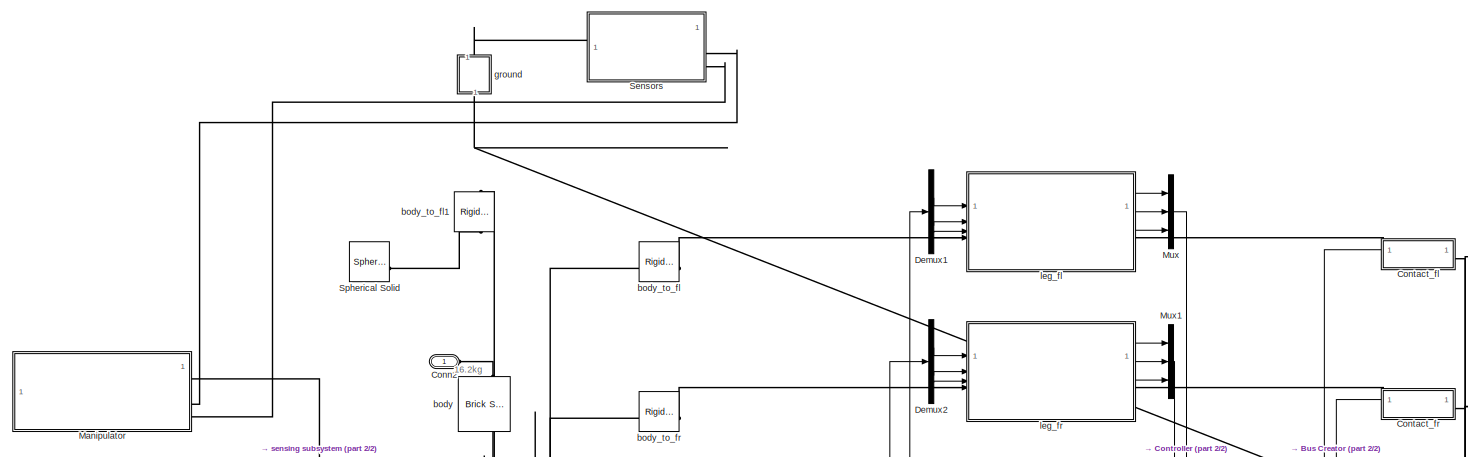
[diagram: root canvas - part 1/2, top left region]
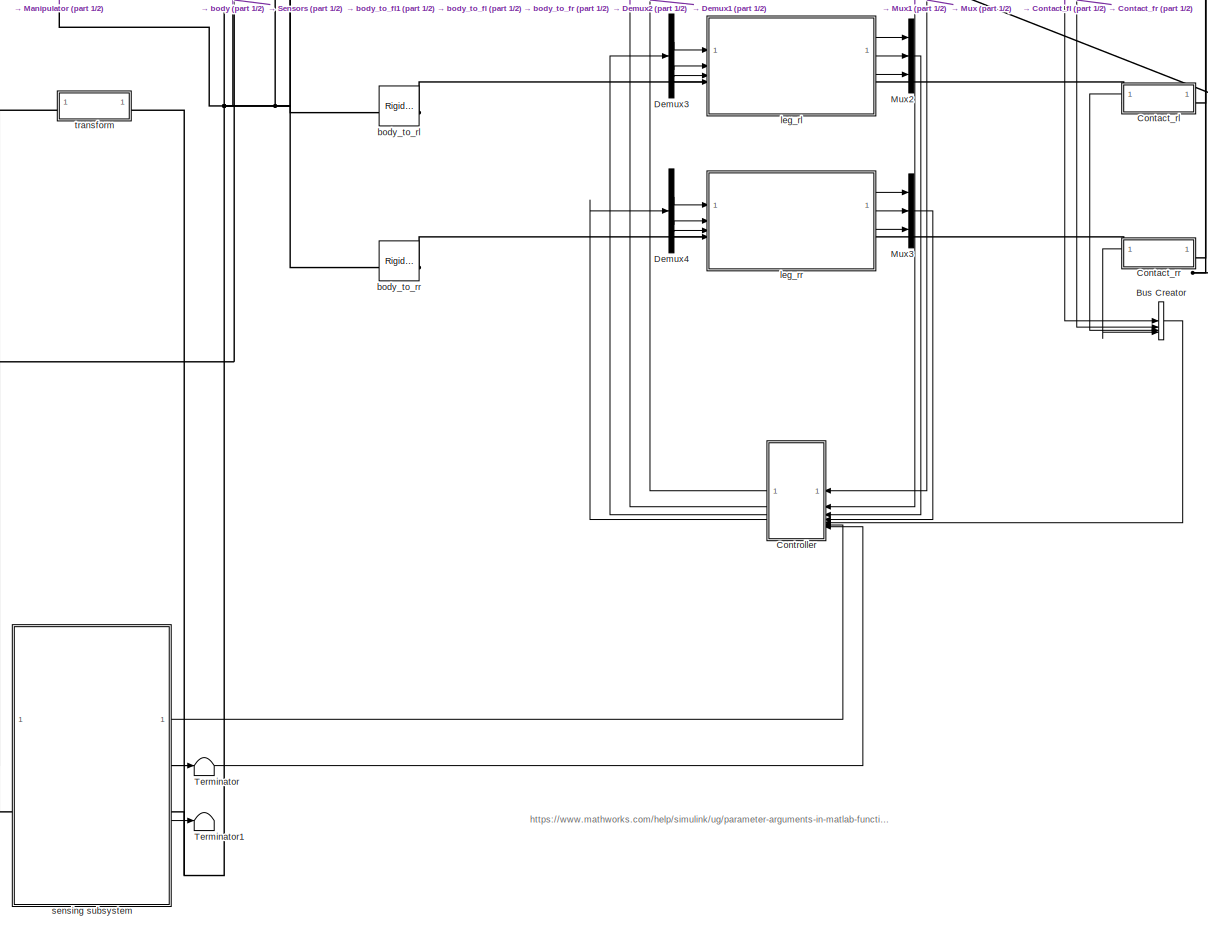
[diagram: root canvas - part 2/2, central region]
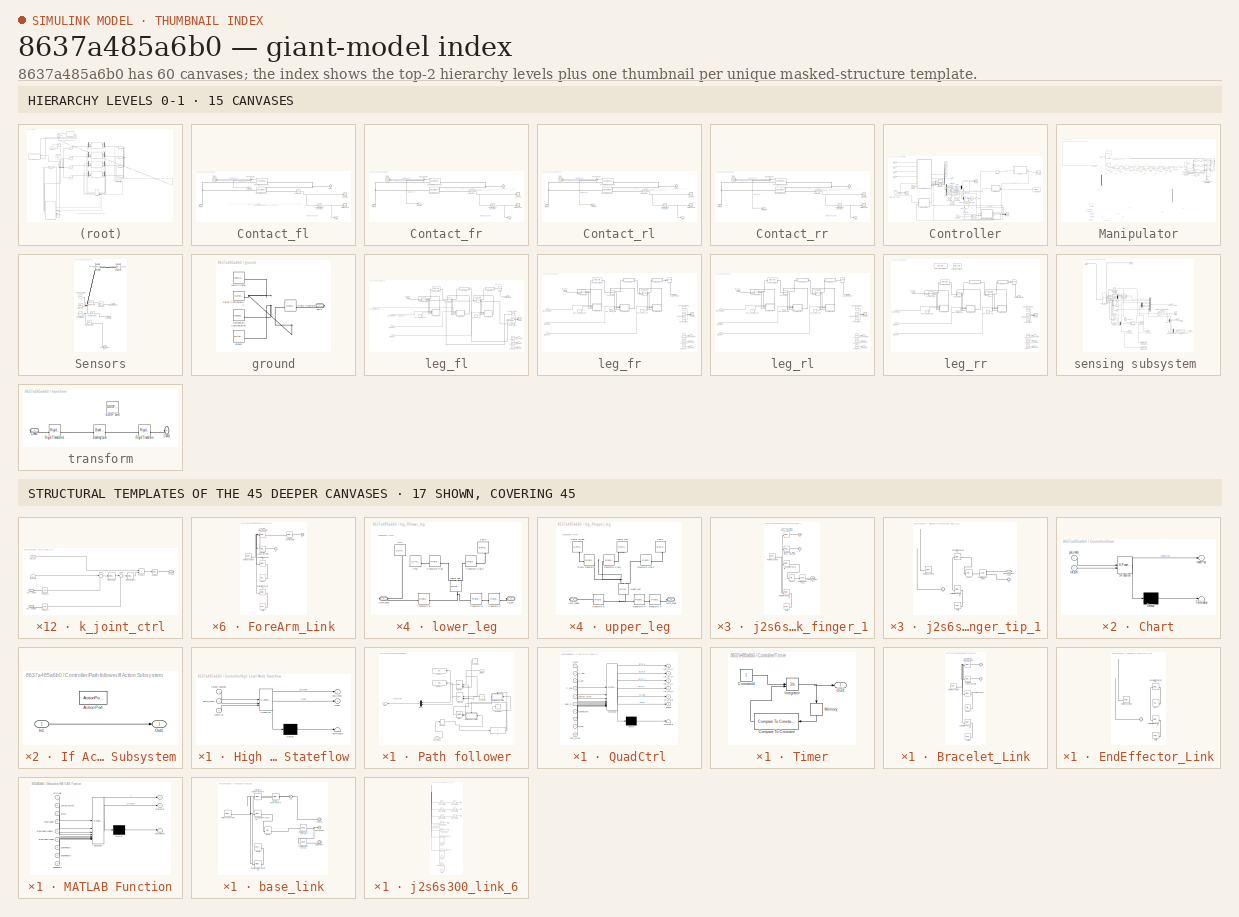
[diagram: thumbnail index - top-2 hierarchy levels (15 canvases) + 17 structural-template representatives of the remaining 45 canvases]
MODEL slx_8637a485a6b0
KIND model
CONFIG AbsTol = auto
CONFIG EnableMultiTasking = off
CONFIG FixedStep = auto
CONFIG InitFcn = ManipulatorSetup\ninit_quad_new_leg_raibert_strategy_v2
CONFIG MaxStep = auto
CONFIG MinStep = auto
CONFIG RelTol = 1e-3
CONFIG SampleTimeConstraint = Unconstrained
CONFIG SolverName = ode15s
CONFIG StartTime = 0.0
CONFIG StopTime = 400
BLOCK [BusCreator] Bus Creator
  DisplayOption = bar
  InheritFromInputs = on
  Inputs = 4
BLOCK [PMIOPort] Conn2
  Side = Left
BLOCK [SubSystem] Contact_fl
  NameLocation = top
BLOCK [BusSelector] Contact_fl/Bus Selector
  NameLocation = top
  OutputSignals = Normal Force,Frame Sep,Friction Force
BLOCK [Reference] Contact_fl/Compare To Constant  REF=simulink/Logic and Bit
Operations/Compare
To Constant
  SourceBlock = simulink/Logic and Bit\nOperations/Compare\nTo Constant
  SourceType = Compare To Constant
BLOCK [Reference] Contact_fl/PSConv4  REF=nesl_utility/PS-Simulink
Converter
  SourceBlock = nesl_utility/PS-Simulink\nConverter
  SourceType = PS-Simulink\nConverter
BLOCK [PMIOPort] Contact_fl/PlanB
  NameLocation = right
  Side = Left
BLOCK [PMIOPort] Contact_fl/SphF
  NameLocation = top
  Port = 2
  Side = Right
BLOCK [Reference] Contact_fl/Sphere to Plane Force1  REF=Contact_Forces_Lib/3D/Sphere to Plane Force
  NameLocation = top
  SourceBlock = Contact_Forces_Lib/3D/Sphere to Plane Force
  SourceType = Sphere to Plane Force
BLOCK [Scope] Contact_fl/State Scope
  Floating = off
  NumInputPorts = 1
  ScopeSpecificationString = Simulink.scopes.TimeScopeBlockCfg('CurrentConfiguration', extmgr.ConfigurationSet(extmgr.Configuration('Core','General UI',true),extmgr.Configuration('Core','Source UI',true),extmgr.Configuration('Sources','WiredSimulink',true,'DataLoggingVariableName','ScopeData2'),extmgr.Configuration('Visuals','Time Domain',true,'SerializedDisplays',{struct('MinYLimReal','-0.125','MaxYLimReal','1.125','YLabelRe...<+1738ch>
BLOCK [Terminator] Contact_fl/Terminator
BLOCK [Reference] Contact_fl/Transform Sensor  REF=sm_lib/Frames and
Transforms/Transform
Sensor
  SourceBlock = sm_lib/Frames and\nTransforms/Transform\nSensor
  SourceType = Transform\nSensor
BLOCK [Scope] Contact_fl/ZScope
  Floating = off
  NumInputPorts = 1
  ScopeSpecificationString = Simulink.scopes.TimeScopeBlockCfg('CurrentConfiguration', extmgr.ConfigurationSet(extmgr.Configuration('Core','General UI',true),extmgr.Configuration('Core','Source UI',true),extmgr.Configuration('Sources','WiredSimulink',true,'DataLoggingVariableName','ScopeData1'),extmgr.Configuration('Visuals','Time Domain',true,'SerializedDisplays',{struct('MinYLimReal','0.21142','MaxYLimReal','0.26619','YLabe...<+1738ch>
BLOCK [Scope] Contact_fl/force
  Floating = off
  NameLocation = top
  NumInputPorts = 2
  ScopeSpecificationString = Simulink.scopes.TimeScopeBlockCfg('CurrentConfiguration', extmgr.ConfigurationSet(extmgr.Configuration('Core','General UI',true),extmgr.Configuration('Core','Source UI',true),extmgr.Configuration('Sources','WiredSimulink',true),extmgr.Configuration('Visuals','Time Domain',true,'SerializedDisplays',{struct('MinYLimReal','-483.20806','MaxYLimReal','1131.7449','YLabelReal','','MinYLimMag',' 0.00000',...<+2099ch>
BLOCK [Outport] Contact_fl/state
  VectorParamsAs1DForOutWhenUnconnected = off
BLOCK [SubSystem] Contact_fr
  NameLocation = top
BLOCK [BusSelector] Contact_fr/Bus Selector
  NameLocation = top
  OutputSignals = Normal Force,Frame Sep,Friction Force
BLOCK [Reference] Contact_fr/Compare To Constant  REF=simulink/Logic and Bit
Operations/Compare
To Constant
  SourceBlock = simulink/Logic and Bit\nOperations/Compare\nTo Constant
  SourceType = Compare To Constant
BLOCK [Reference] Contact_fr/PSConv4  REF=nesl_utility/PS-Simulink
Converter
  SourceBlock = nesl_utility/PS-Simulink\nConverter
  SourceType = PS-Simulink\nConverter
BLOCK [PMIOPort] Contact_fr/PlanB
  NameLocation = right
  Side = Left
BLOCK [PMIOPort] Contact_fr/SphF
  NameLocation = top
  Port = 2
  Side = Right
BLOCK [Reference] Contact_fr/Sphere to Plane Force1  REF=Contact_Forces_Lib/3D/Sphere to Plane Force
  NameLocation = top
  SourceBlock = Contact_Forces_Lib/3D/Sphere to Plane Force
  SourceType = Sphere to Plane Force
BLOCK [Scope] Contact_fr/State Scope
  Floating = off
  NumInputPorts = 1
  ScopeSpecificationString = Simulink.scopes.TimeScopeBlockCfg('CurrentConfiguration', extmgr.ConfigurationSet(extmgr.Configuration('Core','General UI',true),extmgr.Configuration('Core','Source UI',true),extmgr.Configuration('Sources','WiredSimulink',true,'DataLoggingVariableName','ScopeData2'),extmgr.Configuration('Visuals','Time Domain',true,'SerializedDisplays',{struct('MinYLimReal','3.40363','MaxYLimReal','4.10196','YLabe...<+1745ch>
BLOCK [Terminator] Contact_fr/Terminator
BLOCK [Reference] Contact_fr/Transform Sensor  REF=sm_lib/Frames and
Transforms/Transform
Sensor
  SourceBlock = sm_lib/Frames and\nTransforms/Transform\nSensor
  SourceType = Transform\nSensor
BLOCK [Scope] Contact_fr/ZScope
  Floating = off
  NumInputPorts = 1
  ScopeSpecificationString = Simulink.scopes.TimeScopeBlockCfg('CurrentConfiguration', extmgr.ConfigurationSet(extmgr.Configuration('Core','General UI',true),extmgr.Configuration('Core','Source UI',true),extmgr.Configuration('Sources','WiredSimulink',true,'DataLoggingVariableName','ScopeData1'),extmgr.Configuration('Visuals','Time Domain',true,'SerializedDisplays',{struct('MinYLimReal','-0.07993','MaxYLimReal','0.50888','YLab...<+1755ch>
BLOCK [Scope] Contact_fr/force
  Floating = off
  NameLocation = top
  NumInputPorts = 2
  ScopeSpecificationString = Simulink.scopes.TimeScopeBlockCfg('CurrentConfiguration', extmgr.ConfigurationSet(extmgr.Configuration('Core','General UI',true),extmgr.Configuration('Core','Source UI',true),extmgr.Configuration('Sources','WiredSimulink',true),extmgr.Configuration('Visuals','Time Domain',true,'SerializedDisplays',{struct('MinYLimReal','-1765.00642','MaxYLimReal','8517.50545','YLabelReal','','MinYLimMag','  0.0000...<+1825ch>
BLOCK [Outport] Contact_fr/state
  VectorParamsAs1DForOutWhenUnconnected = off
BLOCK [SubSystem] Contact_rl
  NameLocation = top
BLOCK [BusSelector] Contact_rl/Bus Selector
  NameLocation = top
  OutputSignals = Normal Force,Frame Sep,Friction Force
BLOCK [Reference] Contact_rl/Compare To Constant  REF=simulink/Logic and Bit
Operations/Compare
To Constant
  SourceBlock = simulink/Logic and Bit\nOperations/Compare\nTo Constant
  SourceType = Compare To Constant
BLOCK [Reference] Contact_rl/PSConv4  REF=nesl_utility/PS-Simulink
Converter
  SourceBlock = nesl_utility/PS-Simulink\nConverter
  SourceType = PS-Simulink\nConverter
BLOCK [PMIOPort] Contact_rl/PlanB
  NameLocation = right
  Side = Left
BLOCK [PMIOPort] Contact_rl/SphF
  NameLocation = top
  Port = 2
  Side = Right
BLOCK [Reference] Contact_rl/Sphere to Plane Force1  REF=Contact_Forces_Lib/3D/Sphere to Plane Force
  NameLocation = top
  SourceBlock = Contact_Forces_Lib/3D/Sphere to Plane Force
  SourceType = Sphere to Plane Force
BLOCK [Scope] Contact_rl/State Scope
  Floating = off
  NumInputPorts = 1
  ScopeSpecificationString = Simulink.scopes.TimeScopeBlockCfg('CurrentConfiguration', extmgr.ConfigurationSet(extmgr.Configuration('Core','General UI',true),extmgr.Configuration('Core','Source UI',true),extmgr.Configuration('Sources','WiredSimulink',true,'DataLoggingVariableName','ScopeData2'),extmgr.Configuration('Visuals','Time Domain',true,'SerializedDisplays',{struct('MinYLimReal','-0.125','MaxYLimReal','1.125','YLabelRe...<+1739ch>
BLOCK [Terminator] Contact_rl/Terminator
BLOCK [Reference] Contact_rl/Transform Sensor  REF=sm_lib/Frames and
Transforms/Transform
Sensor
  SourceBlock = sm_lib/Frames and\nTransforms/Transform\nSensor
  SourceType = Transform\nSensor
BLOCK [Scope] Contact_rl/ZScope
  Floating = off
  NumInputPorts = 1
  ScopeSpecificationString = Simulink.scopes.TimeScopeBlockCfg('CurrentConfiguration', extmgr.ConfigurationSet(extmgr.Configuration('Core','General UI',true),extmgr.Configuration('Core','Source UI',true),extmgr.Configuration('Sources','WiredSimulink',true,'DataLoggingVariableName','ScopeData1'),extmgr.Configuration('Visuals','Time Domain',true,'SerializedDisplays',{struct('MinYLimReal','0.2216','MaxYLimReal','0.24665','YLabel...<+1762ch>
BLOCK [Scope] Contact_rl/force
  Floating = off
  NameLocation = top
  NumInputPorts = 2
  ScopeSpecificationString = Simulink.scopes.TimeScopeBlockCfg('CurrentConfiguration', extmgr.ConfigurationSet(extmgr.Configuration('Core','General UI',true),extmgr.Configuration('Core','Source UI',true),extmgr.Configuration('Sources','WiredSimulink',true),extmgr.Configuration('Visuals','Time Domain',true,'SerializedDisplays',{struct('MinYLimReal','-385.95585','MaxYLimReal','1796.51268','YLabelReal','','MinYLimMag',' 0.00000'...<+1838ch>
BLOCK [Outport] Contact_rl/state
  VectorParamsAs1DForOutWhenUnconnected = off
BLOCK [SubSystem] Contact_rr
  NameLocation = top
BLOCK [BusSelector] Contact_rr/Bus Selector
  NameLocation = top
  OutputSignals = Normal Force,Frame Sep,Friction Force
BLOCK [Reference] Contact_rr/Compare To Constant  REF=simulink/Logic and Bit
Operations/Compare
To Constant
  SourceBlock = simulink/Logic and Bit\nOperations/Compare\nTo Constant
  SourceType = Compare To Constant
BLOCK [Reference] Contact_rr/PSConv4  REF=nesl_utility/PS-Simulink
Converter
  SourceBlock = nesl_utility/PS-Simulink\nConverter
  SourceType = PS-Simulink\nConverter
BLOCK [PMIOPort] Contact_rr/PlanB
  NameLocation = right
  Side = Left
BLOCK [PMIOPort] Contact_rr/SphF
  NameLocation = top
  Port = 2
  Side = Right
BLOCK [Reference] Contact_rr/Sphere to Plane Force1  REF=Contact_Forces_Lib/3D/Sphere to Plane Force
  NameLocation = top
  SourceBlock = Contact_Forces_Lib/3D/Sphere to Plane Force
  SourceType = Sphere to Plane Force
BLOCK [Scope] Contact_rr/State Scope
  Floating = off
  NumInputPorts = 1
  ScopeSpecificationString = Simulink.scopes.TimeScopeBlockCfg('CurrentConfiguration', extmgr.ConfigurationSet(extmgr.Configuration('Core','General UI',true),extmgr.Configuration('Core','Source UI',true),extmgr.Configuration('Sources','WiredSimulink',true,'DataLoggingVariableName','ScopeData2'),extmgr.Configuration('Visuals','Time Domain',true,'SerializedDisplays',{struct('MinYLimReal','-0.125','MaxYLimReal','1.125','YLabelRe...<+1739ch>
BLOCK [Terminator] Contact_rr/Terminator
BLOCK [Reference] Contact_rr/Transform Sensor  REF=sm_lib/Frames and
Transforms/Transform
Sensor
  SourceBlock = sm_lib/Frames and\nTransforms/Transform\nSensor
  SourceType = Transform\nSensor
BLOCK [Scope] Contact_rr/ZScope
  Floating = off
  NumInputPorts = 1
  ScopeSpecificationString = Simulink.scopes.TimeScopeBlockCfg('CurrentConfiguration', extmgr.ConfigurationSet(extmgr.Configuration('Core','General UI',true),extmgr.Configuration('Core','Source UI',true),extmgr.Configuration('Sources','WiredSimulink',true,'DataLoggingVariableName','ScopeData1'),extmgr.Configuration('Visuals','Time Domain',true,'SerializedDisplays',{struct('MinYLimReal','-0.07993','MaxYLimReal','0.50888','YLab...<+1439ch>
BLOCK [Scope] Contact_rr/force
  Floating = off
  NameLocation = top
  NumInputPorts = 2
  ScopeSpecificationString = Simulink.scopes.TimeScopeBlockCfg('CurrentConfiguration', extmgr.ConfigurationSet(extmgr.Configuration('Core','General UI',true),extmgr.Configuration('Core','Source UI',true),extmgr.Configuration('Sources','WiredSimulink',true),extmgr.Configuration('Visuals','Time Domain',true,'SerializedDisplays',{struct('MinYLimReal','-1765.00642','MaxYLimReal','8517.50545','YLabelReal','','MinYLimMag','  0.0000...<+1825ch>
BLOCK [Outport] Contact_rr/state
  VectorParamsAs1DForOutWhenUnconnected = off
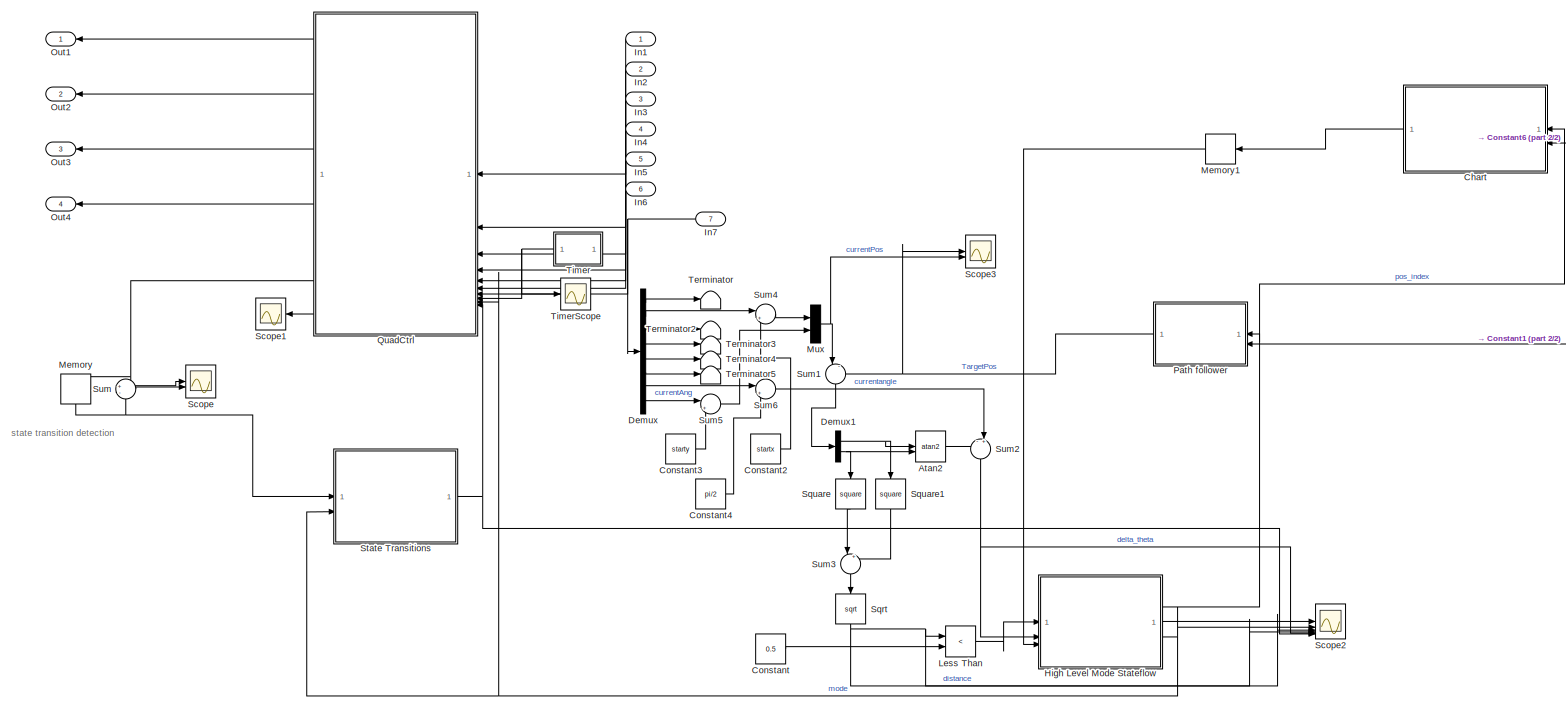
[diagram: Controller - part 1/2, most of the canvas]
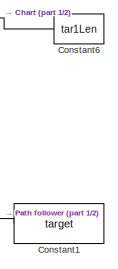
[diagram: Controller - part 2/2, middle right region]
BLOCK [SubSystem] Controller
  NameLocation = top
BLOCK [Trigonometry] Controller/Atan2
  Operator = atan2
BLOCK [SubSystem] Controller/Chart
  ErrorFcn = Stateflow.Translate.translate
  PermitHierarchicalResolution = ExplicitOnly
  SFBlockType = Chart
  TreatAsAtomicUnit = on
BLOCK [Demux] Controller/Chart/ Demux 
  Outputs = 1
BLOCK [S-Function] Controller/Chart/ SFunction 
  EnableBusSupport = on
  FunctionName = sf_sfun
  PortCounts = [2 2]
  SFcnIsStateOwnerBlock = off
  SFunctionDeploymentMode = off
  Tag = Stateflow S-Function 4
BLOCK [Terminator] Controller/Chart/ Terminator 
BLOCK [Inport] Controller/Chart/pos_index
BLOCK [Outport] Controller/Chart/resetPos
BLOCK [Inport] Controller/Chart/tar1Len
  Port = 2
BLOCK [Constant] Controller/Constant
  Value = 0.5
BLOCK [Constant] Controller/Constant1
  Value = target
BLOCK [Constant] Controller/Constant2
  Value = startx
BLOCK [Constant] Controller/Constant3
  Value = starty
BLOCK [Constant] Controller/Constant4
  Value = pi/2
BLOCK [Constant] Controller/Constant6
  Value = tar1Len
BLOCK [Demux] Controller/Demux
  Outputs = 8
BLOCK [Demux] Controller/Demux1
  Outputs = 2
BLOCK [SubSystem] Controller/High Level Mode Stateflow
  ErrorFcn = Stateflow.Translate.translate
  PermitHierarchicalResolution = ExplicitOnly
  PortSchema = {"entries":[{"content":{"sides":[{"content":{"connectorIds":["In2","In3","In1"]},"type":"ConnectorPlacement.EquallySpacedRectSide","uuid":"54635eaa-af22-4c07-946c-8b3764ca4079"},{"content":{"connectorIds":["Out1","Out2"],"side":"RIGHT"},"type":"ConnectorPlacement.EquallySpacedRectSide","uuid":"b8ca9e50-c21e-481d-aebe-d3447dd5b6ec"},{"content":{"connectorIds":[],"side":"TOP"},"type":"ConnectorPlace...<+259ch>
  SFBlockType = Chart
  TreatAsAtomicUnit = on
BLOCK [Demux] Controller/High Level Mode Stateflow/ Demux 
  Outputs = 1
BLOCK [S-Function] Controller/High Level Mode Stateflow/ SFunction 
  EnableBusSupport = on
  FunctionName = sf_sfun
  PortCounts = [3 3]
  SFcnIsStateOwnerBlock = off
  SFunctionDeploymentMode = off
  Tag = Stateflow S-Function 3
BLOCK [Terminator] Controller/High Level Mode Stateflow/ Terminator 
BLOCK [Inport] Controller/High Level Mode Stateflow/delta_theta
  Port = 2
BLOCK [Outport] Controller/High Level Mode Stateflow/mode
  Port = 2
BLOCK [Outport] Controller/High Level Mode Stateflow/pos_index
BLOCK [Inport] Controller/High Level Mode Stateflow/resetPos
  Port = 3
BLOCK [Inport] Controller/High Level Mode Stateflow/target_reached
BLOCK [Inport] Controller/In1
  NameLocation = top
BLOCK [Inport] Controller/In2
  NameLocation = top
  Port = 2
BLOCK [Inport] Controller/In3
  NameLocation = top
  Port = 3
BLOCK [Inport] Controller/In4
  NameLocation = top
  Port = 4
BLOCK [Inport] Controller/In5
  NameLocation = top
  Port = 5
BLOCK [Inport] Controller/In6
  NameLocation = top
  Port = 6
BLOCK [Inport] Controller/In7
  NameLocation = top
  Port = 7
BLOCK [RelationalOperator] Controller/Less Than
  InputSameDT = off
  Operator = <
  OutDataTypeStr = boolean
  RndMeth = Simplest
BLOCK [Memory] Controller/Memory
  NameLocation = left
BLOCK [Memory] Controller/Memory1
BLOCK [Mux] Controller/Mux
  DisplayOption = bar
  Inputs = 2
BLOCK [Outport] Controller/Out1
  NameLocation = top
  VectorParamsAs1DForOutWhenUnconnected = off
BLOCK [Outport] Controller/Out2
  NameLocation = top
  Port = 2
  VectorParamsAs1DForOutWhenUnconnected = off
BLOCK [Outport] Controller/Out3
  NameLocation = top
  Port = 3
  VectorParamsAs1DForOutWhenUnconnected = off
BLOCK [Outport] Controller/Out4
  NameLocation = top
  Port = 4
  VectorParamsAs1DForOutWhenUnconnected = off
BLOCK [SubSystem] Controller/Path follower
  TreatAsAtomicUnit = on
BLOCK [Constant] Controller/Path follower/Constant2
BLOCK [Constant] Controller/Path follower/Constant3
  Value = 2
BLOCK [Constant] Controller/Path follower/Constant4
BLOCK [Display] Controller/Path follower/Display
  Decimation = 1
BLOCK [Display] Controller/Path follower/Display1
  Decimation = 1
BLOCK [If] Controller/Path follower/If
  IfExpression = u1 <= 0
BLOCK [SubSystem] Controller/Path follower/If Action Subsystem
  TreatAsAtomicUnit = on
BLOCK [ActionPort] Controller/Path follower/If Action Subsystem/Action Port
  ActionPortLabel = if(u1 <= 0)
BLOCK [Inport] Controller/Path follower/If Action Subsystem/In1
BLOCK [Outport] Controller/Path follower/If Action Subsystem/Out1
BLOCK [SubSystem] Controller/Path follower/If Action Subsystem1
  TreatAsAtomicUnit = on
BLOCK [ActionPort] Controller/Path follower/If Action Subsystem1/Action Port
  ActionPortLabel = else
BLOCK [Inport] Controller/Path follower/If Action Subsystem1/In1
BLOCK [Outport] Controller/Path follower/If Action Subsystem1/Out1
BLOCK [Memory] Controller/Path follower/Memory1
BLOCK [Merge] Controller/Path follower/Merge
BLOCK [Mux] Controller/Path follower/Mux1
  DisplayOption = bar
  Inputs = 2
BLOCK [Outport] Controller/Path follower/Out1
BLOCK [Selector] Controller/Path follower/Selector
  IndexOptions = Index vector (port),Index vector (port)
  Indices = [1 3],1
  InputPortWidth = 1
  NumberOfDimensions = 2
  OutputSizes = 1,1
BLOCK [Selector] Controller/Path follower/Selector1
  IndexOptions = Index vector (port),Index vector (port)
  Indices = [1 3],1
  InputPortWidth = 1
  NumberOfDimensions = 2
  OutputSizes = 1,1
BLOCK [Inport] Controller/Path follower/pos_index
BLOCK [Inport] Controller/Path follower/targets
  Port = 2
BLOCK [SubSystem] Controller/QuadCtrl
  ErrorFcn = Stateflow.Translate.translate
  NameLocation = top
  PermitHierarchicalResolution = ExplicitOnly
  SFBlockType = MATLAB Function
  SystemSampleTime = 0.0025
  TreatAsAtomicUnit = on
BLOCK [Demux] Controller/QuadCtrl/ Demux 
  Outputs = 1
BLOCK [S-Function] Controller/QuadCtrl/ SFunction 
  EnableBusSupport = on
  FunctionName = sf_sfun
  Parameters = body,planner
  PortCounts = [10 7]
  SFcnIsStateOwnerBlock = off
  SFunctionDeploymentMode = off
  Tag = Stateflow S-Function 2
BLOCK [Terminator] Controller/QuadCtrl/ Terminator 
BLOCK [Inport] Controller/QuadCtrl/body_R
  Port = 6
BLOCK [Inport] Controller/QuadCtrl/contact_state
  Port = 5
BLOCK [Outport] Controller/QuadCtrl/ctrl_state
  Port = 5
  VectorParamsAs1DForOutWhenUnconnected = off
BLOCK [Outport] Controller/QuadCtrl/debug
  Port = 6
  VectorParamsAs1DForOutWhenUnconnected = off
BLOCK [Inport] Controller/QuadCtrl/fl_ang
BLOCK [Inport] Controller/QuadCtrl/fr_ang
  Port = 2
BLOCK [Inport] Controller/QuadCtrl/mode
  Port = 9
BLOCK [Inport] Controller/QuadCtrl/next_state
  Port = 10
BLOCK [Inport] Controller/QuadCtrl/rl_ang
  Port = 3
BLOCK [Inport] Controller/QuadCtrl/rr_ang
  Port = 4
BLOCK [Inport] Controller/QuadCtrl/sensing_info
  Port = 7
BLOCK [Inport] Controller/QuadCtrl/t
  Port = 8
BLOCK [Outport] Controller/QuadCtrl/tgt_ctrl_fl
  VectorParamsAs1DForOutWhenUnconnected = off
BLOCK [Outport] Controller/QuadCtrl/tgt_ctrl_fr
  Port = 2
  VectorParamsAs1DForOutWhenUnconnected = off
BLOCK [Outport] Controller/QuadCtrl/tgt_ctrl_rl
  Port = 3
  VectorParamsAs1DForOutWhenUnconnected = off
BLOCK [Outport] Controller/QuadCtrl/tgt_ctrl_rr
  Port = 4
  VectorParamsAs1DForOutWhenUnconnected = off
BLOCK [Scope] Controller/Scope
  Floating = off
  NumInputPorts = 2
  ScopeSpecificationString = Simulink.scopes.TimeScopeBlockCfg('CurrentConfiguration', extmgr.ConfigurationSet(extmgr.Configuration('Core','General UI',true),extmgr.Configuration('Core','Source UI',true),extmgr.Configuration('Sources','WiredSimulink',true,'DataLoggingVariableName','ScopeData1'),extmgr.Configuration('Visuals','Time Domain',true,'SerializedDisplays',{struct('MinYLimReal','-7.625','MaxYLimReal','8.625','YLabelRe...<+1401ch>
BLOCK [Scope] Controller/Scope1
  Floating = off
  NameLocation = top
  NumInputPorts = 1
  ScopeSpecificationString = Simulink.scopes.TimeScopeBlockCfg('CurrentConfiguration', extmgr.ConfigurationSet(extmgr.Configuration('Core','General UI',true),extmgr.Configuration('Core','Source UI',true),extmgr.Configuration('Sources','WiredSimulink',true,'DataLoggingVariableName','ScopeData5'),extmgr.Configuration('Visuals','Time Domain',true,'SerializedDisplays',{struct('MinYLimReal','-37.5','MaxYLimReal','337.5','YLabelRea...<+1465ch>
BLOCK [Scope] Controller/Scope2
  Floating = off
  NumInputPorts = 6
  ScopeSpecificationString = Simulink.scopes.TimeScopeBlockCfg('CurrentConfiguration', extmgr.ConfigurationSet(extmgr.Configuration('Core','General UI',true),extmgr.Configuration('Core','Source UI',true),extmgr.Configuration('Sources','WiredSimulink',true,'DataLoggingVariableName','ScopeData1'),extmgr.Configuration('Visuals','Time Domain',true,'SerializedDisplays',{struct('MinYLimReal','-4.68883','MaxYLimReal','9.40987','YLab...<+1668ch>
BLOCK [Scope] Controller/Scope3
  Floating = off
  NumInputPorts = 2
  ScopeSpecificationString = Simulink.scopes.TimeScopeBlockCfg('CurrentConfiguration', extmgr.ConfigurationSet(extmgr.Configuration('Core','General UI',true),extmgr.Configuration('Core','Source UI',true),extmgr.Configuration('Sources','WiredSimulink',true,'DataLoggingVariableName','ScopeData1'),extmgr.Configuration('Visuals','Time Domain',true,'SerializedDisplays',{struct('MinYLimReal','1.00000','MaxYLimReal','3.00000','YLabe...<+1465ch>
BLOCK [Sqrt] Controller/Sqrt
  NameLocation = left
BLOCK [Math] Controller/Square
  NameLocation = left
  Operator = square
BLOCK [Math] Controller/Square1
  NameLocation = left
  Operator = square
BLOCK [SubSystem] Controller/State Transitions
  ErrorFcn = Stateflow.Translate.translate
  PermitHierarchicalResolution = ExplicitOnly
  SFBlockType = Chart
  TreatAsAtomicUnit = on
BLOCK [Demux] Controller/State Transitions/ Demux 
  Outputs = 1
BLOCK [S-Function] Controller/State Transitions/ SFunction 
  EnableBusSupport = on
  FunctionName = sf_sfun
  PortCounts = [2 2]
  SFcnIsStateOwnerBlock = off
  SFunctionDeploymentMode = off
  Tag = Stateflow S-Function 1
BLOCK [Terminator] Controller/State Transitions/ Terminator 
BLOCK [Inport] Controller/State Transitions/ctrl_state
BLOCK [Inport] Controller/State Transitions/mode
  Port = 2
BLOCK [Outport] Controller/State Transitions/next_state
BLOCK [Sum] Controller/Sum
  Inputs = +-
BLOCK [Sum] Controller/Sum1
  Inputs = |-+
  NameLocation = left
BLOCK [Sum] Controller/Sum2
  Inputs = -+|
  NameLocation = left
BLOCK [Sum] Controller/Sum3
  Inputs = |++
  NameLocation = left
BLOCK [Sum] Controller/Sum4
  Inputs = |++
BLOCK [Sum] Controller/Sum5
  Inputs = |++
BLOCK [Sum] Controller/Sum6
  Inputs = |++
BLOCK [Terminator] Controller/Terminator
BLOCK [Terminator] Controller/Terminator2
BLOCK [Terminator] Controller/Terminator3
BLOCK [Terminator] Controller/Terminator4
BLOCK [Terminator] Controller/Terminator5
BLOCK [SubSystem] Controller/Timer
  NameLocation = top
BLOCK [Reference] Controller/Timer/Compare To Constant  REF=simulink/Logic and Bit
Operations/Compare
To Constant
  NameLocation = top
  SourceBlock = simulink/Logic and Bit\nOperations/Compare\nTo Constant
  SourceType = Compare To Constant
BLOCK [Constant] Controller/Timer/Constant4
BLOCK [Integrator] Controller/Timer/Integrator
  ExternalReset = level
BLOCK [Memory] Controller/Timer/Memory
  NameLocation = left
BLOCK [Outport] Controller/Timer/Out1
  VectorParamsAs1DForOutWhenUnconnected = off
BLOCK [Scope] Controller/TimerScope
  Floating = off
  NumInputPorts = 1
  ScopeSpecificationString = Simulink.scopes.TimeScopeBlockCfg('CurrentConfiguration', extmgr.ConfigurationSet(extmgr.Configuration('Core','General UI',true),extmgr.Configuration('Core','Source UI',true),extmgr.Configuration('Sources','WiredSimulink',true,'DataLoggingVariableName','ScopeData1'),extmgr.Configuration('Visuals','Time Domain',true,'SerializedDisplays',{struct('MinYLimReal','-0.25011','MaxYLimReal','2.25096','YLab...<+1443ch>
BLOCK [Demux] Demux1
BLOCK [Demux] Demux2
BLOCK [Demux] Demux3
BLOCK [Demux] Demux4
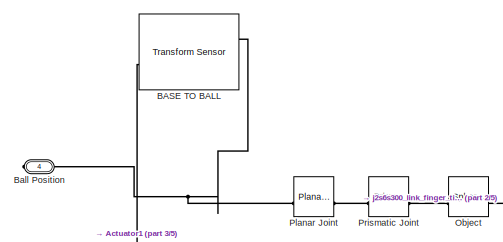
[diagram: Manipulator - part 1/5, top left region]
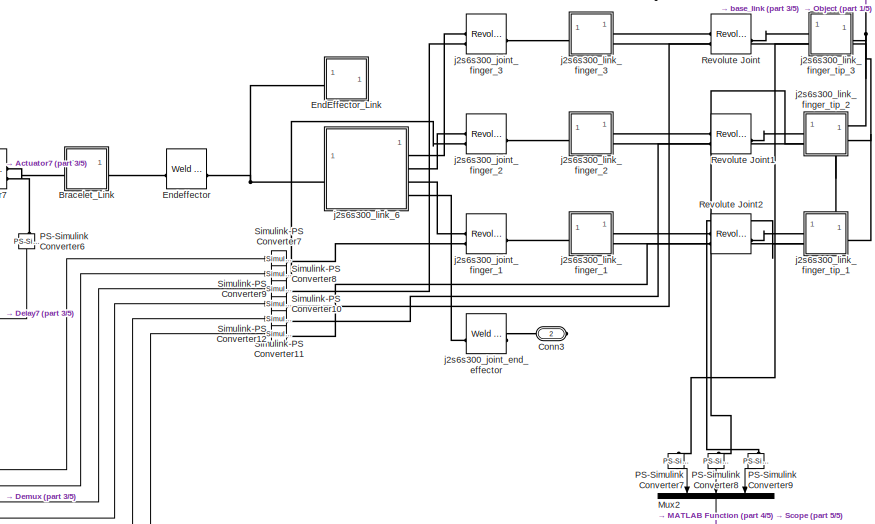
[diagram: Manipulator - part 2/5, middle right region]
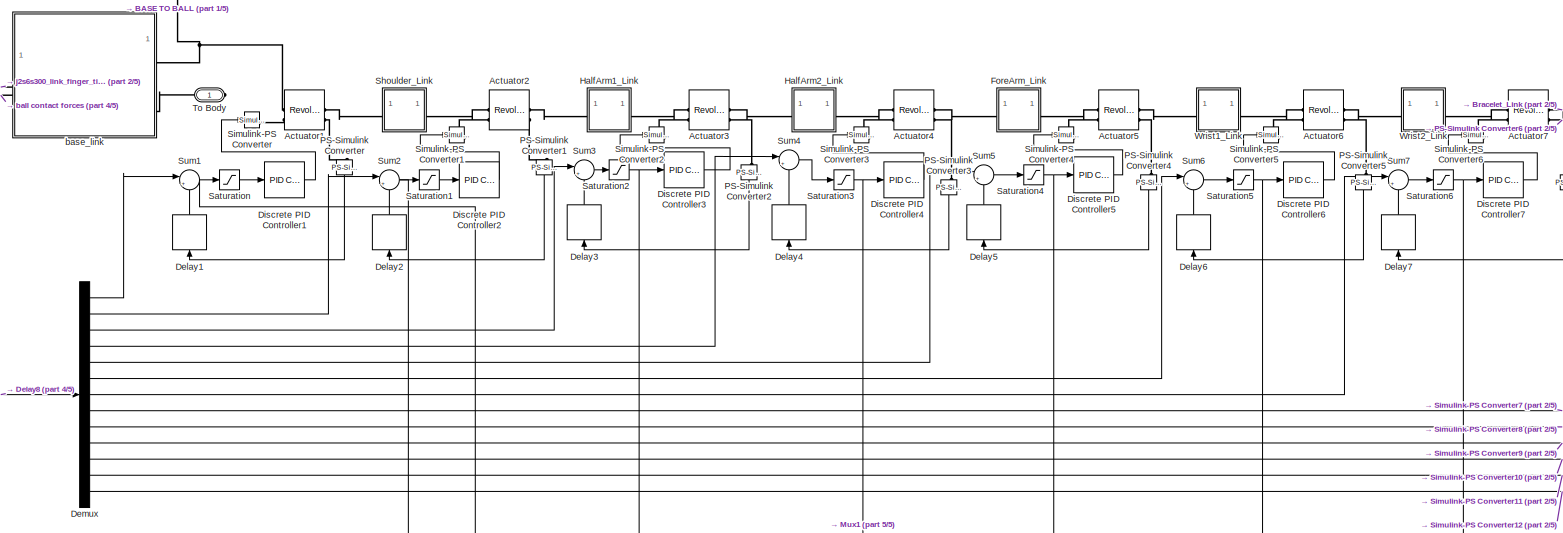
[diagram: Manipulator - part 3/5, central region]
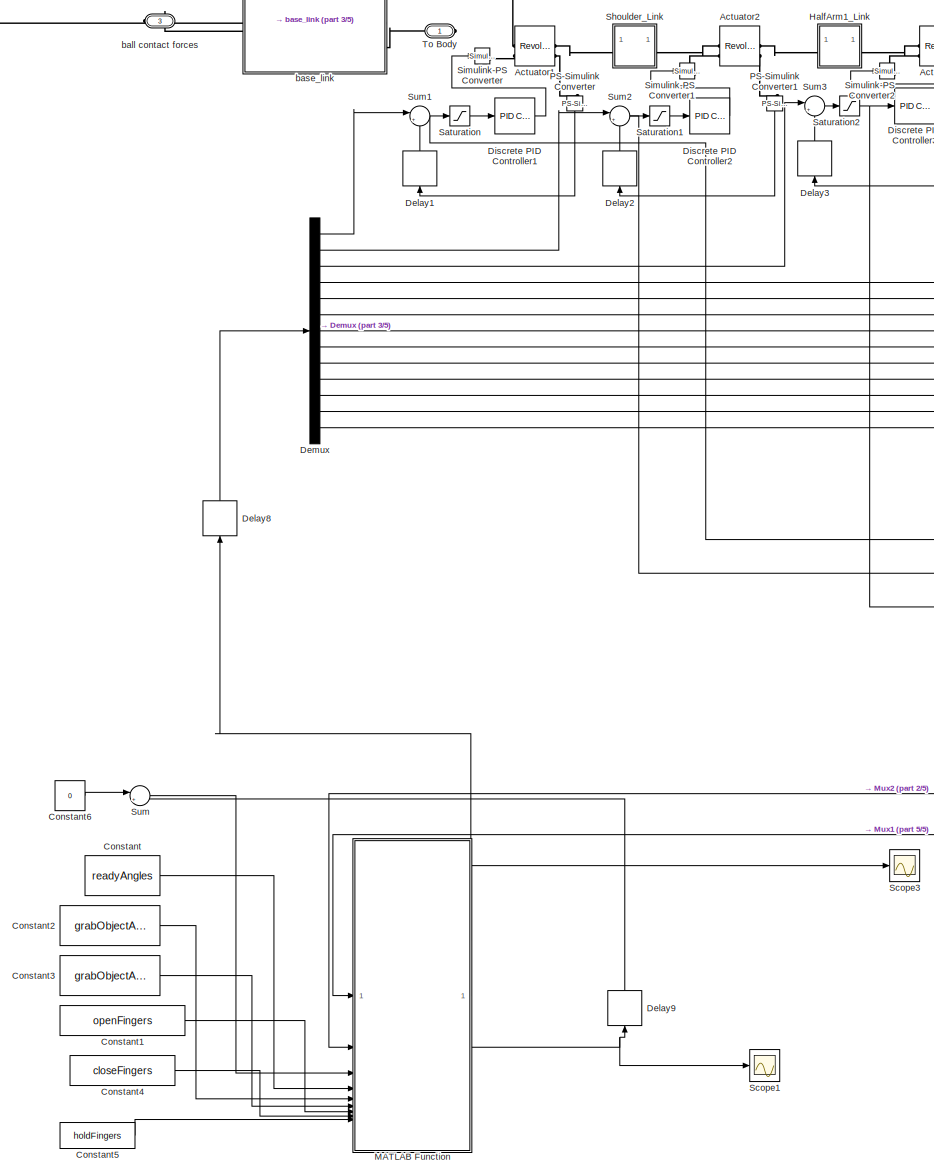
[diagram: Manipulator - part 4/5, middle left region]
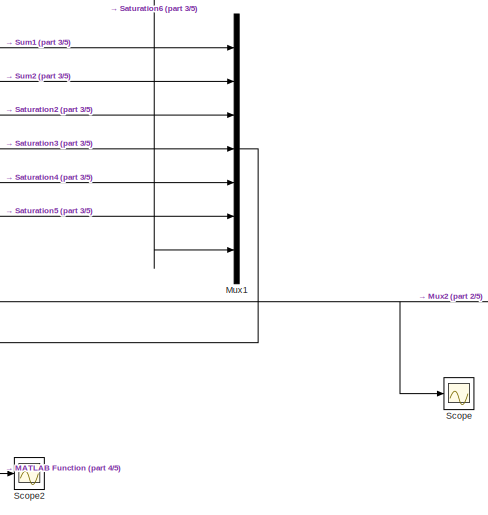
[diagram: Manipulator - part 5/5, bottom right region]
BLOCK [SubSystem] Manipulator
BLOCK [Reference] Manipulator/Actuator1  REF=sm_lib/Joints/Revolute Joint
  SourceBlock = sm_lib/Joints/Revolute Joint
  SourceType = Revolute Joint
BLOCK [Reference] Manipulator/Actuator2  REF=sm_lib/Joints/Revolute Joint
  SourceBlock = sm_lib/Joints/Revolute Joint
  SourceType = Revolute Joint
BLOCK [Reference] Manipulator/Actuator3  REF=sm_lib/Joints/Revolute Joint
  SourceBlock = sm_lib/Joints/Revolute Joint
  SourceType = Revolute Joint
BLOCK [Reference] Manipulator/Actuator4  REF=sm_lib/Joints/Revolute Joint
  SourceBlock = sm_lib/Joints/Revolute Joint
  SourceType = Revolute Joint
BLOCK [Reference] Manipulator/Actuator5  REF=sm_lib/Joints/Revolute Joint
  SourceBlock = sm_lib/Joints/Revolute Joint
  SourceType = Revolute Joint
BLOCK [Reference] Manipulator/Actuator6  REF=sm_lib/Joints/Revolute Joint
  SourceBlock = sm_lib/Joints/Revolute Joint
  SourceType = Revolute Joint
BLOCK [Reference] Manipulator/Actuator7  REF=sm_lib/Joints/Revolute Joint
  SourceBlock = sm_lib/Joints/Revolute Joint
  SourceType = Revolute Joint
BLOCK [Reference] Manipulator/BASE TO BALL  REF=sm_lib/Frames and
Transforms/Transform
Sensor
  SourceBlock = sm_lib/Frames and\nTransforms/Transform\nSensor
  SourceType = Transform\nSensor
BLOCK [PMIOPort] Manipulator/Ball Position
  Port = 4
  Side = Right
BLOCK [SubSystem] Manipulator/Bracelet_Link
BLOCK [Reference] Manipulator/Bracelet_Link/Actuator7_AxisInvTransform  REF=sm_lib/Frames and
Transforms/Rigid
Transform
  SourceBlock = sm_lib/Frames and\nTransforms/Rigid\nTransform
  SourceType = Rigid\nTransform
BLOCK [Reference] Manipulator/Bracelet_Link/Endeffector_OriginTransform  REF=sm_lib/Frames and
Transforms/Rigid
Transform
  SourceBlock = sm_lib/Frames and\nTransforms/Rigid\nTransform
  SourceType = Rigid\nTransform
BLOCK [PMIOPort] Manipulator/Bracelet_Link/F
  Side = Left
BLOCK [PMIOPort] Manipulator/Bracelet_Link/F1
  Port = 2
  Side = Right
BLOCK [Reference] Manipulator/Bracelet_Link/Inertia  REF=sm_lib/Body Elements/Inertia
  SourceBlock = sm_lib/Body Elements/Inertia
  SourceType = Inertia
BLOCK [Reference] Manipulator/Bracelet_Link/InertiaOriginTransform  REF=sm_lib/Frames and
Transforms/Rigid
Transform
  SourceBlock = sm_lib/Frames and\nTransforms/Rigid\nTransform
  SourceType = Rigid\nTransform
BLOCK [Reference] Manipulator/Bracelet_Link/ReferenceFrame  REF=sm_lib/Frames and
Transforms/Reference
Frame
  SourceBlock = sm_lib/Frames and\nTransforms/Reference\nFrame
  SourceType = Reference\nFrame
BLOCK [Reference] Manipulator/Bracelet_Link/Visual  REF=sm_lib/Body Elements/File Solid
  SourceBlock = sm_lib/Body Elements/File Solid
  SourceType = File Solid
BLOCK [Reference] Manipulator/Bracelet_Link/VisualOriginTransform  REF=sm_lib/Frames and
Transforms/Rigid
Transform
  SourceBlock = sm_lib/Frames and\nTransforms/Rigid\nTransform
  SourceType = Rigid\nTransform
BLOCK [PMIOPort] Manipulator/Conn3
  Port = 2
  Side = Right
BLOCK [Constant] Manipulator/Constant
  SampleTime = -1
  Value = readyAngles
BLOCK [Constant] Manipulator/Constant1
  SampleTime = -1
  Value = openFingers
BLOCK [Constant] Manipulator/Constant2
  SampleTime = -1
  Value = grabObjectAngles2
BLOCK [Constant] Manipulator/Constant3
  SampleTime = -1
  Value = grabObjectAngles
BLOCK [Constant] Manipulator/Constant4
  Value = closeFingers
BLOCK [Constant] Manipulator/Constant5
  Value = holdFingers
BLOCK [Constant] Manipulator/Constant6
  Value = 0
BLOCK [Delay] Manipulator/Delay1
  DelayLength = 1
  InitialCondition = 0
  InputPortMap = u0
  NameLocation = right
BLOCK [Delay] Manipulator/Delay2
  DelayLength = 1
  InitialCondition = 0
  InputPortMap = u0
  NameLocation = right
BLOCK [Delay] Manipulator/Delay3
  DelayLength = 1
  InitialCondition = 0
  InputPortMap = u0
  NameLocation = right
BLOCK [Delay] Manipulator/Delay4
  DelayLength = 1
  InitialCondition = 0
  InputPortMap = u0
  NameLocation = right
BLOCK [Delay] Manipulator/Delay5
  DelayLength = 1
  InitialCondition = 0
  InputPortMap = u0
  NameLocation = right
BLOCK [Delay] Manipulator/Delay6
  DelayLength = 1
  InitialCondition = 0
  InputPortMap = u0
  NameLocation = right
BLOCK [Delay] Manipulator/Delay7
  DelayLength = 1
  InitialCondition = 0
  InputPortMap = u0
  NameLocation = right
BLOCK [Delay] Manipulator/Delay8
  DelayLength = 1
  InitialCondition = 0
  InputPortMap = u0
  NameLocation = right
BLOCK [Delay] Manipulator/Delay9
  DelayLength = 1
  InitialCondition = 0
  InputPortMap = u0
  NameLocation = right
BLOCK [Demux] Manipulator/Demux
  Outputs = 13
BLOCK [Reference] Manipulator/Discrete PID Controller1  REF=slpidlib/PID Controller
  SourceBlock = slpidlib/PID Controller
  SourceType = PID 1dof
BLOCK [Reference] Manipulator/Discrete PID Controller2  REF=slpidlib/PID Controller
  SourceBlock = slpidlib/PID Controller
  SourceType = PID 1dof
BLOCK [Reference] Manipulator/Discrete PID Controller3  REF=slpidlib/PID Controller
  SourceBlock = slpidlib/PID Controller
  SourceType = PID 1dof
BLOCK [Reference] Manipulator/Discrete PID Controller4  REF=slpidlib/PID Controller
  SourceBlock = slpidlib/PID Controller
  SourceType = PID 1dof
BLOCK [Reference] Manipulator/Discrete PID Controller5  REF=slpidlib/PID Controller
  SourceBlock = slpidlib/PID Controller
  SourceType = PID 1dof
BLOCK [Reference] Manipulator/Discrete PID Controller6  REF=slpidlib/PID Controller
  SourceBlock = slpidlib/PID Controller
  SourceType = PID 1dof
BLOCK [Reference] Manipulator/Discrete PID Controller7  REF=slpidlib/PID Controller
  SourceBlock = slpidlib/PID Controller
  SourceType = PID 1dof
BLOCK [SubSystem] Manipulator/EndEffector_Link
BLOCK [PMIOPort] Manipulator/EndEffector_Link/F
  Side = Left
BLOCK [Reference] Manipulator/EndEffector_Link/Inertia  REF=sm_lib/Body Elements/Inertia
  SourceBlock = sm_lib/Body Elements/Inertia
  SourceType = Inertia
BLOCK [Reference] Manipulator/EndEffector_Link/InertiaOriginTransform  REF=sm_lib/Frames and
Transforms/Rigid
Transform
  SourceBlock = sm_lib/Frames and\nTransforms/Rigid\nTransform
  SourceType = Rigid\nTransform
BLOCK [Reference] Manipulator/EndEffector_Link/ReferenceFrame  REF=sm_lib/Frames and
Transforms/Reference
Frame
  SourceBlock = sm_lib/Frames and\nTransforms/Reference\nFrame
  SourceType = Reference\nFrame
BLOCK [Reference] Manipulator/EndEffector_Link/Visual  REF=sm_lib/Body Elements/File Solid
  SourceBlock = sm_lib/Body Elements/File Solid
  SourceType = File Solid
BLOCK [Reference] Manipulator/EndEffector_Link/VisualOriginTransform  REF=sm_lib/Frames and
Transforms/Rigid
Transform
  SourceBlock = sm_lib/Frames and\nTransforms/Rigid\nTransform
  SourceType = Rigid\nTransform
BLOCK [Reference] Manipulator/Endeffector  REF=sm_lib/Joints/Weld Joint
  SourceBlock = sm_lib/Joints/Weld Joint
  SourceType = Weld Joint
BLOCK [SubSystem] Manipulator/ForeArm_Link
BLOCK [Reference] Manipulator/ForeArm_Link/Actuator4_AxisInvTransform  REF=sm_lib/Frames and
Transforms/Rigid
Transform
  SourceBlock = sm_lib/Frames and\nTransforms/Rigid\nTransform
  SourceType = Rigid\nTransform
BLOCK [Reference] Manipulator/ForeArm_Link/Actuator5_AxisTransform  REF=sm_lib/Frames and
Transforms/Rigid
Transform
  SourceBlock = sm_lib/Frames and\nTransforms/Rigid\nTransform
  SourceType = Rigid\nTransform
BLOCK [Reference] Manipulator/ForeArm_Link/Actuator5_OriginTransform  REF=sm_lib/Frames and
Transforms/Rigid
Transform
  SourceBlock = sm_lib/Frames and\nTransforms/Rigid\nTransform
  SourceType = Rigid\nTransform
BLOCK [PMIOPort] Manipulator/ForeArm_Link/F
  Side = Left
BLOCK [PMIOPort] Manipulator/ForeArm_Link/F1
  Port = 2
  Side = Right
BLOCK [Reference] Manipulator/ForeArm_Link/Inertia  REF=sm_lib/Body Elements/Inertia
  SourceBlock = sm_lib/Body Elements/Inertia
  SourceType = Inertia
BLOCK [Reference] Manipulator/ForeArm_Link/InertiaOriginTransform  REF=sm_lib/Frames and
Transforms/Rigid
Transform
  SourceBlock = sm_lib/Frames and\nTransforms/Rigid\nTransform
  SourceType = Rigid\nTransform
BLOCK [Reference] Manipulator/ForeArm_Link/ReferenceFrame  REF=sm_lib/Frames and
Transforms/Reference
Frame
  SourceBlock = sm_lib/Frames and\nTransforms/Reference\nFrame
  SourceType = Reference\nFrame
BLOCK [Reference] Manipulator/ForeArm_Link/Visual  REF=sm_lib/Body Elements/File Solid
  SourceBlock = sm_lib/Body Elements/File Solid
  SourceType = File Solid
BLOCK [Reference] Manipulator/ForeArm_Link/VisualOriginTransform  REF=sm_lib/Frames and
Transforms/Rigid
Transform
  SourceBlock = sm_lib/Frames and\nTransforms/Rigid\nTransform
  SourceType = Rigid\nTransform
BLOCK [SubSystem] Manipulator/HalfArm1_Link
BLOCK [Reference] Manipulator/HalfArm1_Link/Actuator2_AxisInvTransform  REF=sm_lib/Frames and
Transforms/Rigid
Transform
  SourceBlock = sm_lib/Frames and\nTransforms/Rigid\nTransform
  SourceType = Rigid\nTransform
BLOCK [Reference] Manipulator/HalfArm1_Link/Actuator3_AxisTransform  REF=sm_lib/Frames and
Transforms/Rigid
Transform
  SourceBlock = sm_lib/Frames and\nTransforms/Rigid\nTransform
  SourceType = Rigid\nTransform
BLOCK [Reference] Manipulator/HalfArm1_Link/Actuator3_OriginTransform  REF=sm_lib/Frames and
Transforms/Rigid
Transform
  SourceBlock = sm_lib/Frames and\nTransforms/Rigid\nTransform
  SourceType = Rigid\nTransform
BLOCK [PMIOPort] Manipulator/HalfArm1_Link/F
  Side = Left
BLOCK [PMIOPort] Manipulator/HalfArm1_Link/F1
  Port = 2
  Side = Right
BLOCK [Reference] Manipulator/HalfArm1_Link/Inertia  REF=sm_lib/Body Elements/Inertia
  SourceBlock = sm_lib/Body Elements/Inertia
  SourceType = Inertia
BLOCK [Reference] Manipulator/HalfArm1_Link/InertiaOriginTransform  REF=sm_lib/Frames and
Transforms/Rigid
Transform
  SourceBlock = sm_lib/Frames and\nTransforms/Rigid\nTransform
  SourceType = Rigid\nTransform
BLOCK [Reference] Manipulator/HalfArm1_Link/ReferenceFrame  REF=sm_lib/Frames and
Transforms/Reference
Frame
  SourceBlock = sm_lib/Frames and\nTransforms/Reference\nFrame
  SourceType = Reference\nFrame
BLOCK [Reference] Manipulator/HalfArm1_Link/Visual  REF=sm_lib/Body Elements/File Solid
  SourceBlock = sm_lib/Body Elements/File Solid
  SourceType = File Solid
BLOCK [Reference] Manipulator/HalfArm1_Link/VisualOriginTransform  REF=sm_lib/Frames and
Transforms/Rigid
Transform
  SourceBlock = sm_lib/Frames and\nTransforms/Rigid\nTransform
  SourceType = Rigid\nTransform
BLOCK [SubSystem] Manipulator/HalfArm2_Link
BLOCK [Reference] Manipulator/HalfArm2_Link/Actuator3_AxisInvTransform  REF=sm_lib/Frames and
Transforms/Rigid
Transform
  SourceBlock = sm_lib/Frames and\nTransforms/Rigid\nTransform
  SourceType = Rigid\nTransform
BLOCK [Reference] Manipulator/HalfArm2_Link/Actuator4_AxisTransform  REF=sm_lib/Frames and
Transforms/Rigid
Transform
  SourceBlock = sm_lib/Frames and\nTransforms/Rigid\nTransform
  SourceType = Rigid\nTransform
BLOCK [Reference] Manipulator/HalfArm2_Link/Actuator4_OriginTransform  REF=sm_lib/Frames and
Transforms/Rigid
Transform
  SourceBlock = sm_lib/Frames and\nTransforms/Rigid\nTransform
  SourceType = Rigid\nTransform
BLOCK [PMIOPort] Manipulator/HalfArm2_Link/F
  Side = Left
BLOCK [PMIOPort] Manipulator/HalfArm2_Link/F1
  Port = 2
  Side = Right
BLOCK [Reference] Manipulator/HalfArm2_Link/Inertia  REF=sm_lib/Body Elements/Inertia
  SourceBlock = sm_lib/Body Elements/Inertia
  SourceType = Inertia
BLOCK [Reference] Manipulator/HalfArm2_Link/InertiaOriginTransform  REF=sm_lib/Frames and
Transforms/Rigid
Transform
  SourceBlock = sm_lib/Frames and\nTransforms/Rigid\nTransform
  SourceType = Rigid\nTransform
BLOCK [Reference] Manipulator/HalfArm2_Link/ReferenceFrame  REF=sm_lib/Frames and
Transforms/Reference
Frame
  SourceBlock = sm_lib/Frames and\nTransforms/Reference\nFrame
  SourceType = Reference\nFrame
BLOCK [Reference] Manipulator/HalfArm2_Link/Visual  REF=sm_lib/Body Elements/File Solid
  SourceBlock = sm_lib/Body Elements/File Solid
  SourceType = File Solid
BLOCK [Reference] Manipulator/HalfArm2_Link/VisualOriginTransform  REF=sm_lib/Frames and
Transforms/Rigid
Transform
  SourceBlock = sm_lib/Frames and\nTransforms/Rigid\nTransform
  SourceType = Rigid\nTransform
BLOCK [SubSystem] Manipulator/MATLAB Function
  ErrorFcn = Stateflow.Translate.translate
  PermitHierarchicalResolution = ExplicitOnly
  SFBlockType = MATLAB Function
  TreatAsAtomicUnit = on
BLOCK [Demux] Manipulator/MATLAB Function/ Demux 
  Outputs = 1
BLOCK [S-Function] Manipulator/MATLAB Function/ SFunction 
  EnableBusSupport = on
  FunctionName = sf_sfun
  PortCounts = [9 3]
  SFcnIsStateOwnerBlock = off
  SFunctionDeploymentMode = off
  Tag = Stateflow S-Function 5
BLOCK [Terminator] Manipulator/MATLAB Function/ Terminator 
BLOCK [Inport] Manipulator/MATLAB Function/closeFingers
  Port = 8
BLOCK [Inport] Manipulator/MATLAB Function/contactForces
  Port = 2
BLOCK [Inport] Manipulator/MATLAB Function/errorVals
BLOCK [Inport] Manipulator/MATLAB Function/grabObjectAngles
  Port = 6
BLOCK [Inport] Manipulator/MATLAB Function/grabObjectAngles2
  Port = 5
BLOCK [Inport] Manipulator/MATLAB Function/holdFingers
  Port = 9
BLOCK [Inport] Manipulator/MATLAB Function/openFingers
  Port = 7
BLOCK [Inport] Manipulator/MATLAB Function/readyAngles
  Port = 4
BLOCK [Inport] Manipulator/MATLAB Function/state
  Port = 3
BLOCK [Outport] Manipulator/MATLAB Function/stateOut
  Port = 2
BLOCK [Outport] Manipulator/MATLAB Function/y
BLOCK [Mux] Manipulator/Mux1
  DisplayOption = bar
  Inputs = 7
BLOCK [Mux] Manipulator/Mux2
  DisplayOption = bar
  Inputs = 3
BLOCK [Reference] Manipulator/Object  REF=sm_lib/Body Elements/Spherical Solid
  SourceBlock = sm_lib/Body Elements/Spherical Solid
  SourceType = Spherical Solid
BLOCK [Reference] Manipulator/PS-Simulink Converter  REF=nesl_utility/PS-Simulink
Converter
  NameLocation = left
  SourceBlock = nesl_utility/PS-Simulink\nConverter
  SourceType = PS-Simulink\nConverter
BLOCK [Reference] Manipulator/PS-Simulink Converter1  REF=nesl_utility/PS-Simulink
Converter
  NameLocation = left
  SourceBlock = nesl_utility/PS-Simulink\nConverter
  SourceType = PS-Simulink\nConverter
BLOCK [Reference] Manipulator/PS-Simulink Converter2  REF=nesl_utility/PS-Simulink
Converter
  NameLocation = left
  SourceBlock = nesl_utility/PS-Simulink\nConverter
  SourceType = PS-Simulink\nConverter
BLOCK [Reference] Manipulator/PS-Simulink Converter3  REF=nesl_utility/PS-Simulink
Converter
  NameLocation = left
  SourceBlock = nesl_utility/PS-Simulink\nConverter
  SourceType = PS-Simulink\nConverter
BLOCK [Reference] Manipulator/PS-Simulink Converter4  REF=nesl_utility/PS-Simulink
Converter
  NameLocation = left
  SourceBlock = nesl_utility/PS-Simulink\nConverter
  SourceType = PS-Simulink\nConverter
BLOCK [Reference] Manipulator/PS-Simulink Converter5  REF=nesl_utility/PS-Simulink
Converter
  NameLocation = left
  SourceBlock = nesl_utility/PS-Simulink\nConverter
  SourceType = PS-Simulink\nConverter
BLOCK [Reference] Manipulator/PS-Simulink Converter6  REF=nesl_utility/PS-Simulink
Converter
  NameLocation = left
  SourceBlock = nesl_utility/PS-Simulink\nConverter
  SourceType = PS-Simulink\nConverter
BLOCK [Reference] Manipulator/PS-Simulink Converter7  REF=nesl_utility/PS-Simulink
Converter
  NameLocation = left
  SourceBlock = nesl_utility/PS-Simulink\nConverter
  SourceType = PS-Simulink\nConverter
BLOCK [Reference] Manipulator/PS-Simulink Converter8  REF=nesl_utility/PS-Simulink
Converter
  NameLocation = right
  SourceBlock = nesl_utility/PS-Simulink\nConverter
  SourceType = PS-Simulink\nConverter
BLOCK [Reference] Manipulator/PS-Simulink Converter9  REF=nesl_utility/PS-Simulink
Converter
  NameLocation = left
  SourceBlock = nesl_utility/PS-Simulink\nConverter
  SourceType = PS-Simulink\nConverter
BLOCK [Reference] Manipulator/Planar Joint  REF=sm_lib/Joints/Planar Joint
  SourceBlock = sm_lib/Joints/Planar Joint
  SourceType = Planar Joint
BLOCK [Reference] Manipulator/Prismatic Joint  REF=sm_lib/Joints/Prismatic
Joint
  SourceBlock = sm_lib/Joints/Prismatic\nJoint
  SourceType = Prismatic\nJoint
BLOCK [Reference] Manipulator/Revolute Joint  REF=sm_lib/Joints/Revolute Joint
  SourceBlock = sm_lib/Joints/Revolute Joint
  SourceType = Revolute Joint
BLOCK [Reference] Manipulator/Revolute Joint1  REF=sm_lib/Joints/Revolute Joint
  SourceBlock = sm_lib/Joints/Revolute Joint
  SourceType = Revolute Joint
BLOCK [Reference] Manipulator/Revolute Joint2  REF=sm_lib/Joints/Revolute Joint
  SourceBlock = sm_lib/Joints/Revolute Joint
  SourceType = Revolute Joint
BLOCK [Saturate] Manipulator/Saturation
BLOCK [Saturate] Manipulator/Saturation1
BLOCK [Saturate] Manipulator/Saturation2
BLOCK [Saturate] Manipulator/Saturation3
BLOCK [Saturate] Manipulator/Saturation4
BLOCK [Saturate] Manipulator/Saturation5
BLOCK [Saturate] Manipulator/Saturation6
BLOCK [Scope] Manipulator/Scope
  Floating = off
  NumInputPorts = 1
  ScopeSpecificationString = Simulink.scopes.TimeScopeBlockCfg('CurrentConfiguration', extmgr.ConfigurationSet(extmgr.Configuration('Core','General UI',true),extmgr.Configuration('Core','Source UI',true),extmgr.Configuration('Sources','WiredSimulink',true),extmgr.Configuration('Visuals','Time Domain',true,'SerializedDisplays',{struct('MinYLimReal','-31.15334','MaxYLimReal','280.38008','YLabelReal','','MinYLimMag','0.00000','M...<+1446ch>
BLOCK [Scope] Manipulator/Scope1
  Floating = off
  NumInputPorts = 1
  ScopeSpecificationString = Simulink.scopes.TimeScopeBlockCfg('CurrentConfiguration', extmgr.ConfigurationSet(extmgr.Configuration('Core','General UI',true),extmgr.Configuration('Core','Source UI',true),extmgr.Configuration('Sources','WiredSimulink',true,'DataLoggingVariableName','ScopeData1'),extmgr.Configuration('Visuals','Time Domain',true,'SerializedDisplays',{struct('MinYLimReal','0.93562','MaxYLimReal','3.06075','YLabe...<+1433ch>
BLOCK [Scope] Manipulator/Scope2
  Floating = off
  NumInputPorts = 1
  ScopeSpecificationString = Simulink.scopes.TimeScopeBlockCfg('CurrentConfiguration', extmgr.ConfigurationSet(extmgr.Configuration('Core','General UI',true),extmgr.Configuration('Core','Source UI',true),extmgr.Configuration('Sources','WiredSimulink',true,'DataLoggingVariableName','ScopeData2'),extmgr.Configuration('Visuals','Time Domain',true,'SerializedDisplays',{struct('MinYLimReal','-0.36305','MaxYLimReal','0.34703','YLab...<+1490ch>
BLOCK [Scope] Manipulator/Scope3
  Floating = off
  NumInputPorts = 1
  ScopeSpecificationString = Simulink.scopes.TimeScopeBlockCfg('CurrentConfiguration', extmgr.ConfigurationSet(extmgr.Configuration('Core','General UI',true),extmgr.Configuration('Core','Source UI',true),extmgr.Configuration('Sources','WiredSimulink',true,'DataLoggingVariableName','ScopeData3'),extmgr.Configuration('Visuals','Time Domain',true),extmgr.Configuration('Tools','Plot Navigation',true),extmgr.Configuration('Tools',...<+40ch>
BLOCK [SubSystem] Manipulator/Shoulder_Link
BLOCK [Reference] Manipulator/Shoulder_Link/Actuator1_AxisInvTransform  REF=sm_lib/Frames and
Transforms/Rigid
Transform
  SourceBlock = sm_lib/Frames and\nTransforms/Rigid\nTransform
  SourceType = Rigid\nTransform
BLOCK [Reference] Manipulator/Shoulder_Link/Actuator2_AxisTransform  REF=sm_lib/Frames and
Transforms/Rigid
Transform
  SourceBlock = sm_lib/Frames and\nTransforms/Rigid\nTransform
  SourceType = Rigid\nTransform
BLOCK [Reference] Manipulator/Shoulder_Link/Actuator2_OriginTransform  REF=sm_lib/Frames and
Transforms/Rigid
Transform
  SourceBlock = sm_lib/Frames and\nTransforms/Rigid\nTransform
  SourceType = Rigid\nTransform
BLOCK [PMIOPort] Manipulator/Shoulder_Link/F
  Side = Left
BLOCK [PMIOPort] Manipulator/Shoulder_Link/F1
  Port = 2
  Side = Right
BLOCK [Reference] Manipulator/Shoulder_Link/Inertia  REF=sm_lib/Body Elements/Inertia
  SourceBlock = sm_lib/Body Elements/Inertia
  SourceType = Inertia
BLOCK [Reference] Manipulator/Shoulder_Link/InertiaOriginTransform  REF=sm_lib/Frames and
Transforms/Rigid
Transform
  SourceBlock = sm_lib/Frames and\nTransforms/Rigid\nTransform
  SourceType = Rigid\nTransform
BLOCK [Reference] Manipulator/Shoulder_Link/ReferenceFrame  REF=sm_lib/Frames and
Transforms/Reference
Frame
  SourceBlock = sm_lib/Frames and\nTransforms/Reference\nFrame
  SourceType = Reference\nFrame
BLOCK [Reference] Manipulator/Shoulder_Link/Visual  REF=sm_lib/Body Elements/File Solid
  SourceBlock = sm_lib/Body Elements/File Solid
  SourceType = File Solid
BLOCK [Reference] Manipulator/Shoulder_Link/VisualOriginTransform  REF=sm_lib/Frames and
Transforms/Rigid
Transform
  SourceBlock = sm_lib/Frames and\nTransforms/Rigid\nTransform
  SourceType = Rigid\nTransform
BLOCK [Reference] Manipulator/Simulink-PS Converter  REF=nesl_utility/Simulink-PS
Converter
  SourceBlock = nesl_utility/Simulink-PS\nConverter
  SourceType = Simulink-PS\nConverter
BLOCK [Reference] Manipulator/Simulink-PS Converter1  REF=nesl_utility/Simulink-PS
Converter
  SourceBlock = nesl_utility/Simulink-PS\nConverter
  SourceType = Simulink-PS\nConverter
BLOCK [Reference] Manipulator/Simulink-PS Converter10  REF=nesl_utility/Simulink-PS
Converter
  SourceBlock = nesl_utility/Simulink-PS\nConverter
  SourceType = Simulink-PS\nConverter
BLOCK [Reference] Manipulator/Simulink-PS Converter11  REF=nesl_utility/Simulink-PS
Converter
  SourceBlock = nesl_utility/Simulink-PS\nConverter
  SourceType = Simulink-PS\nConverter
BLOCK [Reference] Manipulator/Simulink-PS Converter12  REF=nesl_utility/Simulink-PS
Converter
  SourceBlock = nesl_utility/Simulink-PS\nConverter
  SourceType = Simulink-PS\nConverter
BLOCK [Reference] Manipulator/Simulink-PS Converter2  REF=nesl_utility/Simulink-PS
Converter
  SourceBlock = nesl_utility/Simulink-PS\nConverter
  SourceType = Simulink-PS\nConverter
BLOCK [Reference] Manipulator/Simulink-PS Converter3  REF=nesl_utility/Simulink-PS
Converter
  SourceBlock = nesl_utility/Simulink-PS\nConverter
  SourceType = Simulink-PS\nConverter
BLOCK [Reference] Manipulator/Simulink-PS Converter4  REF=nesl_utility/Simulink-PS
Converter
  SourceBlock = nesl_utility/Simulink-PS\nConverter
  SourceType = Simulink-PS\nConverter
BLOCK [Reference] Manipulator/Simulink-PS Converter5  REF=nesl_utility/Simulink-PS
Converter
  SourceBlock = nesl_utility/Simulink-PS\nConverter
  SourceType = Simulink-PS\nConverter
BLOCK [Reference] Manipulator/Simulink-PS Converter6  REF=nesl_utility/Simulink-PS
Converter
  SourceBlock = nesl_utility/Simulink-PS\nConverter
  SourceType = Simulink-PS\nConverter
BLOCK [Reference] Manipulator/Simulink-PS Converter7  REF=nesl_utility/Simulink-PS
Converter
  SourceBlock = nesl_utility/Simulink-PS\nConverter
  SourceType = Simulink-PS\nConverter
BLOCK [Reference] Manipulator/Simulink-PS Converter8  REF=nesl_utility/Simulink-PS
Converter
  SourceBlock = nesl_utility/Simulink-PS\nConverter
  SourceType = Simulink-PS\nConverter
BLOCK [Reference] Manipulator/Simulink-PS Converter9  REF=nesl_utility/Simulink-PS
Converter
  SourceBlock = nesl_utility/Simulink-PS\nConverter
  SourceType = Simulink-PS\nConverter
BLOCK [Sum] Manipulator/Sum
  Inputs = |++
BLOCK [Sum] Manipulator/Sum1
  Inputs = |+-
BLOCK [Sum] Manipulator/Sum2
  Inputs = |+-
BLOCK [Sum] Manipulator/Sum3
  Inputs = |+-
BLOCK [Sum] Manipulator/Sum4
  Inputs = |+-
BLOCK [Sum] Manipulator/Sum5
  Inputs = |+-
BLOCK [Sum] Manipulator/Sum6
  Inputs = |+-
BLOCK [Sum] Manipulator/Sum7
  Inputs = |+-
BLOCK [PMIOPort] Manipulator/To Body
  Side = Right
BLOCK [SubSystem] Manipulator/Wrist1_Link
BLOCK [Reference] Manipulator/Wrist1_Link/Actuator5_AxisInvTransform  REF=sm_lib/Frames and
Transforms/Rigid
Transform
  SourceBlock = sm_lib/Frames and\nTransforms/Rigid\nTransform
  SourceType = Rigid\nTransform
BLOCK [Reference] Manipulator/Wrist1_Link/Actuator6_AxisTransform  REF=sm_lib/Frames and
Transforms/Rigid
Transform
  SourceBlock = sm_lib/Frames and\nTransforms/Rigid\nTransform
  SourceType = Rigid\nTransform
BLOCK [Reference] Manipulator/Wrist1_Link/Actuator6_OriginTransform  REF=sm_lib/Frames and
Transforms/Rigid
Transform
  SourceBlock = sm_lib/Frames and\nTransforms/Rigid\nTransform
  SourceType = Rigid\nTransform
BLOCK [PMIOPort] Manipulator/Wrist1_Link/F
  Side = Left
BLOCK [PMIOPort] Manipulator/Wrist1_Link/F1
  Port = 2
  Side = Right
BLOCK [Reference] Manipulator/Wrist1_Link/Inertia  REF=sm_lib/Body Elements/Inertia
  SourceBlock = sm_lib/Body Elements/Inertia
  SourceType = Inertia
BLOCK [Reference] Manipulator/Wrist1_Link/InertiaOriginTransform  REF=sm_lib/Frames and
Transforms/Rigid
Transform
  SourceBlock = sm_lib/Frames and\nTransforms/Rigid\nTransform
  SourceType = Rigid\nTransform
BLOCK [Reference] Manipulator/Wrist1_Link/ReferenceFrame  REF=sm_lib/Frames and
Transforms/Reference
Frame
  SourceBlock = sm_lib/Frames and\nTransforms/Reference\nFrame
  SourceType = Reference\nFrame
BLOCK [Reference] Manipulator/Wrist1_Link/Visual  REF=sm_lib/Body Elements/File Solid
  SourceBlock = sm_lib/Body Elements/File Solid
  SourceType = File Solid
BLOCK [Reference] Manipulator/Wrist1_Link/VisualOriginTransform  REF=sm_lib/Frames and
Transforms/Rigid
Transform
  SourceBlock = sm_lib/Frames and\nTransforms/Rigid\nTransform
  SourceType = Rigid\nTransform
BLOCK [SubSystem] Manipulator/Wrist2_Link
BLOCK [Reference] Manipulator/Wrist2_Link/Actuator6_AxisInvTransform  REF=sm_lib/Frames and
Transforms/Rigid
Transform
  SourceBlock = sm_lib/Frames and\nTransforms/Rigid\nTransform
  SourceType = Rigid\nTransform
BLOCK [Reference] Manipulator/Wrist2_Link/Actuator7_AxisTransform  REF=sm_lib/Frames and
Transforms/Rigid
Transform
  SourceBlock = sm_lib/Frames and\nTransforms/Rigid\nTransform
  SourceType = Rigid\nTransform
BLOCK [Reference] Manipulator/Wrist2_Link/Actuator7_OriginTransform  REF=sm_lib/Frames and
Transforms/Rigid
Transform
  SourceBlock = sm_lib/Frames and\nTransforms/Rigid\nTransform
  SourceType = Rigid\nTransform
BLOCK [PMIOPort] Manipulator/Wrist2_Link/F
  Side = Left
BLOCK [PMIOPort] Manipulator/Wrist2_Link/F1
  Port = 2
  Side = Right
BLOCK [Reference] Manipulator/Wrist2_Link/Inertia  REF=sm_lib/Body Elements/Inertia
  SourceBlock = sm_lib/Body Elements/Inertia
  SourceType = Inertia
BLOCK [Reference] Manipulator/Wrist2_Link/InertiaOriginTransform  REF=sm_lib/Frames and
Transforms/Rigid
Transform
  SourceBlock = sm_lib/Frames and\nTransforms/Rigid\nTransform
  SourceType = Rigid\nTransform
BLOCK [Reference] Manipulator/Wrist2_Link/ReferenceFrame  REF=sm_lib/Frames and
Transforms/Reference
Frame
  SourceBlock = sm_lib/Frames and\nTransforms/Reference\nFrame
  SourceType = Reference\nFrame
BLOCK [Reference] Manipulator/Wrist2_Link/Visual  REF=sm_lib/Body Elements/File Solid
  SourceBlock = sm_lib/Body Elements/File Solid
  SourceType = File Solid
BLOCK [Reference] Manipulator/Wrist2_Link/VisualOriginTransform  REF=sm_lib/Frames and
Transforms/Rigid
Transform
  SourceBlock = sm_lib/Frames and\nTransforms/Rigid\nTransform
  SourceType = Rigid\nTransform
BLOCK [PMIOPort] Manipulator/ball contact forces
  Port = 3
  Side = Right
BLOCK [SubSystem] Manipulator/base_link
BLOCK [Reference] Manipulator/base_link/Actuator1_AxisTransform  REF=sm_lib/Frames and
Transforms/Rigid
Transform
  SourceBlock = sm_lib/Frames and\nTransforms/Rigid\nTransform
  SourceType = Rigid\nTransform
BLOCK [Reference] Manipulator/base_link/Actuator1_OriginTransform  REF=sm_lib/Frames and
Transforms/Rigid
Transform
  SourceBlock = sm_lib/Frames and\nTransforms/Rigid\nTransform
  SourceType = Rigid\nTransform
BLOCK [PMIOPort] Manipulator/base_link/Ball Contact
  Port = 2
  Side = Right
BLOCK [PMIOPort] Manipulator/base_link/F1
  Side = Right
BLOCK [PMIOPort] Manipulator/base_link/Floor Contact
  Port = 4
  Side = Left
BLOCK [Reference] Manipulator/base_link/Inertia  REF=sm_lib/Body Elements/Inertia
  SourceBlock = sm_lib/Body Elements/Inertia
  SourceType = Inertia
BLOCK [Reference] Manipulator/base_link/InertiaOriginTransform  REF=sm_lib/Frames and
Transforms/Rigid
Transform
  SourceBlock = sm_lib/Frames and\nTransforms/Rigid\nTransform
  SourceType = Rigid\nTransform
BLOCK [Reference] Manipulator/base_link/ReferenceFrame  REF=sm_lib/Frames and
Transforms/Reference
Frame
  SourceBlock = sm_lib/Frames and\nTransforms/Reference\nFrame
  SourceType = Reference\nFrame
BLOCK [Reference] Manipulator/base_link/Spatial Contact Force1  REF=sm_lib/Forces and
Torques/Spatial
Contact Force
  SourceBlock = sm_lib/Forces and\nTorques/Spatial\nContact Force
  SourceType = Spatial\nContact Force
BLOCK [Reference] Manipulator/base_link/Spatial Contact Force2  REF=sm_lib/Forces and
Torques/Spatial
Contact Force
  SourceBlock = sm_lib/Forces and\nTorques/Spatial\nContact Force
  SourceType = Spatial\nContact Force
BLOCK [PMIOPort] Manipulator/base_link/To Body
  Port = 3
  Side = Right
BLOCK [Reference] Manipulator/base_link/Visual  REF=sm_lib/Body Elements/File Solid
  SourceBlock = sm_lib/Body Elements/File Solid
  SourceType = File Solid
BLOCK [Reference] Manipulator/base_link/VisualOriginTransform  REF=sm_lib/Frames and
Transforms/Rigid
Transform
  SourceBlock = sm_lib/Frames and\nTransforms/Rigid\nTransform
  SourceType = Rigid\nTransform
BLOCK [Reference] Manipulator/j2s6s300_joint_end_effector  REF=sm_lib/Joints/Weld Joint
  SourceBlock = sm_lib/Joints/Weld Joint
  SourceType = Weld Joint
BLOCK [Reference] Manipulator/j2s6s300_joint_finger_1  REF=sm_lib/Joints/Revolute Joint
  SourceBlock = sm_lib/Joints/Revolute Joint
  SourceType = Revolute Joint
BLOCK [Reference] Manipulator/j2s6s300_joint_finger_2  REF=sm_lib/Joints/Revolute Joint
  SourceBlock = sm_lib/Joints/Revolute Joint
  SourceType = Revolute Joint
BLOCK [Reference] Manipulator/j2s6s300_joint_finger_3  REF=sm_lib/Joints/Revolute Joint
  SourceBlock = sm_lib/Joints/Revolute Joint
  SourceType = Revolute Joint
BLOCK [SubSystem] Manipulator/j2s6s300_link_6
BLOCK [PMIOPort] Manipulator/j2s6s300_link_6/F
  Side = Left
BLOCK [PMIOPort] Manipulator/j2s6s300_link_6/F1
  Port = 5
  Side = Right
BLOCK [PMIOPort] Manipulator/j2s6s300_link_6/F2
  Port = 4
  Side = Right
BLOCK [PMIOPort] Manipulator/j2s6s300_link_6/F3
  Port = 3
  Side = Right
BLOCK [PMIOPort] Manipulator/j2s6s300_link_6/F4
  Port = 2
  Side = Right
BLOCK [Reference] Manipulator/j2s6s300_link_6/Inertia  REF=sm_lib/Body Elements/Inertia
  SourceBlock = sm_lib/Body Elements/Inertia
  SourceType = Inertia
BLOCK [Reference] Manipulator/j2s6s300_link_6/InertiaOriginTransform  REF=sm_lib/Frames and
Transforms/Rigid
Transform
  SourceBlock = sm_lib/Frames and\nTransforms/Rigid\nTransform
  SourceType = Rigid\nTransform
BLOCK [Reference] Manipulator/j2s6s300_link_6/ReferenceFrame  REF=sm_lib/Frames and
Transforms/Reference
Frame
  SourceBlock = sm_lib/Frames and\nTransforms/Reference\nFrame
  SourceType = Reference\nFrame
BLOCK [Reference] Manipulator/j2s6s300_link_6/Visual  REF=sm_lib/Body Elements/File Solid
  SourceBlock = sm_lib/Body Elements/File Solid
  SourceType = File Solid
BLOCK [Reference] Manipulator/j2s6s300_link_6/Visual1  REF=sm_lib/Body Elements/File Solid
  SourceBlock = sm_lib/Body Elements/File Solid
  SourceType = File Solid
BLOCK [Reference] Manipulator/j2s6s300_link_6/VisualOrigin1Transform  REF=sm_lib/Frames and
Transforms/Rigid
Transform
  SourceBlock = sm_lib/Frames and\nTransforms/Rigid\nTransform
  SourceType = Rigid\nTransform
BLOCK [Reference] Manipulator/j2s6s300_link_6/VisualOriginTransform  REF=sm_lib/Frames and
Transforms/Rigid
Transform
  SourceBlock = sm_lib/Frames and\nTransforms/Rigid\nTransform
  SourceType = Rigid\nTransform
BLOCK [Reference] Manipulator/j2s6s300_link_6/j2s6s300_joint_6_AxisInvTransform  REF=sm_lib/Frames and
Transforms/Rigid
Transform
  SourceBlock = sm_lib/Frames and\nTransforms/Rigid\nTransform
  SourceType = Rigid\nTransform
BLOCK [Reference] Manipulator/j2s6s300_link_6/j2s6s300_joint_end_effector_OriginTransform  REF=sm_lib/Frames and
Transforms/Rigid
Transform
  SourceBlock = sm_lib/Frames and\nTransforms/Rigid\nTransform
  SourceType = Rigid\nTransform
BLOCK [Reference] Manipulator/j2s6s300_link_6/j2s6s300_joint_finger_1_AxisTransform  REF=sm_lib/Frames and
Transforms/Rigid
Transform
  SourceBlock = sm_lib/Frames and\nTransforms/Rigid\nTransform
  SourceType = Rigid\nTransform
BLOCK [Reference] Manipulator/j2s6s300_link_6/j2s6s300_joint_finger_1_OriginTransform  REF=sm_lib/Frames and
Transforms/Rigid
Transform
  SourceBlock = sm_lib/Frames and\nTransforms/Rigid\nTransform
  SourceType = Rigid\nTransform
BLOCK [Reference] Manipulator/j2s6s300_link_6/j2s6s300_joint_finger_2_AxisTransform  REF=sm_lib/Frames and
Transforms/Rigid
Transform
  SourceBlock = sm_lib/Frames and\nTransforms/Rigid\nTransform
  SourceType = Rigid\nTransform
BLOCK [Reference] Manipulator/j2s6s300_link_6/j2s6s300_joint_finger_2_OriginTransform  REF=sm_lib/Frames and
Transforms/Rigid
Transform
  SourceBlock = sm_lib/Frames and\nTransforms/Rigid\nTransform
  SourceType = Rigid\nTransform
BLOCK [Reference] Manipulator/j2s6s300_link_6/j2s6s300_joint_finger_3_AxisTransform  REF=sm_lib/Frames and
Transforms/Rigid
Transform
  SourceBlock = sm_lib/Frames and\nTransforms/Rigid\nTransform
  SourceType = Rigid\nTransform
BLOCK [Reference] Manipulator/j2s6s300_link_6/j2s6s300_joint_finger_3_OriginTransform  REF=sm_lib/Frames and
Transforms/Rigid
Transform
  SourceBlock = sm_lib/Frames and\nTransforms/Rigid\nTransform
  SourceType = Rigid\nTransform
BLOCK [SubSystem] Manipulator/j2s6s300_link_finger_1
BLOCK [PMIOPort] Manipulator/j2s6s300_link_finger_1/Block1 Contact Force
  Port = 3
  Side = Right
BLOCK [PMIOPort] Manipulator/j2s6s300_link_finger_1/F
  Side = Left
BLOCK [PMIOPort] Manipulator/j2s6s300_link_finger_1/F1
  Port = 2
  Side = Right
BLOCK [Reference] Manipulator/j2s6s300_link_finger_1/Inertia  REF=sm_lib/Body Elements/Inertia
  SourceBlock = sm_lib/Body Elements/Inertia
  SourceType = Inertia
BLOCK [Reference] Manipulator/j2s6s300_link_finger_1/InertiaOriginTransform  REF=sm_lib/Frames and
Transforms/Rigid
Transform
  SourceBlock = sm_lib/Frames and\nTransforms/Rigid\nTransform
  SourceType = Rigid\nTransform
BLOCK [Reference] Manipulator/j2s6s300_link_finger_1/ReferenceFrame  REF=sm_lib/Frames and
Transforms/Reference
Frame
  SourceBlock = sm_lib/Frames and\nTransforms/Reference\nFrame
  SourceType = Reference\nFrame
BLOCK [Reference] Manipulator/j2s6s300_link_finger_1/Spatial Contact Force  REF=sm_lib/Forces and
Torques/Spatial
Contact Force
  SourceBlock = sm_lib/Forces and\nTorques/Spatial\nContact Force
  SourceType = Spatial\nContact Force
BLOCK [Reference] Manipulator/j2s6s300_link_finger_1/Visual  REF=sm_lib/Body Elements/File Solid
  SourceBlock = sm_lib/Body Elements/File Solid
  SourceType = File Solid
BLOCK [Reference] Manipulator/j2s6s300_link_finger_1/VisualOriginTransform  REF=sm_lib/Frames and
Transforms/Rigid
Transform
  SourceBlock = sm_lib/Frames and\nTransforms/Rigid\nTransform
  SourceType = Rigid\nTransform
BLOCK [Reference] Manipulator/j2s6s300_link_finger_1/j2s6s300_joint_finger_1_AxisInvTransform  REF=sm_lib/Frames and
Transforms/Rigid
Transform
  SourceBlock = sm_lib/Frames and\nTransforms/Rigid\nTransform
  SourceType = Rigid\nTransform
BLOCK [Reference] Manipulator/j2s6s300_link_finger_1/j2s6s300_joint_finger_tip_1_OriginTransform  REF=sm_lib/Frames and
Transforms/Rigid
Transform
  SourceBlock = sm_lib/Frames and\nTransforms/Rigid\nTransform
  SourceType = Rigid\nTransform
BLOCK [SubSystem] Manipulator/j2s6s300_link_finger_2
BLOCK [PMIOPort] Manipulator/j2s6s300_link_finger_2/Block1 Contact Force
  Port = 3
  Side = Right
BLOCK [PMIOPort] Manipulator/j2s6s300_link_finger_2/F
  Side = Left
BLOCK [PMIOPort] Manipulator/j2s6s300_link_finger_2/F1
  Port = 2
  Side = Right
BLOCK [Reference] Manipulator/j2s6s300_link_finger_2/Inertia  REF=sm_lib/Body Elements/Inertia
  SourceBlock = sm_lib/Body Elements/Inertia
  SourceType = Inertia
BLOCK [Reference] Manipulator/j2s6s300_link_finger_2/InertiaOriginTransform  REF=sm_lib/Frames and
Transforms/Rigid
Transform
  SourceBlock = sm_lib/Frames and\nTransforms/Rigid\nTransform
  SourceType = Rigid\nTransform
BLOCK [Reference] Manipulator/j2s6s300_link_finger_2/ReferenceFrame  REF=sm_lib/Frames and
Transforms/Reference
Frame
  SourceBlock = sm_lib/Frames and\nTransforms/Reference\nFrame
  SourceType = Reference\nFrame
BLOCK [Reference] Manipulator/j2s6s300_link_finger_2/Spatial Contact Force  REF=sm_lib/Forces and
Torques/Spatial
Contact Force
  SourceBlock = sm_lib/Forces and\nTorques/Spatial\nContact Force
  SourceType = Spatial\nContact Force
BLOCK [Reference] Manipulator/j2s6s300_link_finger_2/Visual  REF=sm_lib/Body Elements/File Solid
  SourceBlock = sm_lib/Body Elements/File Solid
  SourceType = File Solid
BLOCK [Reference] Manipulator/j2s6s300_link_finger_2/VisualOriginTransform  REF=sm_lib/Frames and
Transforms/Rigid
Transform
  SourceBlock = sm_lib/Frames and\nTransforms/Rigid\nTransform
  SourceType = Rigid\nTransform
BLOCK [Reference] Manipulator/j2s6s300_link_finger_2/j2s6s300_joint_finger_2_AxisInvTransform  REF=sm_lib/Frames and
Transforms/Rigid
Transform
  SourceBlock = sm_lib/Frames and\nTransforms/Rigid\nTransform
  SourceType = Rigid\nTransform
BLOCK [Reference] Manipulator/j2s6s300_link_finger_2/j2s6s300_joint_finger_tip_2_OriginTransform  REF=sm_lib/Frames and
Transforms/Rigid
Transform
  SourceBlock = sm_lib/Frames and\nTransforms/Rigid\nTransform
  SourceType = Rigid\nTransform
BLOCK [SubSystem] Manipulator/j2s6s300_link_finger_3
BLOCK [PMIOPort] Manipulator/j2s6s300_link_finger_3/Block1 Contact Force
  Port = 3
  Side = Right
BLOCK [PMIOPort] Manipulator/j2s6s300_link_finger_3/F
  Side = Left
BLOCK [PMIOPort] Manipulator/j2s6s300_link_finger_3/F1
  Port = 2
  Side = Right
BLOCK [Reference] Manipulator/j2s6s300_link_finger_3/Inertia  REF=sm_lib/Body Elements/Inertia
  SourceBlock = sm_lib/Body Elements/Inertia
  SourceType = Inertia
BLOCK [Reference] Manipulator/j2s6s300_link_finger_3/InertiaOriginTransform  REF=sm_lib/Frames and
Transforms/Rigid
Transform
  SourceBlock = sm_lib/Frames and\nTransforms/Rigid\nTransform
  SourceType = Rigid\nTransform
BLOCK [Reference] Manipulator/j2s6s300_link_finger_3/ReferenceFrame  REF=sm_lib/Frames and
Transforms/Reference
Frame
  SourceBlock = sm_lib/Frames and\nTransforms/Reference\nFrame
  SourceType = Reference\nFrame
BLOCK [Reference] Manipulator/j2s6s300_link_finger_3/Spatial Contact Force  REF=sm_lib/Forces and
Torques/Spatial
Contact Force
  SourceBlock = sm_lib/Forces and\nTorques/Spatial\nContact Force
  SourceType = Spatial\nContact Force
BLOCK [Reference] Manipulator/j2s6s300_link_finger_3/Visual  REF=sm_lib/Body Elements/File Solid
  SourceBlock = sm_lib/Body Elements/File Solid
  SourceType = File Solid
BLOCK [Reference] Manipulator/j2s6s300_link_finger_3/VisualOriginTransform  REF=sm_lib/Frames and
Transforms/Rigid
Transform
  SourceBlock = sm_lib/Frames and\nTransforms/Rigid\nTransform
  SourceType = Rigid\nTransform
BLOCK [Reference] Manipulator/j2s6s300_link_finger_3/j2s6s300_joint_finger_3_AxisInvTransform  REF=sm_lib/Frames and
Transforms/Rigid
Transform
  SourceBlock = sm_lib/Frames and\nTransforms/Rigid\nTransform
  SourceType = Rigid\nTransform
BLOCK [Reference] Manipulator/j2s6s300_link_finger_3/j2s6s300_joint_finger_tip_3_OriginTransform  REF=sm_lib/Frames and
Transforms/Rigid
Transform
  SourceBlock = sm_lib/Frames and\nTransforms/Rigid\nTransform
  SourceType = Rigid\nTransform
BLOCK [SubSystem] Manipulator/j2s6s300_link_finger_tip_1
BLOCK [PMIOPort] Manipulator/j2s6s300_link_finger_tip_1/Block1 Contact Force
  Port = 2
  Side = Right
BLOCK [PMIOPort] Manipulator/j2s6s300_link_finger_tip_1/F
  Side = Left
BLOCK [PMIOPort] Manipulator/j2s6s300_link_finger_tip_1/F1
  Port = 3
  Side = Left
BLOCK [Reference] Manipulator/j2s6s300_link_finger_tip_1/Inertia  REF=sm_lib/Body Elements/Inertia
  SourceBlock = sm_lib/Body Elements/Inertia
  SourceType = Inertia
BLOCK [Reference] Manipulator/j2s6s300_link_finger_tip_1/InertiaOriginTransform  REF=sm_lib/Frames and
Transforms/Rigid
Transform
  SourceBlock = sm_lib/Frames and\nTransforms/Rigid\nTransform
  SourceType = Rigid\nTransform
BLOCK [Reference] Manipulator/j2s6s300_link_finger_tip_1/ReferenceFrame  REF=sm_lib/Frames and
Transforms/Reference
Frame
  SourceBlock = sm_lib/Frames and\nTransforms/Reference\nFrame
  SourceType = Reference\nFrame
BLOCK [Reference] Manipulator/j2s6s300_link_finger_tip_1/Spatial Contact Force  REF=sm_lib/Forces and
Torques/Spatial
Contact Force
  SourceBlock = sm_lib/Forces and\nTorques/Spatial\nContact Force
  SourceType = Spatial\nContact Force
BLOCK [Reference] Manipulator/j2s6s300_link_finger_tip_1/Visual  REF=sm_lib/Body Elements/File Solid
  SourceBlock = sm_lib/Body Elements/File Solid
  SourceType = File Solid
BLOCK [Reference] Manipulator/j2s6s300_link_finger_tip_1/VisualOriginTransform  REF=sm_lib/Frames and
Transforms/Rigid
Transform
  SourceBlock = sm_lib/Frames and\nTransforms/Rigid\nTransform
  SourceType = Rigid\nTransform
BLOCK [SubSystem] Manipulator/j2s6s300_link_finger_tip_2
BLOCK [PMIOPort] Manipulator/j2s6s300_link_finger_tip_2/Block1 Contact Force
  Port = 2
  Side = Right
BLOCK [PMIOPort] Manipulator/j2s6s300_link_finger_tip_2/F
  Side = Left
BLOCK [PMIOPort] Manipulator/j2s6s300_link_finger_tip_2/F1
  Port = 3
  Side = Left
BLOCK [Reference] Manipulator/j2s6s300_link_finger_tip_2/Inertia  REF=sm_lib/Body Elements/Inertia
  SourceBlock = sm_lib/Body Elements/Inertia
  SourceType = Inertia
BLOCK [Reference] Manipulator/j2s6s300_link_finger_tip_2/InertiaOriginTransform  REF=sm_lib/Frames and
Transforms/Rigid
Transform
  SourceBlock = sm_lib/Frames and\nTransforms/Rigid\nTransform
  SourceType = Rigid\nTransform
BLOCK [Reference] Manipulator/j2s6s300_link_finger_tip_2/ReferenceFrame  REF=sm_lib/Frames and
Transforms/Reference
Frame
  SourceBlock = sm_lib/Frames and\nTransforms/Reference\nFrame
  SourceType = Reference\nFrame
BLOCK [Reference] Manipulator/j2s6s300_link_finger_tip_2/Spatial Contact Force  REF=sm_lib/Forces and
Torques/Spatial
Contact Force
  SourceBlock = sm_lib/Forces and\nTorques/Spatial\nContact Force
  SourceType = Spatial\nContact Force
BLOCK [Reference] Manipulator/j2s6s300_link_finger_tip_2/Visual  REF=sm_lib/Body Elements/File Solid
  SourceBlock = sm_lib/Body Elements/File Solid
  SourceType = File Solid
BLOCK [Reference] Manipulator/j2s6s300_link_finger_tip_2/VisualOriginTransform  REF=sm_lib/Frames and
Transforms/Rigid
Transform
  SourceBlock = sm_lib/Frames and\nTransforms/Rigid\nTransform
  SourceType = Rigid\nTransform
BLOCK [SubSystem] Manipulator/j2s6s300_link_finger_tip_3
BLOCK [PMIOPort] Manipulator/j2s6s300_link_finger_tip_3/Block1 Contact Force
  Port = 2
  Side = Right
BLOCK [PMIOPort] Manipulator/j2s6s300_link_finger_tip_3/F
  Side = Left
BLOCK [PMIOPort] Manipulator/j2s6s300_link_finger_tip_3/F1
  Port = 3
  Side = Left
BLOCK [Reference] Manipulator/j2s6s300_link_finger_tip_3/Inertia  REF=sm_lib/Body Elements/Inertia
  SourceBlock = sm_lib/Body Elements/Inertia
  SourceType = Inertia
BLOCK [Reference] Manipulator/j2s6s300_link_finger_tip_3/InertiaOriginTransform  REF=sm_lib/Frames and
Transforms/Rigid
Transform
  SourceBlock = sm_lib/Frames and\nTransforms/Rigid\nTransform
  SourceType = Rigid\nTransform
BLOCK [Reference] Manipulator/j2s6s300_link_finger_tip_3/ReferenceFrame  REF=sm_lib/Frames and
Transforms/Reference
Frame
  SourceBlock = sm_lib/Frames and\nTransforms/Reference\nFrame
  SourceType = Reference\nFrame
BLOCK [Reference] Manipulator/j2s6s300_link_finger_tip_3/Spatial Contact Force  REF=sm_lib/Forces and
Torques/Spatial
Contact Force
  SourceBlock = sm_lib/Forces and\nTorques/Spatial\nContact Force
  SourceType = Spatial\nContact Force
BLOCK [Reference] Manipulator/j2s6s300_link_finger_tip_3/Visual  REF=sm_lib/Body Elements/File Solid
  SourceBlock = sm_lib/Body Elements/File Solid
  SourceType = File Solid
BLOCK [Reference] Manipulator/j2s6s300_link_finger_tip_3/VisualOriginTransform  REF=sm_lib/Frames and
Transforms/Rigid
Transform
  SourceBlock = sm_lib/Frames and\nTransforms/Rigid\nTransform
  SourceType = Rigid\nTransform
BLOCK [Mux] Mux
  DisplayOption = bar
  Inputs = 3
BLOCK [Mux] Mux1
  DisplayOption = bar
  Inputs = 3
BLOCK [Mux] Mux2
  DisplayOption = bar
  Inputs = 3
BLOCK [Mux] Mux3
  DisplayOption = bar
  Inputs = 3
BLOCK [SubSystem] Sensors
BLOCK [PMIOPort] Sensors/Ball Position
  Port = 3
  Side = Right
BLOCK [Reference] Sensors/Brick Solid1  REF=sm_lib/Body Elements/Brick Solid
  SourceBlock = sm_lib/Body Elements/Brick Solid
  SourceType = Brick Solid
BLOCK [PMIOPort] Sensors/Environment To Body
  Side = Right
BLOCK [Reference] Sensors/Mechanism Configuration  REF=sm_lib/Utilities/Mechanism
Configuration
  SourceBlock = sm_lib/Utilities/Mechanism\nConfiguration
  SourceType = Mechanism\nConfiguration
BLOCK [Reference] Sensors/Rigid Transform  REF=sm_lib/Frames and
Transforms/Rigid
Transform
  SourceBlock = sm_lib/Frames and\nTransforms/Rigid\nTransform
  SourceType = Rigid\nTransform
BLOCK [Reference] Sensors/Rigid Transform1  REF=sm_lib/Frames and
Transforms/Rigid
Transform
  SourceBlock = sm_lib/Frames and\nTransforms/Rigid\nTransform
  SourceType = Rigid\nTransform
BLOCK [Reference] Sensors/Rigid Transform2  REF=sm_lib/Frames and
Transforms/Rigid
Transform
  SourceBlock = sm_lib/Frames and\nTransforms/Rigid\nTransform
  SourceType = Rigid\nTransform
BLOCK [Reference] Sensors/Solver Configuration  REF=nesl_utility/Solver
Configuration
  SourceBlock = nesl_utility/Solver\nConfiguration
  SourceType = Solver\nConfiguration
BLOCK [Reference] Sensors/World Frame  REF=sm_lib/Frames and
Transforms/World Frame
  SourceBlock = sm_lib/Frames and\nTransforms/World Frame
  SourceType = World Frame
BLOCK [PMIOPort] Sensors/ball contact forces
  Port = 2
  Side = Right
BLOCK [Reference] Sensors/obstacle1  REF=sm_lib/Body Elements/Brick Solid
  SourceBlock = sm_lib/Body Elements/Brick Solid
  SourceType = Brick Solid
BLOCK [Reference] Sensors/obstacle2  REF=sm_lib/Body Elements/Brick Solid
  SourceBlock = sm_lib/Body Elements/Brick Solid
  SourceType = Brick Solid
BLOCK [Reference] Sensors/obstacle3  REF=sm_lib/Body Elements/Brick Solid
  SourceBlock = sm_lib/Body Elements/Brick Solid
  SourceType = Brick Solid
BLOCK [Reference] Sensors/obstacle4  REF=sm_lib/Body Elements/Brick Solid
  SourceBlock = sm_lib/Body Elements/Brick Solid
  SourceType = Brick Solid
BLOCK [Reference] Sensors/obstacle5  REF=sm_lib/Body Elements/Brick Solid
  SourceBlock = sm_lib/Body Elements/Brick Solid
  SourceType = Brick Solid
BLOCK [Reference] Sensors/transform1  REF=sm_lib/Frames and
Transforms/Rigid
Transform
  SourceBlock = sm_lib/Frames and\nTransforms/Rigid\nTransform
  SourceType = Rigid\nTransform
BLOCK [Reference] Sensors/transform2  REF=sm_lib/Frames and
Transforms/Rigid
Transform
  SourceBlock = sm_lib/Frames and\nTransforms/Rigid\nTransform
  SourceType = Rigid\nTransform
BLOCK [Reference] Sensors/transform3  REF=sm_lib/Frames and
Transforms/Rigid
Transform
  SourceBlock = sm_lib/Frames and\nTransforms/Rigid\nTransform
  SourceType = Rigid\nTransform
BLOCK [Reference] Sensors/transform4  REF=sm_lib/Frames and
Transforms/Rigid
Transform
  SourceBlock = sm_lib/Frames and\nTransforms/Rigid\nTransform
  SourceType = Rigid\nTransform
BLOCK [Reference] Sensors/transform5  REF=sm_lib/Frames and
Transforms/Rigid
Transform
  SourceBlock = sm_lib/Frames and\nTransforms/Rigid\nTransform
  SourceType = Rigid\nTransform
BLOCK [Reference] Spherical Solid  REF=sm_lib/Body Elements/Spherical Solid
  SourceBlock = sm_lib/Body Elements/Spherical Solid
  SourceType = Spherical Solid
BLOCK [Terminator] Terminator
BLOCK [Terminator] Terminator1
BLOCK [Reference] body  REF=sm_lib/Body Elements/Brick Solid
  NameLocation = left
  SourceBlock = sm_lib/Body Elements/Brick Solid
  SourceType = Brick Solid
BLOCK [Reference] body_to_fl  REF=sm_lib/Frames and
Transforms/Rigid
Transform
  SourceBlock = sm_lib/Frames and\nTransforms/Rigid\nTransform
  SourceType = Rigid\nTransform
BLOCK [Reference] body_to_fl1  REF=sm_lib/Frames and
Transforms/Rigid
Transform
  NameLocation = left
  SourceBlock = sm_lib/Frames and\nTransforms/Rigid\nTransform
  SourceType = Rigid\nTransform
BLOCK [Reference] body_to_fr  REF=sm_lib/Frames and
Transforms/Rigid
Transform
  SourceBlock = sm_lib/Frames and\nTransforms/Rigid\nTransform
  SourceType = Rigid\nTransform
BLOCK [Reference] body_to_rl  REF=sm_lib/Frames and
Transforms/Rigid
Transform
  SourceBlock = sm_lib/Frames and\nTransforms/Rigid\nTransform
  SourceType = Rigid\nTransform
BLOCK [Reference] body_to_rr  REF=sm_lib/Frames and
Transforms/Rigid
Transform
  SourceBlock = sm_lib/Frames and\nTransforms/Rigid\nTransform
  SourceType = Rigid\nTransform
BLOCK [SubSystem] ground
  Commented = on
  NameLocation = left
BLOCK [Reference] ground/Mechanism Configuration  REF=sm_lib/Utilities/Mechanism
Configuration
  SourceBlock = sm_lib/Utilities/Mechanism\nConfiguration
  SourceType = Mechanism\nConfiguration
BLOCK [Reference] ground/Rigid Transform  REF=sm_lib/Frames and
Transforms/Rigid
Transform
  SourceBlock = sm_lib/Frames and\nTransforms/Rigid\nTransform
  SourceType = Rigid\nTransform
BLOCK [Reference] ground/Solver Configuration  REF=nesl_utility/Solver
Configuration
  SourceBlock = nesl_utility/Solver\nConfiguration
  SourceType = Solver\nConfiguration
BLOCK [Reference] ground/World Frame  REF=sm_lib/Frames and
Transforms/World Frame
  SourceBlock = sm_lib/Frames and\nTransforms/World Frame
  SourceType = World Frame
BLOCK [Reference] ground/ground  REF=sm_lib/Body Elements/Brick Solid
  SourceBlock = sm_lib/Body Elements/Brick Solid
  SourceType = Brick Solid
BLOCK [PMIOPort] ground/port1
  Side = Right
BLOCK [SubSystem] leg_fl
BLOCK [Reference] leg_fl/Ball  REF=Parts_Lib/Sphere
  SourceBlock = Parts_Lib/Sphere
  SourceType = Sphere with Markings
  Tag = CustomStyle
BLOCK [Reference] leg_fl/PSConv  REF=nesl_utility/PS-Simulink
Converter
  Commented = on
  SourceBlock = nesl_utility/PS-Simulink\nConverter
  SourceType = PS-Simulink\nConverter
BLOCK [Reference] leg_fl/PSConv1  REF=nesl_utility/PS-Simulink
Converter
  Commented = on
  SourceBlock = nesl_utility/PS-Simulink\nConverter
  SourceType = PS-Simulink\nConverter
BLOCK [Reference] leg_fl/PSConv2  REF=nesl_utility/PS-Simulink
Converter
  Commented = on
  SourceBlock = nesl_utility/PS-Simulink\nConverter
  SourceType = PS-Simulink\nConverter
BLOCK [Scope] leg_fl/Scope
  Floating = off
  NumInputPorts = 3
  ScopeSpecificationString = Simulink.scopes.TimeScopeBlockCfg('CurrentConfiguration', extmgr.ConfigurationSet(extmgr.Configuration('Core','General UI',true),extmgr.Configuration('Core','Source UI',true),extmgr.Configuration('Sources','WiredSimulink',true,'DataLoggingVariableName','ScopeData2'),extmgr.Configuration('Visuals','Time Domain',true,'SerializedDisplays',{struct('MinYLimReal','-25.76979','MaxYLimReal','15.90437','YL...<+1506ch>
BLOCK [PMIOPort] leg_fl/contact_point
  NameLocation = top
  Port = 2
  Side = Right
BLOCK [Outport] leg_fl/curr_knee
  Port = 3
  VectorParamsAs1DForOutWhenUnconnected = off
BLOCK [Outport] leg_fl/curr_shoulder
  VectorParamsAs1DForOutWhenUnconnected = off
BLOCK [Outport] leg_fl/curr_upper 
  Port = 2
  VectorParamsAs1DForOutWhenUnconnected = off
BLOCK [Constant] leg_fl/has_knee_ctrl 
BLOCK [Constant] leg_fl/has_shoulder_ctrl
BLOCK [Inport] leg_fl/has_upper_ctrl
  Port = 4
BLOCK [SubSystem] leg_fl/k_joint_ctrl
BLOCK [Reference] leg_fl/k_joint_ctrl/PID Controller  REF=slpidlib/PID Controller
  SourceBlock = slpidlib/PID Controller
  SourceType = PID 1dof
BLOCK [Reference] leg_fl/k_joint_ctrl/PID Controller3  REF=slpidlib/PID Controller
  SourceBlock = slpidlib/PID Controller
  SourceType = PID 1dof
BLOCK [Reference] leg_fl/k_joint_ctrl/PSConv3  REF=nesl_utility/PS-Simulink
Converter
  SourceBlock = nesl_utility/PS-Simulink\nConverter
  SourceType = PS-Simulink\nConverter
BLOCK [Reference] leg_fl/k_joint_ctrl/PSConv4  REF=nesl_utility/PS-Simulink
Converter
  SourceBlock = nesl_utility/PS-Simulink\nConverter
  SourceType = PS-Simulink\nConverter
BLOCK [Product] leg_fl/k_joint_ctrl/Product
BLOCK [Reference] leg_fl/k_joint_ctrl/SPConv  REF=nesl_utility/Simulink-PS
Converter
  SourceBlock = nesl_utility/Simulink-PS\nConverter
  SourceType = Simulink-PS\nConverter
BLOCK [Sum] leg_fl/k_joint_ctrl/Sum1
  Inputs = |+-
BLOCK [Sum] leg_fl/k_joint_ctrl/Sum6
  Inputs = |+-
BLOCK [PMIOPort] leg_fl/k_joint_ctrl/curr_angle
  Side = Left
BLOCK [PMIOPort] leg_fl/k_joint_ctrl/curr_omega
  Port = 2
  Side = Left
BLOCK [Inport] leg_fl/k_joint_ctrl/has_ctrl
  Port = 2
BLOCK [Inport] leg_fl/k_joint_ctrl/tgt_angle
BLOCK [PMIOPort] leg_fl/k_joint_ctrl/torque
  Port = 3
  Side = Right
BLOCK [Reference] leg_fl/knee_joint  REF=sm_lib/Joints/Revolute Joint
  SourceBlock = sm_lib/Joints/Revolute Joint
  SourceType = Revolute Joint
BLOCK [Reference] leg_fl/knee_torque  REF=nesl_utility/PS-Simulink
Converter
  SourceBlock = nesl_utility/PS-Simulink\nConverter
  SourceType = PS-Simulink\nConverter
BLOCK [SubSystem] leg_fl/lower_leg
  NameLocation = top
BLOCK [Reference] leg_fl/lower_leg/Cap F  REF=sm_lib/Body Elements/Extruded Solid
  NameLocation = left
  SourceBlock = sm_lib/Body Elements/Extruded Solid
  SourceType = Extruded Solid
BLOCK [Reference] leg_fl/lower_leg/Lower Leg  REF=sm_lib/Body Elements/Brick Solid
  NameLocation = left
  SourceBlock = sm_lib/Body Elements/Brick Solid
  SourceType = Brick Solid
BLOCK [Reference] leg_fl/lower_leg/Peg  REF=sm_lib/Body Elements/Cylindrical Solid
  SourceBlock = sm_lib/Body Elements/Cylindrical Solid
  SourceType = Cylindrical Solid
BLOCK [Reference] leg_fl/lower_leg/Pin  REF=sm_lib/Body Elements/Cylindrical Solid
  NameLocation = left
  SourceBlock = sm_lib/Body Elements/Cylindrical Solid
  SourceType = Cylindrical Solid
BLOCK [Reference] leg_fl/lower_leg/Transform B  REF=sm_lib/Frames and
Transforms/Rigid
Transform
  NameLocation = top
  SourceBlock = sm_lib/Frames and\nTransforms/Rigid\nTransform
  SourceType = Rigid\nTransform
BLOCK [Reference] leg_fl/lower_leg/Transform Cap F  REF=sm_lib/Frames and
Transforms/Rigid
Transform
  SourceBlock = sm_lib/Frames and\nTransforms/Rigid\nTransform
  SourceType = Rigid\nTransform
BLOCK [Reference] leg_fl/lower_leg/Transform F  REF=sm_lib/Frames and
Transforms/Rigid
Transform
  NameLocation = top
  SourceBlock = sm_lib/Frames and\nTransforms/Rigid\nTransform
  SourceType = Rigid\nTransform
BLOCK [Reference] leg_fl/lower_leg/Transform Peg  REF=sm_lib/Frames and
Transforms/Rigid
Transform
  SourceBlock = sm_lib/Frames and\nTransforms/Rigid\nTransform
  SourceType = Rigid\nTransform
BLOCK [Reference] leg_fl/lower_leg/Transform R  REF=sm_lib/Frames and
Transforms/Rigid
Transform
  NameLocation = top
  SourceBlock = sm_lib/Frames and\nTransforms/Rigid\nTransform
  SourceType = Rigid\nTransform
BLOCK [PMIOPort] leg_fl/lower_leg/joint_knee
  NameLocation = top
  Side = Right
BLOCK [PMIOPort] leg_fl/lower_leg/to_ball
  NameLocation = top
  Port = 2
  Side = Left
BLOCK [SubSystem] leg_fl/s_joint_ctrl 
BLOCK [Reference] leg_fl/s_joint_ctrl /PID Controller  REF=slpidlib/PID Controller
  SourceBlock = slpidlib/PID Controller
  SourceType = PID 1dof
BLOCK [Reference] leg_fl/s_joint_ctrl /PID Controller3  REF=slpidlib/PID Controller
  SourceBlock = slpidlib/PID Controller
  SourceType = PID 1dof
BLOCK [Reference] leg_fl/s_joint_ctrl /PSConv3  REF=nesl_utility/PS-Simulink
Converter
  SourceBlock = nesl_utility/PS-Simulink\nConverter
  SourceType = PS-Simulink\nConverter
BLOCK [Reference] leg_fl/s_joint_ctrl /PSConv4  REF=nesl_utility/PS-Simulink
Converter
  SourceBlock = nesl_utility/PS-Simulink\nConverter
  SourceType = PS-Simulink\nConverter
BLOCK [Product] leg_fl/s_joint_ctrl /Product
BLOCK [Reference] leg_fl/s_joint_ctrl /SPConv  REF=nesl_utility/Simulink-PS
Converter
  SourceBlock = nesl_utility/Simulink-PS\nConverter
  SourceType = Simulink-PS\nConverter
BLOCK [Sum] leg_fl/s_joint_ctrl /Sum1
  Inputs = |+-
BLOCK [Sum] leg_fl/s_joint_ctrl /Sum6
  Inputs = |+-
BLOCK [PMIOPort] leg_fl/s_joint_ctrl /curr_angle
  Side = Left
BLOCK [PMIOPort] leg_fl/s_joint_ctrl /curr_omega
  Port = 2
  Side = Left
BLOCK [Inport] leg_fl/s_joint_ctrl /has_ctrl
  Port = 2
BLOCK [Inport] leg_fl/s_joint_ctrl /tgt_angle
BLOCK [PMIOPort] leg_fl/s_joint_ctrl /torque
  Port = 3
  Side = Right
BLOCK [Reference] leg_fl/shoulder_joint  REF=sm_lib/Joints/Revolute Joint
  SourceBlock = sm_lib/Joints/Revolute Joint
  SourceType = Revolute Joint
BLOCK [Reference] leg_fl/shoulder_original  REF=sm_lib/Body Elements/Brick Solid
  SourceBlock = sm_lib/Body Elements/Brick Solid
  SourceType = Brick Solid
BLOCK [Reference] leg_fl/shoulder_torque  REF=nesl_utility/PS-Simulink
Converter
  SourceBlock = nesl_utility/PS-Simulink\nConverter
  SourceType = PS-Simulink\nConverter
BLOCK [Inport] leg_fl/tgt_knee
  Port = 3
BLOCK [Inport] leg_fl/tgt_shoulder
BLOCK [Inport] leg_fl/tgt_upper
  Port = 2
BLOCK [PMIOPort] leg_fl/to_body
  Side = Left
BLOCK [SubSystem] leg_fl/u_joint_ctrl 
BLOCK [Reference] leg_fl/u_joint_ctrl /PID Controller  REF=slpidlib/PID Controller
  SourceBlock = slpidlib/PID Controller
  SourceType = PID 1dof
BLOCK [Reference] leg_fl/u_joint_ctrl /PID Controller3  REF=slpidlib/PID Controller
  SourceBlock = slpidlib/PID Controller
  SourceType = PID 1dof
BLOCK [Reference] leg_fl/u_joint_ctrl /PSConv3  REF=nesl_utility/PS-Simulink
Converter
  SourceBlock = nesl_utility/PS-Simulink\nConverter
  SourceType = PS-Simulink\nConverter
BLOCK [Reference] leg_fl/u_joint_ctrl /PSConv4  REF=nesl_utility/PS-Simulink
Converter
  SourceBlock = nesl_utility/PS-Simulink\nConverter
  SourceType = PS-Simulink\nConverter
BLOCK [Product] leg_fl/u_joint_ctrl /Product
BLOCK [Reference] leg_fl/u_joint_ctrl /SPConv  REF=nesl_utility/Simulink-PS
Converter
  SourceBlock = nesl_utility/Simulink-PS\nConverter
  SourceType = Simulink-PS\nConverter
BLOCK [Sum] leg_fl/u_joint_ctrl /Sum1
  Inputs = |+-
BLOCK [Sum] leg_fl/u_joint_ctrl /Sum6
  Inputs = |+-
BLOCK [PMIOPort] leg_fl/u_joint_ctrl /curr_angle
  Side = Left
BLOCK [PMIOPort] leg_fl/u_joint_ctrl /curr_omega
  Port = 2
  Side = Left
BLOCK [Inport] leg_fl/u_joint_ctrl /has_ctrl
  Port = 2
BLOCK [Inport] leg_fl/u_joint_ctrl /tgt_angle
BLOCK [PMIOPort] leg_fl/u_joint_ctrl /torque
  Port = 3
  Side = Right
BLOCK [Reference] leg_fl/upper_joint  REF=sm_lib/Joints/Revolute Joint
  SourceBlock = sm_lib/Joints/Revolute Joint
  SourceType = Revolute Joint
BLOCK [SubSystem] leg_fl/upper_leg
  NameLocation = top
BLOCK [Reference] leg_fl/upper_leg/Cap B Left  REF=sm_lib/Body Elements/Extruded Solid
  NameLocation = right
  SourceBlock = sm_lib/Body Elements/Extruded Solid
  SourceType = Extruded Solid
BLOCK [Reference] leg_fl/upper_leg/Cap B Right  REF=sm_lib/Body Elements/Extruded Solid
  NameLocation = right
  SourceBlock = sm_lib/Body Elements/Extruded Solid
  SourceType = Extruded Solid
BLOCK [Reference] leg_fl/upper_leg/Cap F  REF=sm_lib/Body Elements/Extruded Solid
  NameLocation = left
  SourceBlock = sm_lib/Body Elements/Extruded Solid
  SourceType = Extruded Solid
BLOCK [Reference] leg_fl/upper_leg/Rigid Transform  REF=sm_lib/Frames and
Transforms/Rigid
Transform
  SourceBlock = sm_lib/Frames and\nTransforms/Rigid\nTransform
  SourceType = Rigid\nTransform
BLOCK [Reference] leg_fl/upper_leg/Transform B  REF=sm_lib/Frames and
Transforms/Rigid
Transform
  NameLocation = top
  SourceBlock = sm_lib/Frames and\nTransforms/Rigid\nTransform
  SourceType = Rigid\nTransform
BLOCK [Reference] leg_fl/upper_leg/Transform Cap F  REF=sm_lib/Frames and
Transforms/Rigid
Transform
  SourceBlock = sm_lib/Frames and\nTransforms/Rigid\nTransform
  SourceType = Rigid\nTransform
BLOCK [Reference] leg_fl/upper_leg/Transform F  REF=sm_lib/Frames and
Transforms/Rigid
Transform
  NameLocation = top
  SourceBlock = sm_lib/Frames and\nTransforms/Rigid\nTransform
  SourceType = Rigid\nTransform
BLOCK [Reference] leg_fl/upper_leg/Transform R  REF=sm_lib/Frames and
Transforms/Rigid
Transform
  NameLocation = top
  SourceBlock = sm_lib/Frames and\nTransforms/Rigid\nTransform
  SourceType = Rigid\nTransform
BLOCK [Reference] leg_fl/upper_leg/Transform Stem   REF=sm_lib/Frames and
Transforms/Rigid
Transform
  SourceBlock = sm_lib/Frames and\nTransforms/Rigid\nTransform
  SourceType = Rigid\nTransform
BLOCK [Reference] leg_fl/upper_leg/Upper Leg  REF=sm_lib/Body Elements/Brick Solid
  NameLocation = left
  SourceBlock = sm_lib/Body Elements/Brick Solid
  SourceType = Brick Solid
BLOCK [PMIOPort] leg_fl/upper_leg/joint_knee
  NameLocation = top
  Port = 2
  Side = Left
BLOCK [PMIOPort] leg_fl/upper_leg/joint_upper
  NameLocation = top
  Side = Right
BLOCK [Reference] leg_fl/upper_torque  REF=nesl_utility/PS-Simulink
Converter
  SourceBlock = nesl_utility/PS-Simulink\nConverter
  SourceType = PS-Simulink\nConverter
BLOCK [SubSystem] leg_fr
BLOCK [Reference] leg_fr/Ball  REF=Parts_Lib/Sphere
  SourceBlock = Parts_Lib/Sphere
  SourceType = Sphere with Markings
  Tag = CustomStyle
BLOCK [Reference] leg_fr/PSConv  REF=nesl_utility/PS-Simulink
Converter
  Commented = on
  SourceBlock = nesl_utility/PS-Simulink\nConverter
  SourceType = PS-Simulink\nConverter
BLOCK [Reference] leg_fr/PSConv1  REF=nesl_utility/PS-Simulink
Converter
  Commented = on
  SourceBlock = nesl_utility/PS-Simulink\nConverter
  SourceType = PS-Simulink\nConverter
BLOCK [Reference] leg_fr/PSConv2  REF=nesl_utility/PS-Simulink
Converter
  Commented = on
  SourceBlock = nesl_utility/PS-Simulink\nConverter
  SourceType = PS-Simulink\nConverter
BLOCK [Scope] leg_fr/Scope
  Commented = on
  Floating = off
  NumInputPorts = 3
  ScopeSpecificationString = Simulink.scopes.TimeScopeBlockCfg('CurrentConfiguration', extmgr.ConfigurationSet(extmgr.Configuration('Core','General UI',true),extmgr.Configuration('Core','Source UI',true),extmgr.Configuration('Sources','WiredSimulink',true,'DataLoggingVariableName','ScopeData2'),extmgr.Configuration('Visuals','Time Domain',true,'SerializedDisplays',{struct('MinYLimReal','-73.89619','MaxYLimReal','50.32102','YL...<+1480ch>  <repeated x3 — deduplicated; at blocks: Scope>
BLOCK [PMIOPort] leg_fr/contact_point
  NameLocation = top
  Port = 2
  Side = Right
BLOCK [Outport] leg_fr/curr_knee
  Port = 3
  VectorParamsAs1DForOutWhenUnconnected = off
BLOCK [Outport] leg_fr/curr_shoulder
  VectorParamsAs1DForOutWhenUnconnected = off
BLOCK [Outport] leg_fr/curr_upper 
  Port = 2
  VectorParamsAs1DForOutWhenUnconnected = off
BLOCK [Constant] leg_fr/has_knee_ctrl 
BLOCK [Constant] leg_fr/has_shoulder_ctrl
BLOCK [Inport] leg_fr/has_upper_ctrl
  Port = 4
BLOCK [SubSystem] leg_fr/k_joint_ctrl
BLOCK [Reference] leg_fr/k_joint_ctrl/PID Controller  REF=slpidlib/PID Controller
  SourceBlock = slpidlib/PID Controller
  SourceType = PID 1dof
BLOCK [Reference] leg_fr/k_joint_ctrl/PID Controller3  REF=slpidlib/PID Controller
  SourceBlock = slpidlib/PID Controller
  SourceType = PID 1dof
BLOCK [Reference] leg_fr/k_joint_ctrl/PSConv3  REF=nesl_utility/PS-Simulink
Converter
  SourceBlock = nesl_utility/PS-Simulink\nConverter
  SourceType = PS-Simulink\nConverter
BLOCK [Reference] leg_fr/k_joint_ctrl/PSConv4  REF=nesl_utility/PS-Simulink
Converter
  SourceBlock = nesl_utility/PS-Simulink\nConverter
  SourceType = PS-Simulink\nConverter
BLOCK [Product] leg_fr/k_joint_ctrl/Product
BLOCK [Reference] leg_fr/k_joint_ctrl/SPConv  REF=nesl_utility/Simulink-PS
Converter
  SourceBlock = nesl_utility/Simulink-PS\nConverter
  SourceType = Simulink-PS\nConverter
BLOCK [Sum] leg_fr/k_joint_ctrl/Sum1
  Inputs = |+-
BLOCK [Sum] leg_fr/k_joint_ctrl/Sum6
  Inputs = |+-
BLOCK [PMIOPort] leg_fr/k_joint_ctrl/curr_angle
  Side = Left
BLOCK [PMIOPort] leg_fr/k_joint_ctrl/curr_omega
  Port = 2
  Side = Left
BLOCK [Inport] leg_fr/k_joint_ctrl/has_ctrl
  Port = 2
BLOCK [Inport] leg_fr/k_joint_ctrl/tgt_angle
BLOCK [PMIOPort] leg_fr/k_joint_ctrl/torque
  Port = 3
  Side = Right
BLOCK [Reference] leg_fr/knee_joint  REF=sm_lib/Joints/Revolute Joint
  SourceBlock = sm_lib/Joints/Revolute Joint
  SourceType = Revolute Joint
BLOCK [Reference] leg_fr/knee_torque  REF=nesl_utility/PS-Simulink
Converter
  Commented = on
  SourceBlock = nesl_utility/PS-Simulink\nConverter
  SourceType = PS-Simulink\nConverter
BLOCK [SubSystem] leg_fr/lower_leg
  NameLocation = top
BLOCK [Reference] leg_fr/lower_leg/Cap F  REF=sm_lib/Body Elements/Extruded Solid
  NameLocation = left
  SourceBlock = sm_lib/Body Elements/Extruded Solid
  SourceType = Extruded Solid
BLOCK [Reference] leg_fr/lower_leg/Lower Leg  REF=sm_lib/Body Elements/Brick Solid
  NameLocation = left
  SourceBlock = sm_lib/Body Elements/Brick Solid
  SourceType = Brick Solid
BLOCK [Reference] leg_fr/lower_leg/Peg  REF=sm_lib/Body Elements/Cylindrical Solid
  SourceBlock = sm_lib/Body Elements/Cylindrical Solid
  SourceType = Cylindrical Solid
BLOCK [Reference] leg_fr/lower_leg/Pin  REF=sm_lib/Body Elements/Cylindrical Solid
  NameLocation = left
  SourceBlock = sm_lib/Body Elements/Cylindrical Solid
  SourceType = Cylindrical Solid
BLOCK [Reference] leg_fr/lower_leg/Transform B  REF=sm_lib/Frames and
Transforms/Rigid
Transform
  NameLocation = top
  SourceBlock = sm_lib/Frames and\nTransforms/Rigid\nTransform
  SourceType = Rigid\nTransform
BLOCK [Reference] leg_fr/lower_leg/Transform Cap F  REF=sm_lib/Frames and
Transforms/Rigid
Transform
  SourceBlock = sm_lib/Frames and\nTransforms/Rigid\nTransform
  SourceType = Rigid\nTransform
BLOCK [Reference] leg_fr/lower_leg/Transform F  REF=sm_lib/Frames and
Transforms/Rigid
Transform
  NameLocation = top
  SourceBlock = sm_lib/Frames and\nTransforms/Rigid\nTransform
  SourceType = Rigid\nTransform
BLOCK [Reference] leg_fr/lower_leg/Transform Peg  REF=sm_lib/Frames and
Transforms/Rigid
Transform
  SourceBlock = sm_lib/Frames and\nTransforms/Rigid\nTransform
  SourceType = Rigid\nTransform
BLOCK [Reference] leg_fr/lower_leg/Transform R  REF=sm_lib/Frames and
Transforms/Rigid
Transform
  NameLocation = top
  SourceBlock = sm_lib/Frames and\nTransforms/Rigid\nTransform
  SourceType = Rigid\nTransform
BLOCK [PMIOPort] leg_fr/lower_leg/joint_knee
  NameLocation = top
  Side = Right
BLOCK [PMIOPort] leg_fr/lower_leg/to_ball
  NameLocation = top
  Port = 2
  Side = Left
BLOCK [SubSystem] leg_fr/s_joint_ctrl 
BLOCK [Reference] leg_fr/s_joint_ctrl /PID Controller  REF=slpidlib/PID Controller
  SourceBlock = slpidlib/PID Controller
  SourceType = PID 1dof
BLOCK [Reference] leg_fr/s_joint_ctrl /PID Controller3  REF=slpidlib/PID Controller
  SourceBlock = slpidlib/PID Controller
  SourceType = PID 1dof
BLOCK [Reference] leg_fr/s_joint_ctrl /PSConv3  REF=nesl_utility/PS-Simulink
Converter
  SourceBlock = nesl_utility/PS-Simulink\nConverter
  SourceType = PS-Simulink\nConverter
BLOCK [Reference] leg_fr/s_joint_ctrl /PSConv4  REF=nesl_utility/PS-Simulink
Converter
  SourceBlock = nesl_utility/PS-Simulink\nConverter
  SourceType = PS-Simulink\nConverter
BLOCK [Product] leg_fr/s_joint_ctrl /Product
BLOCK [Reference] leg_fr/s_joint_ctrl /SPConv  REF=nesl_utility/Simulink-PS
Converter
  SourceBlock = nesl_utility/Simulink-PS\nConverter
  SourceType = Simulink-PS\nConverter
BLOCK [Sum] leg_fr/s_joint_ctrl /Sum1
  Inputs = |+-
BLOCK [Sum] leg_fr/s_joint_ctrl /Sum6
  Inputs = |+-
BLOCK [PMIOPort] leg_fr/s_joint_ctrl /curr_angle
  Side = Left
BLOCK [PMIOPort] leg_fr/s_joint_ctrl /curr_omega
  Port = 2
  Side = Left
BLOCK [Inport] leg_fr/s_joint_ctrl /has_ctrl
  Port = 2
BLOCK [Inport] leg_fr/s_joint_ctrl /tgt_angle
BLOCK [PMIOPort] leg_fr/s_joint_ctrl /torque
  Port = 3
  Side = Right
BLOCK [Reference] leg_fr/shoulder_joint  REF=sm_lib/Joints/Revolute Joint
  SourceBlock = sm_lib/Joints/Revolute Joint
  SourceType = Revolute Joint
BLOCK [Reference] leg_fr/shoulder_original  REF=sm_lib/Body Elements/Brick Solid
  SourceBlock = sm_lib/Body Elements/Brick Solid
  SourceType = Brick Solid
BLOCK [Reference] leg_fr/shoulder_torque  REF=nesl_utility/PS-Simulink
Converter
  Commented = on
  SourceBlock = nesl_utility/PS-Simulink\nConverter
  SourceType = PS-Simulink\nConverter
BLOCK [Inport] leg_fr/tgt_knee
  Port = 3
BLOCK [Inport] leg_fr/tgt_shoulder
BLOCK [Inport] leg_fr/tgt_upper
  Port = 2
BLOCK [PMIOPort] leg_fr/to_body
  Side = Left
BLOCK [SubSystem] leg_fr/u_joint_ctrl 
BLOCK [Reference] leg_fr/u_joint_ctrl /PID Controller  REF=slpidlib/PID Controller
  SourceBlock = slpidlib/PID Controller
  SourceType = PID 1dof
BLOCK [Reference] leg_fr/u_joint_ctrl /PID Controller3  REF=slpidlib/PID Controller
  SourceBlock = slpidlib/PID Controller
  SourceType = PID 1dof
BLOCK [Reference] leg_fr/u_joint_ctrl /PSConv3  REF=nesl_utility/PS-Simulink
Converter
  SourceBlock = nesl_utility/PS-Simulink\nConverter
  SourceType = PS-Simulink\nConverter
BLOCK [Reference] leg_fr/u_joint_ctrl /PSConv4  REF=nesl_utility/PS-Simulink
Converter
  SourceBlock = nesl_utility/PS-Simulink\nConverter
  SourceType = PS-Simulink\nConverter
BLOCK [Product] leg_fr/u_joint_ctrl /Product
BLOCK [Reference] leg_fr/u_joint_ctrl /SPConv  REF=nesl_utility/Simulink-PS
Converter
  SourceBlock = nesl_utility/Simulink-PS\nConverter
  SourceType = Simulink-PS\nConverter
BLOCK [Sum] leg_fr/u_joint_ctrl /Sum1
  Inputs = |+-
BLOCK [Sum] leg_fr/u_joint_ctrl /Sum6
  Inputs = |+-
BLOCK [PMIOPort] leg_fr/u_joint_ctrl /curr_angle
  Side = Left
BLOCK [PMIOPort] leg_fr/u_joint_ctrl /curr_omega
  Port = 2
  Side = Left
BLOCK [Inport] leg_fr/u_joint_ctrl /has_ctrl
  Port = 2
BLOCK [Inport] leg_fr/u_joint_ctrl /tgt_angle
BLOCK [PMIOPort] leg_fr/u_joint_ctrl /torque
  Port = 3
  Side = Right
BLOCK [Reference] leg_fr/upper_joint  REF=sm_lib/Joints/Revolute Joint
  SourceBlock = sm_lib/Joints/Revolute Joint
  SourceType = Revolute Joint
BLOCK [SubSystem] leg_fr/upper_leg
  NameLocation = top
BLOCK [Reference] leg_fr/upper_leg/Cap B Left  REF=sm_lib/Body Elements/Extruded Solid
  NameLocation = right
  SourceBlock = sm_lib/Body Elements/Extruded Solid
  SourceType = Extruded Solid
BLOCK [Reference] leg_fr/upper_leg/Cap B Right  REF=sm_lib/Body Elements/Extruded Solid
  NameLocation = right
  SourceBlock = sm_lib/Body Elements/Extruded Solid
  SourceType = Extruded Solid
BLOCK [Reference] leg_fr/upper_leg/Cap F  REF=sm_lib/Body Elements/Extruded Solid
  NameLocation = left
  SourceBlock = sm_lib/Body Elements/Extruded Solid
  SourceType = Extruded Solid
BLOCK [Reference] leg_fr/upper_leg/Rigid Transform  REF=sm_lib/Frames and
Transforms/Rigid
Transform
  SourceBlock = sm_lib/Frames and\nTransforms/Rigid\nTransform
  SourceType = Rigid\nTransform
BLOCK [Reference] leg_fr/upper_leg/Transform B  REF=sm_lib/Frames and
Transforms/Rigid
Transform
  NameLocation = top
  SourceBlock = sm_lib/Frames and\nTransforms/Rigid\nTransform
  SourceType = Rigid\nTransform
BLOCK [Reference] leg_fr/upper_leg/Transform Cap F  REF=sm_lib/Frames and
Transforms/Rigid
Transform
  SourceBlock = sm_lib/Frames and\nTransforms/Rigid\nTransform
  SourceType = Rigid\nTransform
BLOCK [Reference] leg_fr/upper_leg/Transform F  REF=sm_lib/Frames and
Transforms/Rigid
Transform
  NameLocation = top
  SourceBlock = sm_lib/Frames and\nTransforms/Rigid\nTransform
  SourceType = Rigid\nTransform
BLOCK [Reference] leg_fr/upper_leg/Transform R  REF=sm_lib/Frames and
Transforms/Rigid
Transform
  NameLocation = top
  SourceBlock = sm_lib/Frames and\nTransforms/Rigid\nTransform
  SourceType = Rigid\nTransform
BLOCK [Reference] leg_fr/upper_leg/Transform Stem   REF=sm_lib/Frames and
Transforms/Rigid
Transform
  SourceBlock = sm_lib/Frames and\nTransforms/Rigid\nTransform
  SourceType = Rigid\nTransform
BLOCK [Reference] leg_fr/upper_leg/Upper Leg  REF=sm_lib/Body Elements/Brick Solid
  NameLocation = left
  SourceBlock = sm_lib/Body Elements/Brick Solid
  SourceType = Brick Solid
BLOCK [PMIOPort] leg_fr/upper_leg/joint_knee
  NameLocation = top
  Port = 2
  Side = Left
BLOCK [PMIOPort] leg_fr/upper_leg/joint_upper
  NameLocation = top
  Side = Right
BLOCK [Reference] leg_fr/upper_torque  REF=nesl_utility/PS-Simulink
Converter
  Commented = on
  SourceBlock = nesl_utility/PS-Simulink\nConverter
  SourceType = PS-Simulink\nConverter
BLOCK [SubSystem] leg_rl
BLOCK [Reference] leg_rl/Ball  REF=Parts_Lib/Sphere
  SourceBlock = Parts_Lib/Sphere
  SourceType = Sphere with Markings
  Tag = CustomStyle
BLOCK [Reference] leg_rl/PSConv  REF=nesl_utility/PS-Simulink
Converter
  Commented = on
  SourceBlock = nesl_utility/PS-Simulink\nConverter
  SourceType = PS-Simulink\nConverter
BLOCK [Reference] leg_rl/PSConv1  REF=nesl_utility/PS-Simulink
Converter
  Commented = on
  SourceBlock = nesl_utility/PS-Simulink\nConverter
  SourceType = PS-Simulink\nConverter
BLOCK [Reference] leg_rl/PSConv2  REF=nesl_utility/PS-Simulink
Converter
  Commented = on
  SourceBlock = nesl_utility/PS-Simulink\nConverter
  SourceType = PS-Simulink\nConverter
BLOCK [Scope] leg_rl/Scope
  Commented = on
  Floating = off
  NumInputPorts = 3
BLOCK [PMIOPort] leg_rl/contact_point
  NameLocation = top
  Port = 2
  Side = Right
BLOCK [Outport] leg_rl/curr_knee
  Port = 3
  VectorParamsAs1DForOutWhenUnconnected = off
BLOCK [Outport] leg_rl/curr_shoulder
  VectorParamsAs1DForOutWhenUnconnected = off
BLOCK [Outport] leg_rl/curr_upper 
  Port = 2
  VectorParamsAs1DForOutWhenUnconnected = off
BLOCK [Constant] leg_rl/has_knee_ctrl 
BLOCK [Constant] leg_rl/has_shoulder_ctrl
BLOCK [Inport] leg_rl/has_upper_ctrl
  Port = 4
BLOCK [SubSystem] leg_rl/k_joint_ctrl
BLOCK [Reference] leg_rl/k_joint_ctrl/PID Controller  REF=slpidlib/PID Controller
  SourceBlock = slpidlib/PID Controller
  SourceType = PID 1dof
BLOCK [Reference] leg_rl/k_joint_ctrl/PID Controller3  REF=slpidlib/PID Controller
  SourceBlock = slpidlib/PID Controller
  SourceType = PID 1dof
BLOCK [Reference] leg_rl/k_joint_ctrl/PSConv3  REF=nesl_utility/PS-Simulink
Converter
  SourceBlock = nesl_utility/PS-Simulink\nConverter
  SourceType = PS-Simulink\nConverter
BLOCK [Reference] leg_rl/k_joint_ctrl/PSConv4  REF=nesl_utility/PS-Simulink
Converter
  SourceBlock = nesl_utility/PS-Simulink\nConverter
  SourceType = PS-Simulink\nConverter
BLOCK [Product] leg_rl/k_joint_ctrl/Product
BLOCK [Reference] leg_rl/k_joint_ctrl/SPConv  REF=nesl_utility/Simulink-PS
Converter
  SourceBlock = nesl_utility/Simulink-PS\nConverter
  SourceType = Simulink-PS\nConverter
BLOCK [Sum] leg_rl/k_joint_ctrl/Sum1
  Inputs = |+-
BLOCK [Sum] leg_rl/k_joint_ctrl/Sum6
  Inputs = |+-
BLOCK [PMIOPort] leg_rl/k_joint_ctrl/curr_angle
  Side = Left
BLOCK [PMIOPort] leg_rl/k_joint_ctrl/curr_omega
  Port = 2
  Side = Left
BLOCK [Inport] leg_rl/k_joint_ctrl/has_ctrl
  Port = 2
BLOCK [Inport] leg_rl/k_joint_ctrl/tgt_angle
BLOCK [PMIOPort] leg_rl/k_joint_ctrl/torque
  Port = 3
  Side = Right
BLOCK [Reference] leg_rl/knee_joint  REF=sm_lib/Joints/Revolute Joint
  SourceBlock = sm_lib/Joints/Revolute Joint
  SourceType = Revolute Joint
BLOCK [Reference] leg_rl/knee_torque  REF=nesl_utility/PS-Simulink
Converter
  Commented = on
  SourceBlock = nesl_utility/PS-Simulink\nConverter
  SourceType = PS-Simulink\nConverter
BLOCK [SubSystem] leg_rl/lower_leg
  NameLocation = top
BLOCK [Reference] leg_rl/lower_leg/Cap F  REF=sm_lib/Body Elements/Extruded Solid
  NameLocation = left
  SourceBlock = sm_lib/Body Elements/Extruded Solid
  SourceType = Extruded Solid
BLOCK [Reference] leg_rl/lower_leg/Lower Leg  REF=sm_lib/Body Elements/Brick Solid
  NameLocation = left
  SourceBlock = sm_lib/Body Elements/Brick Solid
  SourceType = Brick Solid
BLOCK [Reference] leg_rl/lower_leg/Peg  REF=sm_lib/Body Elements/Cylindrical Solid
  SourceBlock = sm_lib/Body Elements/Cylindrical Solid
  SourceType = Cylindrical Solid
BLOCK [Reference] leg_rl/lower_leg/Pin  REF=sm_lib/Body Elements/Cylindrical Solid
  NameLocation = left
  SourceBlock = sm_lib/Body Elements/Cylindrical Solid
  SourceType = Cylindrical Solid
BLOCK [Reference] leg_rl/lower_leg/Transform B  REF=sm_lib/Frames and
Transforms/Rigid
Transform
  NameLocation = top
  SourceBlock = sm_lib/Frames and\nTransforms/Rigid\nTransform
  SourceType = Rigid\nTransform
BLOCK [Reference] leg_rl/lower_leg/Transform Cap F  REF=sm_lib/Frames and
Transforms/Rigid
Transform
  SourceBlock = sm_lib/Frames and\nTransforms/Rigid\nTransform
  SourceType = Rigid\nTransform
BLOCK [Reference] leg_rl/lower_leg/Transform F  REF=sm_lib/Frames and
Transforms/Rigid
Transform
  NameLocation = top
  SourceBlock = sm_lib/Frames and\nTransforms/Rigid\nTransform
  SourceType = Rigid\nTransform
BLOCK [Reference] leg_rl/lower_leg/Transform Peg  REF=sm_lib/Frames and
Transforms/Rigid
Transform
  SourceBlock = sm_lib/Frames and\nTransforms/Rigid\nTransform
  SourceType = Rigid\nTransform
BLOCK [Reference] leg_rl/lower_leg/Transform R  REF=sm_lib/Frames and
Transforms/Rigid
Transform
  NameLocation = top
  SourceBlock = sm_lib/Frames and\nTransforms/Rigid\nTransform
  SourceType = Rigid\nTransform
BLOCK [PMIOPort] leg_rl/lower_leg/joint_knee
  NameLocation = top
  Side = Right
BLOCK [PMIOPort] leg_rl/lower_leg/to_ball
  NameLocation = top
  Port = 2
  Side = Left
BLOCK [SubSystem] leg_rl/s_joint_ctrl 
BLOCK [Reference] leg_rl/s_joint_ctrl /PID Controller  REF=slpidlib/PID Controller
  SourceBlock = slpidlib/PID Controller
  SourceType = PID 1dof
BLOCK [Reference] leg_rl/s_joint_ctrl /PID Controller3  REF=slpidlib/PID Controller
  SourceBlock = slpidlib/PID Controller
  SourceType = PID 1dof
BLOCK [Reference] leg_rl/s_joint_ctrl /PSConv3  REF=nesl_utility/PS-Simulink
Converter
  SourceBlock = nesl_utility/PS-Simulink\nConverter
  SourceType = PS-Simulink\nConverter
BLOCK [Reference] leg_rl/s_joint_ctrl /PSConv4  REF=nesl_utility/PS-Simulink
Converter
  SourceBlock = nesl_utility/PS-Simulink\nConverter
  SourceType = PS-Simulink\nConverter
BLOCK [Product] leg_rl/s_joint_ctrl /Product
BLOCK [Reference] leg_rl/s_joint_ctrl /SPConv  REF=nesl_utility/Simulink-PS
Converter
  SourceBlock = nesl_utility/Simulink-PS\nConverter
  SourceType = Simulink-PS\nConverter
BLOCK [Sum] leg_rl/s_joint_ctrl /Sum1
  Inputs = |+-
BLOCK [Sum] leg_rl/s_joint_ctrl /Sum6
  Inputs = |+-
BLOCK [PMIOPort] leg_rl/s_joint_ctrl /curr_angle
  Side = Left
BLOCK [PMIOPort] leg_rl/s_joint_ctrl /curr_omega
  Port = 2
  Side = Left
BLOCK [Inport] leg_rl/s_joint_ctrl /has_ctrl
  Port = 2
BLOCK [Inport] leg_rl/s_joint_ctrl /tgt_angle
BLOCK [PMIOPort] leg_rl/s_joint_ctrl /torque
  Port = 3
  Side = Right
BLOCK [Reference] leg_rl/shoulder_joint  REF=sm_lib/Joints/Revolute Joint
  SourceBlock = sm_lib/Joints/Revolute Joint
  SourceType = Revolute Joint
BLOCK [Reference] leg_rl/shoulder_original  REF=sm_lib/Body Elements/Brick Solid
  SourceBlock = sm_lib/Body Elements/Brick Solid
  SourceType = Brick Solid
BLOCK [Reference] leg_rl/shoulder_torque  REF=nesl_utility/PS-Simulink
Converter
  Commented = on
  SourceBlock = nesl_utility/PS-Simulink\nConverter
  SourceType = PS-Simulink\nConverter
BLOCK [Inport] leg_rl/tgt_knee
  Port = 3
BLOCK [Inport] leg_rl/tgt_shoulder
BLOCK [Inport] leg_rl/tgt_upper
  Port = 2
BLOCK [PMIOPort] leg_rl/to_body
  Side = Left
BLOCK [SubSystem] leg_rl/u_joint_ctrl 
BLOCK [Reference] leg_rl/u_joint_ctrl /PID Controller  REF=slpidlib/PID Controller
  SourceBlock = slpidlib/PID Controller
  SourceType = PID 1dof
BLOCK [Reference] leg_rl/u_joint_ctrl /PID Controller3  REF=slpidlib/PID Controller
  SourceBlock = slpidlib/PID Controller
  SourceType = PID 1dof
BLOCK [Reference] leg_rl/u_joint_ctrl /PSConv3  REF=nesl_utility/PS-Simulink
Converter
  SourceBlock = nesl_utility/PS-Simulink\nConverter
  SourceType = PS-Simulink\nConverter
BLOCK [Reference] leg_rl/u_joint_ctrl /PSConv4  REF=nesl_utility/PS-Simulink
Converter
  SourceBlock = nesl_utility/PS-Simulink\nConverter
  SourceType = PS-Simulink\nConverter
BLOCK [Product] leg_rl/u_joint_ctrl /Product
BLOCK [Reference] leg_rl/u_joint_ctrl /SPConv  REF=nesl_utility/Simulink-PS
Converter
  SourceBlock = nesl_utility/Simulink-PS\nConverter
  SourceType = Simulink-PS\nConverter
BLOCK [Sum] leg_rl/u_joint_ctrl /Sum1
  Inputs = |+-
BLOCK [Sum] leg_rl/u_joint_ctrl /Sum6
  Inputs = |+-
BLOCK [PMIOPort] leg_rl/u_joint_ctrl /curr_angle
  Side = Left
BLOCK [PMIOPort] leg_rl/u_joint_ctrl /curr_omega
  Port = 2
  Side = Left
BLOCK [Inport] leg_rl/u_joint_ctrl /has_ctrl
  Port = 2
BLOCK [Inport] leg_rl/u_joint_ctrl /tgt_angle
BLOCK [PMIOPort] leg_rl/u_joint_ctrl /torque
  Port = 3
  Side = Right
BLOCK [Reference] leg_rl/upper_joint  REF=sm_lib/Joints/Revolute Joint
  SourceBlock = sm_lib/Joints/Revolute Joint
  SourceType = Revolute Joint
BLOCK [SubSystem] leg_rl/upper_leg
  NameLocation = top
BLOCK [Reference] leg_rl/upper_leg/Cap B Left  REF=sm_lib/Body Elements/Extruded Solid
  NameLocation = right
  SourceBlock = sm_lib/Body Elements/Extruded Solid
  SourceType = Extruded Solid
BLOCK [Reference] leg_rl/upper_leg/Cap B Right  REF=sm_lib/Body Elements/Extruded Solid
  NameLocation = right
  SourceBlock = sm_lib/Body Elements/Extruded Solid
  SourceType = Extruded Solid
BLOCK [Reference] leg_rl/upper_leg/Cap F  REF=sm_lib/Body Elements/Extruded Solid
  NameLocation = left
  SourceBlock = sm_lib/Body Elements/Extruded Solid
  SourceType = Extruded Solid
BLOCK [Reference] leg_rl/upper_leg/Rigid Transform  REF=sm_lib/Frames and
Transforms/Rigid
Transform
  SourceBlock = sm_lib/Frames and\nTransforms/Rigid\nTransform
  SourceType = Rigid\nTransform
BLOCK [Reference] leg_rl/upper_leg/Transform B  REF=sm_lib/Frames and
Transforms/Rigid
Transform
  NameLocation = top
  SourceBlock = sm_lib/Frames and\nTransforms/Rigid\nTransform
  SourceType = Rigid\nTransform
BLOCK [Reference] leg_rl/upper_leg/Transform Cap F  REF=sm_lib/Frames and
Transforms/Rigid
Transform
  SourceBlock = sm_lib/Frames and\nTransforms/Rigid\nTransform
  SourceType = Rigid\nTransform
BLOCK [Reference] leg_rl/upper_leg/Transform F  REF=sm_lib/Frames and
Transforms/Rigid
Transform
  NameLocation = top
  SourceBlock = sm_lib/Frames and\nTransforms/Rigid\nTransform
  SourceType = Rigid\nTransform
BLOCK [Reference] leg_rl/upper_leg/Transform R  REF=sm_lib/Frames and
Transforms/Rigid
Transform
  NameLocation = top
  SourceBlock = sm_lib/Frames and\nTransforms/Rigid\nTransform
  SourceType = Rigid\nTransform
BLOCK [Reference] leg_rl/upper_leg/Transform Stem   REF=sm_lib/Frames and
Transforms/Rigid
Transform
  SourceBlock = sm_lib/Frames and\nTransforms/Rigid\nTransform
  SourceType = Rigid\nTransform
BLOCK [Reference] leg_rl/upper_leg/Upper Leg  REF=sm_lib/Body Elements/Brick Solid
  NameLocation = left
  SourceBlock = sm_lib/Body Elements/Brick Solid
  SourceType = Brick Solid
BLOCK [PMIOPort] leg_rl/upper_leg/joint_knee
  NameLocation = top
  Port = 2
  Side = Left
BLOCK [PMIOPort] leg_rl/upper_leg/joint_upper
  NameLocation = top
  Side = Right
BLOCK [Reference] leg_rl/upper_torque  REF=nesl_utility/PS-Simulink
Converter
  Commented = on
  SourceBlock = nesl_utility/PS-Simulink\nConverter
  SourceType = PS-Simulink\nConverter
BLOCK [SubSystem] leg_rr
BLOCK [Reference] leg_rr/Ball  REF=Parts_Lib/Sphere
  SourceBlock = Parts_Lib/Sphere
  SourceType = Sphere with Markings
  Tag = CustomStyle
BLOCK [Reference] leg_rr/PSConv  REF=nesl_utility/PS-Simulink
Converter
  Commented = on
  SourceBlock = nesl_utility/PS-Simulink\nConverter
  SourceType = PS-Simulink\nConverter
BLOCK [Reference] leg_rr/PSConv1  REF=nesl_utility/PS-Simulink
Converter
  Commented = on
  SourceBlock = nesl_utility/PS-Simulink\nConverter
  SourceType = PS-Simulink\nConverter
BLOCK [Reference] leg_rr/PSConv2  REF=nesl_utility/PS-Simulink
Converter
  Commented = on
  SourceBlock = nesl_utility/PS-Simulink\nConverter
  SourceType = PS-Simulink\nConverter
BLOCK [Scope] leg_rr/Scope
  Commented = on
  Floating = off
  NumInputPorts = 3
BLOCK [PMIOPort] leg_rr/contact_point
  NameLocation = top
  Port = 2
  Side = Right
BLOCK [Outport] leg_rr/curr_knee
  Port = 3
  VectorParamsAs1DForOutWhenUnconnected = off
BLOCK [Outport] leg_rr/curr_shoulder
  VectorParamsAs1DForOutWhenUnconnected = off
BLOCK [Outport] leg_rr/curr_upper 
  Port = 2
  VectorParamsAs1DForOutWhenUnconnected = off
BLOCK [Constant] leg_rr/has_knee_ctrl 
BLOCK [Constant] leg_rr/has_shoulder_ctrl
BLOCK [Inport] leg_rr/has_upper_ctrl
  Port = 4
BLOCK [SubSystem] leg_rr/k_joint_ctrl
BLOCK [Reference] leg_rr/k_joint_ctrl/PID Controller  REF=slpidlib/PID Controller
  SourceBlock = slpidlib/PID Controller
  SourceType = PID 1dof
BLOCK [Reference] leg_rr/k_joint_ctrl/PID Controller3  REF=slpidlib/PID Controller
  SourceBlock = slpidlib/PID Controller
  SourceType = PID 1dof
BLOCK [Reference] leg_rr/k_joint_ctrl/PSConv3  REF=nesl_utility/PS-Simulink
Converter
  SourceBlock = nesl_utility/PS-Simulink\nConverter
  SourceType = PS-Simulink\nConverter
BLOCK [Reference] leg_rr/k_joint_ctrl/PSConv4  REF=nesl_utility/PS-Simulink
Converter
  SourceBlock = nesl_utility/PS-Simulink\nConverter
  SourceType = PS-Simulink\nConverter
BLOCK [Product] leg_rr/k_joint_ctrl/Product
BLOCK [Reference] leg_rr/k_joint_ctrl/SPConv  REF=nesl_utility/Simulink-PS
Converter
  SourceBlock = nesl_utility/Simulink-PS\nConverter
  SourceType = Simulink-PS\nConverter
BLOCK [Sum] leg_rr/k_joint_ctrl/Sum1
  Inputs = |+-
BLOCK [Sum] leg_rr/k_joint_ctrl/Sum6
  Inputs = |+-
BLOCK [PMIOPort] leg_rr/k_joint_ctrl/curr_angle
  Side = Left
BLOCK [PMIOPort] leg_rr/k_joint_ctrl/curr_omega
  Port = 2
  Side = Left
BLOCK [Inport] leg_rr/k_joint_ctrl/has_ctrl
  Port = 2
BLOCK [Inport] leg_rr/k_joint_ctrl/tgt_angle
BLOCK [PMIOPort] leg_rr/k_joint_ctrl/torque
  Port = 3
  Side = Right
BLOCK [Reference] leg_rr/knee_joint  REF=sm_lib/Joints/Revolute Joint
  SourceBlock = sm_lib/Joints/Revolute Joint
  SourceType = Revolute Joint
BLOCK [Reference] leg_rr/knee_torque  REF=nesl_utility/PS-Simulink
Converter
  Commented = on
  SourceBlock = nesl_utility/PS-Simulink\nConverter
  SourceType = PS-Simulink\nConverter
BLOCK [SubSystem] leg_rr/lower_leg
  NameLocation = top
BLOCK [Reference] leg_rr/lower_leg/Cap F  REF=sm_lib/Body Elements/Extruded Solid
  NameLocation = left
  SourceBlock = sm_lib/Body Elements/Extruded Solid
  SourceType = Extruded Solid
BLOCK [Reference] leg_rr/lower_leg/Lower Leg  REF=sm_lib/Body Elements/Brick Solid
  NameLocation = left
  SourceBlock = sm_lib/Body Elements/Brick Solid
  SourceType = Brick Solid
BLOCK [Reference] leg_rr/lower_leg/Peg  REF=sm_lib/Body Elements/Cylindrical Solid
  SourceBlock = sm_lib/Body Elements/Cylindrical Solid
  SourceType = Cylindrical Solid
BLOCK [Reference] leg_rr/lower_leg/Pin  REF=sm_lib/Body Elements/Cylindrical Solid
  NameLocation = left
  SourceBlock = sm_lib/Body Elements/Cylindrical Solid
  SourceType = Cylindrical Solid
BLOCK [Reference] leg_rr/lower_leg/Transform B  REF=sm_lib/Frames and
Transforms/Rigid
Transform
  NameLocation = top
  SourceBlock = sm_lib/Frames and\nTransforms/Rigid\nTransform
  SourceType = Rigid\nTransform
BLOCK [Reference] leg_rr/lower_leg/Transform Cap F  REF=sm_lib/Frames and
Transforms/Rigid
Transform
  SourceBlock = sm_lib/Frames and\nTransforms/Rigid\nTransform
  SourceType = Rigid\nTransform
BLOCK [Reference] leg_rr/lower_leg/Transform F  REF=sm_lib/Frames and
Transforms/Rigid
Transform
  NameLocation = top
  SourceBlock = sm_lib/Frames and\nTransforms/Rigid\nTransform
  SourceType = Rigid\nTransform
BLOCK [Reference] leg_rr/lower_leg/Transform Peg  REF=sm_lib/Frames and
Transforms/Rigid
Transform
  SourceBlock = sm_lib/Frames and\nTransforms/Rigid\nTransform
  SourceType = Rigid\nTransform
BLOCK [Reference] leg_rr/lower_leg/Transform R  REF=sm_lib/Frames and
Transforms/Rigid
Transform
  NameLocation = top
  SourceBlock = sm_lib/Frames and\nTransforms/Rigid\nTransform
  SourceType = Rigid\nTransform
BLOCK [PMIOPort] leg_rr/lower_leg/joint_knee
  NameLocation = top
  Side = Right
BLOCK [PMIOPort] leg_rr/lower_leg/to_ball
  NameLocation = top
  Port = 2
  Side = Left
BLOCK [Reference] leg_rr/lower_leg_original  REF=sm_lib/Body Elements/Brick Solid
  SourceBlock = sm_lib/Body Elements/Brick Solid
  SourceType = Brick Solid
BLOCK [SubSystem] leg_rr/s_joint_ctrl 
BLOCK [Reference] leg_rr/s_joint_ctrl /PID Controller  REF=slpidlib/PID Controller
  SourceBlock = slpidlib/PID Controller
  SourceType = PID 1dof
BLOCK [Reference] leg_rr/s_joint_ctrl /PID Controller3  REF=slpidlib/PID Controller
  SourceBlock = slpidlib/PID Controller
  SourceType = PID 1dof
BLOCK [Reference] leg_rr/s_joint_ctrl /PSConv3  REF=nesl_utility/PS-Simulink
Converter
  SourceBlock = nesl_utility/PS-Simulink\nConverter
  SourceType = PS-Simulink\nConverter
BLOCK [Reference] leg_rr/s_joint_ctrl /PSConv4  REF=nesl_utility/PS-Simulink
Converter
  SourceBlock = nesl_utility/PS-Simulink\nConverter
  SourceType = PS-Simulink\nConverter
BLOCK [Product] leg_rr/s_joint_ctrl /Product
BLOCK [Reference] leg_rr/s_joint_ctrl /SPConv  REF=nesl_utility/Simulink-PS
Converter
  SourceBlock = nesl_utility/Simulink-PS\nConverter
  SourceType = Simulink-PS\nConverter
BLOCK [Sum] leg_rr/s_joint_ctrl /Sum1
  Inputs = |+-
BLOCK [Sum] leg_rr/s_joint_ctrl /Sum6
  Inputs = |+-
BLOCK [PMIOPort] leg_rr/s_joint_ctrl /curr_angle
  Side = Left
BLOCK [PMIOPort] leg_rr/s_joint_ctrl /curr_omega
  Port = 2
  Side = Left
BLOCK [Inport] leg_rr/s_joint_ctrl /has_ctrl
  Port = 2
BLOCK [Inport] leg_rr/s_joint_ctrl /tgt_angle
BLOCK [PMIOPort] leg_rr/s_joint_ctrl /torque
  Port = 3
  Side = Right
BLOCK [Reference] leg_rr/shoulder_joint  REF=sm_lib/Joints/Revolute Joint
  SourceBlock = sm_lib/Joints/Revolute Joint
  SourceType = Revolute Joint
BLOCK [Reference] leg_rr/shoulder_original  REF=sm_lib/Body Elements/Brick Solid
  SourceBlock = sm_lib/Body Elements/Brick Solid
  SourceType = Brick Solid
BLOCK [Reference] leg_rr/shoulder_torque  REF=nesl_utility/PS-Simulink
Converter
  Commented = on
  SourceBlock = nesl_utility/PS-Simulink\nConverter
  SourceType = PS-Simulink\nConverter
BLOCK [Inport] leg_rr/tgt_knee
  Port = 3
BLOCK [Inport] leg_rr/tgt_shoulder
BLOCK [Inport] leg_rr/tgt_upper
  Port = 2
BLOCK [PMIOPort] leg_rr/to_body
  Side = Left
BLOCK [SubSystem] leg_rr/u_joint_ctrl 
BLOCK [Reference] leg_rr/u_joint_ctrl /PID Controller  REF=slpidlib/PID Controller
  SourceBlock = slpidlib/PID Controller
  SourceType = PID 1dof
BLOCK [Reference] leg_rr/u_joint_ctrl /PID Controller3  REF=slpidlib/PID Controller
  SourceBlock = slpidlib/PID Controller
  SourceType = PID 1dof
BLOCK [Reference] leg_rr/u_joint_ctrl /PSConv3  REF=nesl_utility/PS-Simulink
Converter
  SourceBlock = nesl_utility/PS-Simulink\nConverter
  SourceType = PS-Simulink\nConverter
BLOCK [Reference] leg_rr/u_joint_ctrl /PSConv4  REF=nesl_utility/PS-Simulink
Converter
  SourceBlock = nesl_utility/PS-Simulink\nConverter
  SourceType = PS-Simulink\nConverter
BLOCK [Product] leg_rr/u_joint_ctrl /Product
BLOCK [Reference] leg_rr/u_joint_ctrl /SPConv  REF=nesl_utility/Simulink-PS
Converter
  SourceBlock = nesl_utility/Simulink-PS\nConverter
  SourceType = Simulink-PS\nConverter
BLOCK [Sum] leg_rr/u_joint_ctrl /Sum1
  Inputs = |+-
BLOCK [Sum] leg_rr/u_joint_ctrl /Sum6
  Inputs = |+-
BLOCK [PMIOPort] leg_rr/u_joint_ctrl /curr_angle
  Side = Left
BLOCK [PMIOPort] leg_rr/u_joint_ctrl /curr_omega
  Port = 2
  Side = Left
BLOCK [Inport] leg_rr/u_joint_ctrl /has_ctrl
  Port = 2
BLOCK [Inport] leg_rr/u_joint_ctrl /tgt_angle
BLOCK [PMIOPort] leg_rr/u_joint_ctrl /torque
  Port = 3
  Side = Right
BLOCK [Reference] leg_rr/upper_joint  REF=sm_lib/Joints/Revolute Joint
  SourceBlock = sm_lib/Joints/Revolute Joint
  SourceType = Revolute Joint
BLOCK [SubSystem] leg_rr/upper_leg
  NameLocation = top
BLOCK [Reference] leg_rr/upper_leg/Cap B Left  REF=sm_lib/Body Elements/Extruded Solid
  NameLocation = right
  SourceBlock = sm_lib/Body Elements/Extruded Solid
  SourceType = Extruded Solid
BLOCK [Reference] leg_rr/upper_leg/Cap B Right  REF=sm_lib/Body Elements/Extruded Solid
  NameLocation = right
  SourceBlock = sm_lib/Body Elements/Extruded Solid
  SourceType = Extruded Solid
BLOCK [Reference] leg_rr/upper_leg/Cap F  REF=sm_lib/Body Elements/Extruded Solid
  NameLocation = left
  SourceBlock = sm_lib/Body Elements/Extruded Solid
  SourceType = Extruded Solid
BLOCK [Reference] leg_rr/upper_leg/Rigid Transform  REF=sm_lib/Frames and
Transforms/Rigid
Transform
  SourceBlock = sm_lib/Frames and\nTransforms/Rigid\nTransform
  SourceType = Rigid\nTransform
BLOCK [Reference] leg_rr/upper_leg/Transform B  REF=sm_lib/Frames and
Transforms/Rigid
Transform
  NameLocation = top
  SourceBlock = sm_lib/Frames and\nTransforms/Rigid\nTransform
  SourceType = Rigid\nTransform
BLOCK [Reference] leg_rr/upper_leg/Transform Cap F  REF=sm_lib/Frames and
Transforms/Rigid
Transform
  SourceBlock = sm_lib/Frames and\nTransforms/Rigid\nTransform
  SourceType = Rigid\nTransform
BLOCK [Reference] leg_rr/upper_leg/Transform F  REF=sm_lib/Frames and
Transforms/Rigid
Transform
  NameLocation = top
  SourceBlock = sm_lib/Frames and\nTransforms/Rigid\nTransform
  SourceType = Rigid\nTransform
BLOCK [Reference] leg_rr/upper_leg/Transform R  REF=sm_lib/Frames and
Transforms/Rigid
Transform
  NameLocation = top
  SourceBlock = sm_lib/Frames and\nTransforms/Rigid\nTransform
  SourceType = Rigid\nTransform
BLOCK [Reference] leg_rr/upper_leg/Transform Stem   REF=sm_lib/Frames and
Transforms/Rigid
Transform
  SourceBlock = sm_lib/Frames and\nTransforms/Rigid\nTransform
  SourceType = Rigid\nTransform
BLOCK [Reference] leg_rr/upper_leg/Upper Leg  REF=sm_lib/Body Elements/Brick Solid
  NameLocation = left
  SourceBlock = sm_lib/Body Elements/Brick Solid
  SourceType = Brick Solid
BLOCK [PMIOPort] leg_rr/upper_leg/joint_knee
  NameLocation = top
  Port = 2
  Side = Left
BLOCK [PMIOPort] leg_rr/upper_leg/joint_upper
  NameLocation = top
  Side = Right
BLOCK [Reference] leg_rr/upper_leg_original  REF=sm_lib/Body Elements/Brick Solid
  SourceBlock = sm_lib/Body Elements/Brick Solid
  SourceType = Brick Solid
BLOCK [Reference] leg_rr/upper_torque  REF=nesl_utility/PS-Simulink
Converter
  Commented = on
  SourceBlock = nesl_utility/PS-Simulink\nConverter
  SourceType = PS-Simulink\nConverter
BLOCK [SubSystem] sensing subsystem 
BLOCK [Reference] sensing subsystem /Body Transform Sensor  REF=sm_lib/Frames and
Transforms/Transform
Sensor
  SourceBlock = sm_lib/Frames and\nTransforms/Transform\nSensor
  SourceType = Transform\nSensor
BLOCK [PMIOPort] sensing subsystem /Conn1
  Side = Left
BLOCK [PMIOPort] sensing subsystem /Conn2
  Port = 2
  Side = Right
BLOCK [Constant] sensing subsystem /Constant
  Value = 0
BLOCK [Demux] sensing subsystem /Demux
  Outputs = 3
BLOCK [Demux] sensing subsystem /Demux2
  Outputs = 3
BLOCK [Demux] sensing subsystem /Demux5
  Outputs = 3
BLOCK [Reference] sensing subsystem /Direction Cosine Matrix to Rotation Angles  REF=sharedtransform/Direction Cosine Matrix
to Rotation Angles
  AttributesFormatString = Rotation Order: %<rotationOrder>
  SourceBlock = sharedtransform/Direction Cosine Matrix\nto Rotation Angles
  SourceType = DCM2Ang
BLOCK [Product] sensing subsystem /Matrix Multiply
  Multiplication = Matrix(*)
BLOCK [Mux] sensing subsystem /Mux
  DisplayOption = bar
  Inputs = 3
BLOCK [Mux] sensing subsystem /Mux1
  DisplayOption = bar
  Inputs = 3
BLOCK [Mux] sensing subsystem /Mux4
  DisplayOption = bar
  Inputs = 8
BLOCK [Outport] sensing subsystem /Out3
  Port = 3
  VectorParamsAs1DForOutWhenUnconnected = off
BLOCK [Outport] sensing subsystem /Out4
  Port = 4
  VectorParamsAs1DForOutWhenUnconnected = off
BLOCK [Reference] sensing subsystem /PS-Simulink Converter1  REF=nesl_utility/PS-Simulink
Converter
  SourceBlock = nesl_utility/PS-Simulink\nConverter
  SourceType = PS-Simulink\nConverter
BLOCK [Reference] sensing subsystem /PS-Simulink Converter6  REF=nesl_utility/PS-Simulink
Converter
  SourceBlock = nesl_utility/PS-Simulink\nConverter
  SourceType = PS-Simulink\nConverter
BLOCK [Product] sensing subsystem /Product
BLOCK [Reference] sensing subsystem /Rotation Angles to Direction Cosine Matrix  REF=sharedtransform/Rotation Angles to
Direction Cosine Matrix
  AttributesFormatString = Rotation Order: %<rotationOrder>
  LibrarySourceBlock = aerolibtransform2/Rotation Angles to\nDirection Cosine Matrix
  SourceBlock = sharedtransform/Rotation Angles to\nDirection Cosine Matrix
  SourceType = Ang2DCM
BLOCK [Terminator] sensing subsystem /Terminator
BLOCK [Terminator] sensing subsystem /Terminator1
BLOCK [ToWorkspace] sensing subsystem /To Workspace
  FixptAsFi = on
  MaxDataPoints = inf
  SampleTime = -1
  VariableName = body_vel
BLOCK [ToWorkspace] sensing subsystem /To Workspace1
  FixptAsFi = on
  MaxDataPoints = inf
  SampleTime = -1
  VariableName = body_height
BLOCK [Math] sensing subsystem /Transpose
  NameLocation = left
  Operator = transpose
  SignedPower = on
BLOCK [Outport] sensing subsystem /body_R
  NameLocation = top
  VectorParamsAs1DForOutWhenUnconnected = off
BLOCK [Scope] sensing subsystem /body_height 
  Floating = off
  NumInputPorts = 1
  ScopeSpecificationString = Simulink.scopes.TimeScopeBlockCfg('CurrentConfiguration', extmgr.ConfigurationSet(extmgr.Configuration('Core','General UI',true),extmgr.Configuration('Core','Source UI',true),extmgr.Configuration('Sources','WiredSimulink',true,'DataLoggingVariableName','ScopeData6'),extmgr.Configuration('Visuals','Time Domain',true,'SerializedDisplays',{struct('MinYLimReal','0.14238','MaxYLimReal','0.50624','YLabe...<+1487ch>
BLOCK [Reference] sensing subsystem /body_rotation  REF=nesl_utility/PS-Simulink
Converter
  SourceBlock = nesl_utility/PS-Simulink\nConverter
  SourceType = PS-Simulink\nConverter
BLOCK [Scope] sensing subsystem /body_vel
  Floating = off
  NumInputPorts = 1
  ScopeSpecificationString = Simulink.scopes.TimeScopeBlockCfg('CurrentConfiguration', extmgr.ConfigurationSet(extmgr.Configuration('Core','General UI',true),extmgr.Configuration('Core','Source UI',true),extmgr.Configuration('Sources','WiredSimulink',true,'DataLoggingVariableName','ScopeData2'),extmgr.Configuration('Visuals','Time Domain',true,'SerializedDisplays',{struct('MinYLimReal','-0.66827','MaxYLimReal','0.81073','YLab...<+1467ch>
BLOCK [Scope] sensing subsystem /body_vel1
  Floating = off
  NumInputPorts = 1
  ScopeSpecificationString = Simulink.scopes.TimeScopeBlockCfg('CurrentConfiguration', extmgr.ConfigurationSet(extmgr.Configuration('Core','General UI',true),extmgr.Configuration('Core','Source UI',true),extmgr.Configuration('Sources','WiredSimulink',true,'DataLoggingVariableName','ScopeData3'),extmgr.Configuration('Visuals','Time Domain',true,'SerializedDisplays',{struct('MinYLimReal','-37114.87267','MaxYLimReal','27031.0491...<+1499ch>
BLOCK [Scope] sensing subsystem /rotation 
  Floating = off
  NumInputPorts = 1
  ScopeSpecificationString = Simulink.scopes.TimeScopeBlockCfg('CurrentConfiguration', extmgr.ConfigurationSet(extmgr.Configuration('Core','General UI',true),extmgr.Configuration('Core','Source UI',true),extmgr.Configuration('Sources','WiredSimulink',true,'DataLoggingVariableName','ScopeData4'),extmgr.Configuration('Visuals','Time Domain',true,'SerializedDisplays',{struct('MinYLimReal','-0.17335','MaxYLimReal','0.6735','YLabe...<+1570ch>
BLOCK [Outport] sensing subsystem /sensing_combie
  NameLocation = top
  Port = 2
  VectorParamsAs1DForOutWhenUnconnected = off
BLOCK [Reference] sensing subsystem /world_vx  REF=nesl_utility/PS-Simulink
Converter
  SourceBlock = nesl_utility/PS-Simulink\nConverter
  SourceType = PS-Simulink\nConverter
BLOCK [Reference] sensing subsystem /world_vy  REF=nesl_utility/PS-Simulink
Converter
  SourceBlock = nesl_utility/PS-Simulink\nConverter
  SourceType = PS-Simulink\nConverter
BLOCK [Reference] sensing subsystem /world_vz  REF=nesl_utility/PS-Simulink
Converter
  SourceBlock = nesl_utility/PS-Simulink\nConverter
  SourceType = PS-Simulink\nConverter
BLOCK [Reference] sensing subsystem /world_x  REF=nesl_utility/PS-Simulink
Converter
  SourceBlock = nesl_utility/PS-Simulink\nConverter
  SourceType = PS-Simulink\nConverter
BLOCK [Reference] sensing subsystem /world_y  REF=nesl_utility/PS-Simulink
Converter
  SourceBlock = nesl_utility/PS-Simulink\nConverter
  SourceType = PS-Simulink\nConverter
BLOCK [Reference] sensing subsystem /world_z  REF=nesl_utility/PS-Simulink
Converter
  SourceBlock = nesl_utility/PS-Simulink\nConverter
  SourceType = PS-Simulink\nConverter
BLOCK [SubSystem] transform
  NameLocation = top
BLOCK [Reference] transform/6-DOF Joint  REF=sm_lib/Joints/6-DOF Joint
  SourceBlock = sm_lib/Joints/6-DOF Joint
  SourceType = 6-DOF Joint
BLOCK [Reference] transform/Bushing Joint  REF=sm_lib/Joints/Bushing Joint
  SourceBlock = sm_lib/Joints/Bushing Joint
  SourceType = Bushing Joint
BLOCK [PMIOPort] transform/Conn1
  NameLocation = top
  Side = Right
BLOCK [PMIOPort] transform/Conn2
  NameLocation = top
  Port = 2
  Side = Left
BLOCK [Reference] transform/Rigid Transform  REF=sm_lib/Frames and
Transforms/Rigid
Transform
  SourceBlock = sm_lib/Frames and\nTransforms/Rigid\nTransform
  SourceType = Rigid\nTransform
BLOCK [Reference] transform/Rigid Transform1  REF=sm_lib/Frames and
Transforms/Rigid
Transform
  SourceBlock = sm_lib/Frames and\nTransforms/Rigid\nTransform
  SourceType = Rigid\nTransform
ANNOTATION (root): 16.2kg
ANNOTATION (root): https://www.mathworks.com/help/simulink/ug/parameter-arguments-in-matlab-function-block-functions.html
ANNOTATION Contact_fl: state 4 166.31ms
ANNOTATION Contact_fl: 这是一个蛋疼的处理，因为地面现在厚度是0.4，为了和碰撞的block要求匹配，所以碰撞是相对于这个地面的中心来算的。而检测高度的时候就要把这个厚度减掉 但是Transform sensor要检测的是球和地面的高度差
ANNOTATION Contact_fr: state 4 166.31ms
ANNOTATION Contact_fr: 这是一个蛋疼的处理，因为地面现在厚度是0.4，为了和碰撞的block要求匹配，所以碰撞是相对于这个地面的中心来算的。而检测高度的时候就要把这个厚度减掉 但是Transform sensor要检测的是球和地面的高度差
ANNOTATION Contact_rl: 这是一个蛋疼的处理，因为地面现在厚度是0.4，为了和碰撞的block要求匹配，所以碰撞是相对于这个地面的中心来算的。而检测高度的时候就要把这个厚度减掉 但是Transform sensor要检测的是球和地面的高度差
ANNOTATION Contact_rr: state 4 166.31ms
ANNOTATION Contact_rr: 这是一个蛋疼的处理，因为地面现在厚度是0.4，为了和碰撞的block要求匹配，所以碰撞是相对于这个地面的中心来算的。而检测高度的时候就要把这个厚度减掉 但是Transform sensor要检测的是球和地面的高度差
ANNOTATION Controller: state transition detection
ANNOTATION Controller/Path follower: Target Position
ANNOTATION leg_fl: 0.1796kg
ANNOTATION leg_fl: shoulder knee upper
ANNOTATION leg_fl/lower_leg: Geometry Only
ANNOTATION leg_fl/upper_leg: Geometry Only
ANNOTATION leg_fr/lower_leg: Geometry Only
ANNOTATION leg_fr/upper_leg: Geometry Only
ANNOTATION leg_rl/lower_leg: Geometry Only
ANNOTATION leg_rl/upper_leg: Geometry Only
ANNOTATION leg_rr/lower_leg: Geometry Only
ANNOTATION leg_rr/upper_leg: Geometry Only
LINE Bus Creator:1 -> Controller:5
LINE Contact_fl/Bus Selector:1 -> Contact_fl/force:1
LINE Contact_fl/Bus Selector:2 -> Contact_fl/Terminator:1
LINE Contact_fl/Bus Selector:3 -> Contact_fl/force:2
NET Contact_fl/Compare To Constant:1 -> Contact_fl/State Scope:1, Contact_fl/state:1
NET Contact_fl/PSConv4:1 -> Contact_fl/Compare To Constant:1, Contact_fl/ZScope:1
LINE Contact_fl/Sphere to Plane Force1:1 -> Contact_fl/Bus Selector:1
LINE Contact_fl:1 -> Bus Creator:1
LINE Contact_fr/Bus Selector:1 -> Contact_fr/force:1
LINE Contact_fr/Bus Selector:2 -> Contact_fr/Terminator:1
LINE Contact_fr/Bus Selector:3 -> Contact_fr/force:2
NET Contact_fr/Compare To Constant:1 -> Contact_fr/State Scope:1, Contact_fr/state:1
NET Contact_fr/PSConv4:1 -> Contact_fr/Compare To Constant:1, Contact_fr/ZScope:1
LINE Contact_fr/Sphere to Plane Force1:1 -> Contact_fr/Bus Selector:1
LINE Contact_fr:1 -> Bus Creator:2
LINE Contact_rl/Bus Selector:1 -> Contact_rl/force:1
LINE Contact_rl/Bus Selector:2 -> Contact_rl/Terminator:1
LINE Contact_rl/Bus Selector:3 -> Contact_rl/force:2
NET Contact_rl/Compare To Constant:1 -> Contact_rl/State Scope:1, Contact_rl/state:1
NET Contact_rl/PSConv4:1 -> Contact_rl/Compare To Constant:1, Contact_rl/ZScope:1
LINE Contact_rl/Sphere to Plane Force1:1 -> Contact_rl/Bus Selector:1
LINE Contact_rl:1 -> Bus Creator:3
LINE Contact_rr/Bus Selector:1 -> Contact_rr/force:1
LINE Contact_rr/Bus Selector:2 -> Contact_rr/Terminator:1
LINE Contact_rr/Bus Selector:3 -> Contact_rr/force:2
NET Contact_rr/Compare To Constant:1 -> Contact_rr/State Scope:1, Contact_rr/state:1
NET Contact_rr/PSConv4:1 -> Contact_rr/Compare To Constant:1, Contact_rr/ZScope:1
LINE Contact_rr/Sphere to Plane Force1:1 -> Contact_rr/Bus Selector:1
LINE Contact_rr:1 -> Bus Creator:4
LINE Controller/Atan2:1 -> Controller/Sum2:1
LINE Controller/Chart:1 -> Controller/Memory1:1
LINE Controller/Constant1:1 -> Controller/Path follower:2
LINE Controller/Constant2:1 -> Controller/Sum4:2
LINE Controller/Constant3:1 -> Controller/Sum5:2
LINE Controller/Constant4:1 -> Controller/Sum6:2
LINE Controller/Constant6:1 -> Controller/Chart:2
LINE Controller/Constant:1 -> Controller/Less Than:2
NET Controller/Demux1:1 -> Controller/Atan2:1, Controller/Square1:1
NET Controller/Demux1:2 -> Controller/Atan2:2, Controller/Square:1
LINE Controller/Demux:1 -> Controller/Terminator:1
LINE Controller/Demux:2 -> Controller/Sum4:1
LINE Controller/Demux:3 -> Controller/Terminator2:1
LINE Controller/Demux:4 -> Controller/Terminator3:1
LINE Controller/Demux:5 -> Controller/Terminator4:1
LINE Controller/Demux:6 -> Controller/Terminator5:1
LINE Controller/Demux:7 -> Controller/Sum6:1
LINE Controller/Demux:8 -> Controller/Sum5:1
NET Controller/High Level Mode Stateflow:1 -> Controller/Chart:1, Controller/Path follower:1, Controller/Scope2:1
NET Controller/High Level Mode Stateflow:2 -> Controller/QuadCtrl:9, Controller/Scope2:2, Controller/State Transitions:2
LINE Controller/In1:1 -> Controller/QuadCtrl:1
LINE Controller/In2:1 -> Controller/QuadCtrl:2
LINE Controller/In3:1 -> Controller/QuadCtrl:3
LINE Controller/In4:1 -> Controller/QuadCtrl:4
LINE Controller/In5:1 -> Controller/QuadCtrl:5
LINE Controller/In6:1 -> Controller/QuadCtrl:6
NET Controller/In7:1 -> Controller/Demux:1, Controller/QuadCtrl:7
LINE Controller/Less Than:1 -> Controller/High Level Mode Stateflow:1
LINE Controller/Memory1:1 -> Controller/High Level Mode Stateflow:3
NET Controller/Memory:1 -> Controller/State Transitions:1, Controller/Sum:2
NET Controller/Mux:1 -> Controller/Scope3:2, Controller/Sum1:1
LINE Controller/Path follower/Constant2:1 -> Controller/Path follower/Selector:3
LINE Controller/Path follower/Constant3:1 -> Controller/Path follower/Selector1:3
LINE Controller/Path follower/Constant4:1 -> Controller/Path follower/If Action Subsystem:1
LINE Controller/Path follower/If Action Subsystem/In1:1 -> Controller/Path follower/If Action Subsystem/Out1:1
LINE Controller/Path follower/If Action Subsystem1/In1:1 -> Controller/Path follower/If Action Subsystem1/Out1:1
LINE Controller/Path follower/If Action Subsystem1:1 -> Controller/Path follower/Merge:2
LINE Controller/Path follower/If Action Subsystem:1 -> Controller/Path follower/Merge:1
LINE Controller/Path follower/If:1 -> Controller/Path follower/If Action Subsystem:ifaction
LINE Controller/Path follower/If:2 -> Controller/Path follower/If Action Subsystem1:ifaction
NET Controller/Path follower/Memory1:1 -> Controller/Path follower/If Action Subsystem1:1, Controller/Path follower/If:1
NET Controller/Path follower/Merge:1 -> Controller/Path follower/Selector1:2, Controller/Path follower/Selector:2
LINE Controller/Path follower/Mux1:1 -> Controller/Path follower/Out1:1
NET Controller/Path follower/Selector1:1 -> Controller/Path follower/Display1:1, Controller/Path follower/Mux1:2
NET Controller/Path follower/Selector:1 -> Controller/Path follower/Display:1, Controller/Path follower/Mux1:1
LINE Controller/Path follower/pos_index:1 -> Controller/Path follower/Memory1:1
NET Controller/Path follower/targets:1 -> Controller/Path follower/Selector1:1, Controller/Path follower/Selector:1
NET Controller/Path follower:1 -> Controller/Scope3:1, Controller/Sum1:2
LINE Controller/QuadCtrl:1 -> Controller/Out1:1
LINE Controller/QuadCtrl:2 -> Controller/Out2:1
LINE Controller/QuadCtrl:3 -> Controller/Out3:1
LINE Controller/QuadCtrl:4 -> Controller/Out4:1
NET Controller/QuadCtrl:5 -> Controller/Memory:1, Controller/Scope:1, Controller/Sum:1
LINE Controller/QuadCtrl:6 -> Controller/Scope1:1
NET Controller/Sqrt:1 -> Controller/Less Than:1, Controller/Scope2:3, Controller/Scope2:4
LINE Controller/Square1:1 -> Controller/Sum3:2
LINE Controller/Square:1 -> Controller/Sum3:1
NET Controller/State Transitions:1 -> Controller/QuadCtrl:10, Controller/Scope2:6
LINE Controller/Sum1:1 -> Controller/Demux1:1
NET Controller/Sum2:1 -> Controller/High Level Mode Stateflow:2, Controller/Scope2:5
LINE Controller/Sum3:1 -> Controller/Sqrt:1
LINE Controller/Sum4:1 -> Controller/Mux:1
LINE Controller/Sum5:1 -> Controller/Mux:2
LINE Controller/Sum6:1 -> Controller/Sum2:2
LINE Controller/Sum:1 -> Controller/Scope:2
LINE Controller/Timer/Compare To Constant:1 -> Controller/Timer/Integrator:2
LINE Controller/Timer/Constant4:1 -> Controller/Timer/Integrator:1
NET Controller/Timer/Integrator:1 -> Controller/Timer/Memory:1, Controller/Timer/Out1:1
LINE Controller/Timer/Memory:1 -> Controller/Timer/Compare To Constant:1
NET Controller/Timer:1 -> Controller/QuadCtrl:8, Controller/TimerScope:1
LINE Controller:1 -> Demux1:1
LINE Controller:2 -> Demux2:1
LINE Controller:3 -> Demux3:1
LINE Controller:4 -> Demux4:1
LINE Demux1:1 -> leg_fl:1
LINE Demux1:2 -> leg_fl:2
LINE Demux1:3 -> leg_fl:3
LINE Demux1:4 -> leg_fl:4
LINE Demux2:1 -> leg_fr:1
LINE Demux2:2 -> leg_fr:2
LINE Demux2:3 -> leg_fr:3
LINE Demux2:4 -> leg_fr:4
LINE Demux3:1 -> leg_rl:1
LINE Demux3:2 -> leg_rl:2
LINE Demux3:3 -> leg_rl:3
LINE Demux3:4 -> leg_rl:4
LINE Demux4:1 -> leg_rr:1
LINE Demux4:2 -> leg_rr:2
LINE Demux4:3 -> leg_rr:3
LINE Demux4:4 -> leg_rr:4
LINE Manipulator/Constant1:1 -> Manipulator/MATLAB Function:7
LINE Manipulator/Constant2:1 -> Manipulator/MATLAB Function:5
LINE Manipulator/Constant3:1 -> Manipulator/MATLAB Function:6
LINE Manipulator/Constant4:1 -> Manipulator/MATLAB Function:8
LINE Manipulator/Constant5:1 -> Manipulator/MATLAB Function:9
LINE Manipulator/Constant6:1 -> Manipulator/Sum:1
LINE Manipulator/Constant:1 -> Manipulator/MATLAB Function:4
LINE Manipulator/Delay1:1 -> Manipulator/Sum1:2
LINE Manipulator/Delay2:1 -> Manipulator/Sum2:2
LINE Manipulator/Delay3:1 -> Manipulator/Sum3:2
LINE Manipulator/Delay4:1 -> Manipulator/Sum4:2
LINE Manipulator/Delay5:1 -> Manipulator/Sum5:2
LINE Manipulator/Delay6:1 -> Manipulator/Sum6:2
LINE Manipulator/Delay7:1 -> Manipulator/Sum7:2
LINE Manipulator/Delay8:1 -> Manipulator/Demux:1
LINE Manipulator/Delay9:1 -> Manipulator/Sum:2
LINE Manipulator/Demux:1 -> Manipulator/Sum1:1
LINE Manipulator/Demux:10 -> Manipulator/Simulink-PS Converter9:1
LINE Manipulator/Demux:11 -> Manipulator/Simulink-PS Converter10:1
LINE Manipulator/Demux:12 -> Manipulator/Simulink-PS Converter11:1
LINE Manipulator/Demux:13 -> Manipulator/Simulink-PS Converter12:1
LINE Manipulator/Demux:2 -> Manipulator/Sum2:1
LINE Manipulator/Demux:3 -> Manipulator/Sum3:1
LINE Manipulator/Demux:4 -> Manipulator/Sum4:1
LINE Manipulator/Demux:5 -> Manipulator/Sum5:1
LINE Manipulator/Demux:6 -> Manipulator/Sum6:1
LINE Manipulator/Demux:7 -> Manipulator/Sum7:1
LINE Manipulator/Demux:8 -> Manipulator/Simulink-PS Converter7:1
LINE Manipulator/Demux:9 -> Manipulator/Simulink-PS Converter8:1
LINE Manipulator/Discrete PID Controller1:1 -> Manipulator/Simulink-PS Converter:1
LINE Manipulator/Discrete PID Controller2:1 -> Manipulator/Simulink-PS Converter1:1
LINE Manipulator/Discrete PID Controller3:1 -> Manipulator/Simulink-PS Converter2:1
LINE Manipulator/Discrete PID Controller4:1 -> Manipulator/Simulink-PS Converter3:1
LINE Manipulator/Discrete PID Controller5:1 -> Manipulator/Simulink-PS Converter4:1
LINE Manipulator/Discrete PID Controller6:1 -> Manipulator/Simulink-PS Converter5:1
LINE Manipulator/Discrete PID Controller7:1 -> Manipulator/Simulink-PS Converter6:1
NET Manipulator/MATLAB Function:1 -> Manipulator/Delay8:1, Manipulator/Scope3:1
NET Manipulator/MATLAB Function:2 -> Manipulator/Delay9:1, Manipulator/Scope1:1
NET Manipulator/Mux1:1 -> Manipulator/MATLAB Function:1, Manipulator/Scope2:1
NET Manipulator/Mux2:1 -> Manipulator/MATLAB Function:2, Manipulator/Scope:1
LINE Manipulator/PS-Simulink Converter1:1 -> Manipulator/Delay2:1
LINE Manipulator/PS-Simulink Converter2:1 -> Manipulator/Delay3:1
LINE Manipulator/PS-Simulink Converter3:1 -> Manipulator/Delay4:1
LINE Manipulator/PS-Simulink Converter4:1 -> Manipulator/Delay5:1
LINE Manipulator/PS-Simulink Converter5:1 -> Manipulator/Delay6:1
LINE Manipulator/PS-Simulink Converter6:1 -> Manipulator/Delay7:1
LINE Manipulator/PS-Simulink Converter7:1 -> Manipulator/Mux2:1
LINE Manipulator/PS-Simulink Converter8:1 -> Manipulator/Mux2:2
LINE Manipulator/PS-Simulink Converter9:1 -> Manipulator/Mux2:3
LINE Manipulator/PS-Simulink Converter:1 -> Manipulator/Delay1:1
LINE Manipulator/Saturation1:1 -> Manipulator/Discrete PID Controller2:1
NET Manipulator/Saturation2:1 -> Manipulator/Discrete PID Controller3:1, Manipulator/Mux1:3
NET Manipulator/Saturation3:1 -> Manipulator/Discrete PID Controller4:1, Manipulator/Mux1:4
NET Manipulator/Saturation4:1 -> Manipulator/Discrete PID Controller5:1, Manipulator/Mux1:5
NET Manipulator/Saturation5:1 -> Manipulator/Discrete PID Controller6:1, Manipulator/Mux1:6
NET Manipulator/Saturation6:1 -> Manipulator/Discrete PID Controller7:1, Manipulator/Mux1:7
LINE Manipulator/Saturation:1 -> Manipulator/Discrete PID Controller1:1
NET Manipulator/Sum1:1 -> Manipulator/Mux1:1, Manipulator/Saturation:1
NET Manipulator/Sum2:1 -> Manipulator/Mux1:2, Manipulator/Saturation1:1
LINE Manipulator/Sum3:1 -> Manipulator/Saturation2:1
LINE Manipulator/Sum4:1 -> Manipulator/Saturation3:1
LINE Manipulator/Sum5:1 -> Manipulator/Saturation4:1
LINE Manipulator/Sum6:1 -> Manipulator/Saturation5:1
LINE Manipulator/Sum7:1 -> Manipulator/Saturation6:1
LINE Manipulator/Sum:1 -> Manipulator/MATLAB Function:3
LINE Mux1:1 -> Controller:2
LINE Mux2:1 -> Controller:3
LINE Mux3:1 -> Controller:4
LINE Mux:1 -> Controller:1
LINE leg_fl/PSConv1:1 -> leg_fl/curr_upper :1
LINE leg_fl/PSConv2:1 -> leg_fl/curr_knee:1
LINE leg_fl/PSConv:1 -> leg_fl/curr_shoulder:1
LINE leg_fl/has_knee_ctrl :1 -> leg_fl/k_joint_ctrl:2
LINE leg_fl/has_shoulder_ctrl:1 -> leg_fl/s_joint_ctrl :2
LINE leg_fl/has_upper_ctrl:1 -> leg_fl/u_joint_ctrl :2
LINE leg_fl/k_joint_ctrl/PID Controller3:1 -> leg_fl/k_joint_ctrl/Product:2
LINE leg_fl/k_joint_ctrl/PID Controller:1 -> leg_fl/k_joint_ctrl/Sum6:1
LINE leg_fl/k_joint_ctrl/PSConv3:1 -> leg_fl/k_joint_ctrl/Sum1:2
LINE leg_fl/k_joint_ctrl/PSConv4:1 -> leg_fl/k_joint_ctrl/Sum6:2
LINE leg_fl/k_joint_ctrl/Product:1 -> leg_fl/k_joint_ctrl/SPConv:1
LINE leg_fl/k_joint_ctrl/Sum1:1 -> leg_fl/k_joint_ctrl/PID Controller:1
LINE leg_fl/k_joint_ctrl/Sum6:1 -> leg_fl/k_joint_ctrl/PID Controller3:1
LINE leg_fl/k_joint_ctrl/has_ctrl:1 -> leg_fl/k_joint_ctrl/Product:1
LINE leg_fl/k_joint_ctrl/tgt_angle:1 -> leg_fl/k_joint_ctrl/Sum1:1
LINE leg_fl/knee_torque:1 -> leg_fl/Scope:3
LINE leg_fl/s_joint_ctrl /PID Controller3:1 -> leg_fl/s_joint_ctrl /Product:2
LINE leg_fl/s_joint_ctrl /PID Controller:1 -> leg_fl/s_joint_ctrl /Sum6:1
LINE leg_fl/s_joint_ctrl /PSConv3:1 -> leg_fl/s_joint_ctrl /Sum1:2
LINE leg_fl/s_joint_ctrl /PSConv4:1 -> leg_fl/s_joint_ctrl /Sum6:2
LINE leg_fl/s_joint_ctrl /Product:1 -> leg_fl/s_joint_ctrl /SPConv:1
LINE leg_fl/s_joint_ctrl /Sum1:1 -> leg_fl/s_joint_ctrl /PID Controller:1
LINE leg_fl/s_joint_ctrl /Sum6:1 -> leg_fl/s_joint_ctrl /PID Controller3:1
LINE leg_fl/s_joint_ctrl /has_ctrl:1 -> leg_fl/s_joint_ctrl /Product:1
LINE leg_fl/s_joint_ctrl /tgt_angle:1 -> leg_fl/s_joint_ctrl /Sum1:1
LINE leg_fl/shoulder_torque:1 -> leg_fl/Scope:1
LINE leg_fl/tgt_knee:1 -> leg_fl/k_joint_ctrl:1
LINE leg_fl/tgt_shoulder:1 -> leg_fl/s_joint_ctrl :1
LINE leg_fl/tgt_upper:1 -> leg_fl/u_joint_ctrl :1
LINE leg_fl/u_joint_ctrl /PID Controller3:1 -> leg_fl/u_joint_ctrl /Product:2
LINE leg_fl/u_joint_ctrl /PID Controller:1 -> leg_fl/u_joint_ctrl /Sum6:1
LINE leg_fl/u_joint_ctrl /PSConv3:1 -> leg_fl/u_joint_ctrl /Sum1:2
LINE leg_fl/u_joint_ctrl /PSConv4:1 -> leg_fl/u_joint_ctrl /Sum6:2
LINE leg_fl/u_joint_ctrl /Product:1 -> leg_fl/u_joint_ctrl /SPConv:1
LINE leg_fl/u_joint_ctrl /Sum1:1 -> leg_fl/u_joint_ctrl /PID Controller:1
LINE leg_fl/u_joint_ctrl /Sum6:1 -> leg_fl/u_joint_ctrl /PID Controller3:1
LINE leg_fl/u_joint_ctrl /has_ctrl:1 -> leg_fl/u_joint_ctrl /Product:1
LINE leg_fl/u_joint_ctrl /tgt_angle:1 -> leg_fl/u_joint_ctrl /Sum1:1
LINE leg_fl/upper_torque:1 -> leg_fl/Scope:2
LINE leg_fl:1 -> Mux:1
LINE leg_fl:2 -> Mux:2
LINE leg_fl:3 -> Mux:3
LINE leg_fr/PSConv1:1 -> leg_fr/curr_upper :1
LINE leg_fr/PSConv2:1 -> leg_fr/curr_knee:1
LINE leg_fr/PSConv:1 -> leg_fr/curr_shoulder:1
LINE leg_fr/has_knee_ctrl :1 -> leg_fr/k_joint_ctrl:2
LINE leg_fr/has_shoulder_ctrl:1 -> leg_fr/s_joint_ctrl :2
LINE leg_fr/has_upper_ctrl:1 -> leg_fr/u_joint_ctrl :2
LINE leg_fr/k_joint_ctrl/PID Controller3:1 -> leg_fr/k_joint_ctrl/Product:2
LINE leg_fr/k_joint_ctrl/PID Controller:1 -> leg_fr/k_joint_ctrl/Sum6:1
LINE leg_fr/k_joint_ctrl/PSConv3:1 -> leg_fr/k_joint_ctrl/Sum1:2
LINE leg_fr/k_joint_ctrl/PSConv4:1 -> leg_fr/k_joint_ctrl/Sum6:2
LINE leg_fr/k_joint_ctrl/Product:1 -> leg_fr/k_joint_ctrl/SPConv:1
LINE leg_fr/k_joint_ctrl/Sum1:1 -> leg_fr/k_joint_ctrl/PID Controller:1
LINE leg_fr/k_joint_ctrl/Sum6:1 -> leg_fr/k_joint_ctrl/PID Controller3:1
LINE leg_fr/k_joint_ctrl/has_ctrl:1 -> leg_fr/k_joint_ctrl/Product:1
LINE leg_fr/k_joint_ctrl/tgt_angle:1 -> leg_fr/k_joint_ctrl/Sum1:1
LINE leg_fr/knee_torque:1 -> leg_fr/Scope:3
LINE leg_fr/s_joint_ctrl /PID Controller3:1 -> leg_fr/s_joint_ctrl /Product:2
LINE leg_fr/s_joint_ctrl /PID Controller:1 -> leg_fr/s_joint_ctrl /Sum6:1
LINE leg_fr/s_joint_ctrl /PSConv3:1 -> leg_fr/s_joint_ctrl /Sum1:2
LINE leg_fr/s_joint_ctrl /PSConv4:1 -> leg_fr/s_joint_ctrl /Sum6:2
LINE leg_fr/s_joint_ctrl /Product:1 -> leg_fr/s_joint_ctrl /SPConv:1
LINE leg_fr/s_joint_ctrl /Sum1:1 -> leg_fr/s_joint_ctrl /PID Controller:1
LINE leg_fr/s_joint_ctrl /Sum6:1 -> leg_fr/s_joint_ctrl /PID Controller3:1
LINE leg_fr/s_joint_ctrl /has_ctrl:1 -> leg_fr/s_joint_ctrl /Product:1
LINE leg_fr/s_joint_ctrl /tgt_angle:1 -> leg_fr/s_joint_ctrl /Sum1:1
LINE leg_fr/shoulder_torque:1 -> leg_fr/Scope:1
LINE leg_fr/tgt_knee:1 -> leg_fr/k_joint_ctrl:1
LINE leg_fr/tgt_shoulder:1 -> leg_fr/s_joint_ctrl :1
LINE leg_fr/tgt_upper:1 -> leg_fr/u_joint_ctrl :1
LINE leg_fr/u_joint_ctrl /PID Controller3:1 -> leg_fr/u_joint_ctrl /Product:2
LINE leg_fr/u_joint_ctrl /PID Controller:1 -> leg_fr/u_joint_ctrl /Sum6:1
LINE leg_fr/u_joint_ctrl /PSConv3:1 -> leg_fr/u_joint_ctrl /Sum1:2
LINE leg_fr/u_joint_ctrl /PSConv4:1 -> leg_fr/u_joint_ctrl /Sum6:2
LINE leg_fr/u_joint_ctrl /Product:1 -> leg_fr/u_joint_ctrl /SPConv:1
LINE leg_fr/u_joint_ctrl /Sum1:1 -> leg_fr/u_joint_ctrl /PID Controller:1
LINE leg_fr/u_joint_ctrl /Sum6:1 -> leg_fr/u_joint_ctrl /PID Controller3:1
LINE leg_fr/u_joint_ctrl /has_ctrl:1 -> leg_fr/u_joint_ctrl /Product:1
LINE leg_fr/u_joint_ctrl /tgt_angle:1 -> leg_fr/u_joint_ctrl /Sum1:1
LINE leg_fr/upper_torque:1 -> leg_fr/Scope:2
LINE leg_fr:1 -> Mux1:1
LINE leg_fr:2 -> Mux1:2
LINE leg_fr:3 -> Mux1:3
LINE leg_rl/PSConv1:1 -> leg_rl/curr_upper :1
LINE leg_rl/PSConv2:1 -> leg_rl/curr_knee:1
LINE leg_rl/PSConv:1 -> leg_rl/curr_shoulder:1
LINE leg_rl/has_knee_ctrl :1 -> leg_rl/k_joint_ctrl:2
LINE leg_rl/has_shoulder_ctrl:1 -> leg_rl/s_joint_ctrl :2
LINE leg_rl/has_upper_ctrl:1 -> leg_rl/u_joint_ctrl :2
LINE leg_rl/k_joint_ctrl/PID Controller3:1 -> leg_rl/k_joint_ctrl/Product:2
LINE leg_rl/k_joint_ctrl/PID Controller:1 -> leg_rl/k_joint_ctrl/Sum6:1
LINE leg_rl/k_joint_ctrl/PSConv3:1 -> leg_rl/k_joint_ctrl/Sum1:2
LINE leg_rl/k_joint_ctrl/PSConv4:1 -> leg_rl/k_joint_ctrl/Sum6:2
LINE leg_rl/k_joint_ctrl/Product:1 -> leg_rl/k_joint_ctrl/SPConv:1
LINE leg_rl/k_joint_ctrl/Sum1:1 -> leg_rl/k_joint_ctrl/PID Controller:1
LINE leg_rl/k_joint_ctrl/Sum6:1 -> leg_rl/k_joint_ctrl/PID Controller3:1
LINE leg_rl/k_joint_ctrl/has_ctrl:1 -> leg_rl/k_joint_ctrl/Product:1
LINE leg_rl/k_joint_ctrl/tgt_angle:1 -> leg_rl/k_joint_ctrl/Sum1:1
LINE leg_rl/knee_torque:1 -> leg_rl/Scope:3
LINE leg_rl/s_joint_ctrl /PID Controller3:1 -> leg_rl/s_joint_ctrl /Product:2
LINE leg_rl/s_joint_ctrl /PID Controller:1 -> leg_rl/s_joint_ctrl /Sum6:1
LINE leg_rl/s_joint_ctrl /PSConv3:1 -> leg_rl/s_joint_ctrl /Sum1:2
LINE leg_rl/s_joint_ctrl /PSConv4:1 -> leg_rl/s_joint_ctrl /Sum6:2
LINE leg_rl/s_joint_ctrl /Product:1 -> leg_rl/s_joint_ctrl /SPConv:1
LINE leg_rl/s_joint_ctrl /Sum1:1 -> leg_rl/s_joint_ctrl /PID Controller:1
LINE leg_rl/s_joint_ctrl /Sum6:1 -> leg_rl/s_joint_ctrl /PID Controller3:1
LINE leg_rl/s_joint_ctrl /has_ctrl:1 -> leg_rl/s_joint_ctrl /Product:1
LINE leg_rl/s_joint_ctrl /tgt_angle:1 -> leg_rl/s_joint_ctrl /Sum1:1
LINE leg_rl/shoulder_torque:1 -> leg_rl/Scope:1
LINE leg_rl/tgt_knee:1 -> leg_rl/k_joint_ctrl:1
LINE leg_rl/tgt_shoulder:1 -> leg_rl/s_joint_ctrl :1
LINE leg_rl/tgt_upper:1 -> leg_rl/u_joint_ctrl :1
LINE leg_rl/u_joint_ctrl /PID Controller3:1 -> leg_rl/u_joint_ctrl /Product:2
LINE leg_rl/u_joint_ctrl /PID Controller:1 -> leg_rl/u_joint_ctrl /Sum6:1
LINE leg_rl/u_joint_ctrl /PSConv3:1 -> leg_rl/u_joint_ctrl /Sum1:2
LINE leg_rl/u_joint_ctrl /PSConv4:1 -> leg_rl/u_joint_ctrl /Sum6:2
LINE leg_rl/u_joint_ctrl /Product:1 -> leg_rl/u_joint_ctrl /SPConv:1
LINE leg_rl/u_joint_ctrl /Sum1:1 -> leg_rl/u_joint_ctrl /PID Controller:1
LINE leg_rl/u_joint_ctrl /Sum6:1 -> leg_rl/u_joint_ctrl /PID Controller3:1
LINE leg_rl/u_joint_ctrl /has_ctrl:1 -> leg_rl/u_joint_ctrl /Product:1
LINE leg_rl/u_joint_ctrl /tgt_angle:1 -> leg_rl/u_joint_ctrl /Sum1:1
LINE leg_rl/upper_torque:1 -> leg_rl/Scope:2
LINE leg_rl:1 -> Mux2:1
LINE leg_rl:2 -> Mux2:2
LINE leg_rl:3 -> Mux2:3
LINE leg_rr/PSConv1:1 -> leg_rr/curr_upper :1
LINE leg_rr/PSConv2:1 -> leg_rr/curr_knee:1
LINE leg_rr/PSConv:1 -> leg_rr/curr_shoulder:1
LINE leg_rr/has_knee_ctrl :1 -> leg_rr/k_joint_ctrl:2
LINE leg_rr/has_shoulder_ctrl:1 -> leg_rr/s_joint_ctrl :2
LINE leg_rr/has_upper_ctrl:1 -> leg_rr/u_joint_ctrl :2
LINE leg_rr/k_joint_ctrl/PID Controller3:1 -> leg_rr/k_joint_ctrl/Product:2
LINE leg_rr/k_joint_ctrl/PID Controller:1 -> leg_rr/k_joint_ctrl/Sum6:1
LINE leg_rr/k_joint_ctrl/PSConv3:1 -> leg_rr/k_joint_ctrl/Sum1:2
LINE leg_rr/k_joint_ctrl/PSConv4:1 -> leg_rr/k_joint_ctrl/Sum6:2
LINE leg_rr/k_joint_ctrl/Product:1 -> leg_rr/k_joint_ctrl/SPConv:1
LINE leg_rr/k_joint_ctrl/Sum1:1 -> leg_rr/k_joint_ctrl/PID Controller:1
LINE leg_rr/k_joint_ctrl/Sum6:1 -> leg_rr/k_joint_ctrl/PID Controller3:1
LINE leg_rr/k_joint_ctrl/has_ctrl:1 -> leg_rr/k_joint_ctrl/Product:1
LINE leg_rr/k_joint_ctrl/tgt_angle:1 -> leg_rr/k_joint_ctrl/Sum1:1
LINE leg_rr/knee_torque:1 -> leg_rr/Scope:3
LINE leg_rr/s_joint_ctrl /PID Controller3:1 -> leg_rr/s_joint_ctrl /Product:2
LINE leg_rr/s_joint_ctrl /PID Controller:1 -> leg_rr/s_joint_ctrl /Sum6:1
LINE leg_rr/s_joint_ctrl /PSConv3:1 -> leg_rr/s_joint_ctrl /Sum1:2
LINE leg_rr/s_joint_ctrl /PSConv4:1 -> leg_rr/s_joint_ctrl /Sum6:2
LINE leg_rr/s_joint_ctrl /Product:1 -> leg_rr/s_joint_ctrl /SPConv:1
LINE leg_rr/s_joint_ctrl /Sum1:1 -> leg_rr/s_joint_ctrl /PID Controller:1
LINE leg_rr/s_joint_ctrl /Sum6:1 -> leg_rr/s_joint_ctrl /PID Controller3:1
LINE leg_rr/s_joint_ctrl /has_ctrl:1 -> leg_rr/s_joint_ctrl /Product:1
LINE leg_rr/s_joint_ctrl /tgt_angle:1 -> leg_rr/s_joint_ctrl /Sum1:1
LINE leg_rr/shoulder_torque:1 -> leg_rr/Scope:1
LINE leg_rr/tgt_knee:1 -> leg_rr/k_joint_ctrl:1
LINE leg_rr/tgt_shoulder:1 -> leg_rr/s_joint_ctrl :1
LINE leg_rr/tgt_upper:1 -> leg_rr/u_joint_ctrl :1
LINE leg_rr/u_joint_ctrl /PID Controller3:1 -> leg_rr/u_joint_ctrl /Product:2
LINE leg_rr/u_joint_ctrl /PID Controller:1 -> leg_rr/u_joint_ctrl /Sum6:1
LINE leg_rr/u_joint_ctrl /PSConv3:1 -> leg_rr/u_joint_ctrl /Sum1:2
LINE leg_rr/u_joint_ctrl /PSConv4:1 -> leg_rr/u_joint_ctrl /Sum6:2
LINE leg_rr/u_joint_ctrl /Product:1 -> leg_rr/u_joint_ctrl /SPConv:1
LINE leg_rr/u_joint_ctrl /Sum1:1 -> leg_rr/u_joint_ctrl /PID Controller:1
LINE leg_rr/u_joint_ctrl /Sum6:1 -> leg_rr/u_joint_ctrl /PID Controller3:1
LINE leg_rr/u_joint_ctrl /has_ctrl:1 -> leg_rr/u_joint_ctrl /Product:1
LINE leg_rr/u_joint_ctrl /tgt_angle:1 -> leg_rr/u_joint_ctrl /Sum1:1
LINE leg_rr/upper_torque:1 -> leg_rr/Scope:2
LINE leg_rr:1 -> Mux3:1
LINE leg_rr:2 -> Mux3:2
LINE leg_rr:3 -> Mux3:3
LINE sensing subsystem /Constant:1 -> sensing subsystem /Mux1:3
LINE sensing subsystem /Demux2:1 -> sensing subsystem /Mux4:4
LINE sensing subsystem /Demux2:2 -> sensing subsystem /Mux4:5
LINE sensing subsystem /Demux2:3 -> sensing subsystem /Mux4:6
NET sensing subsystem /Demux5:1 -> sensing subsystem /Mux1:1, sensing subsystem /Out3:1
NET sensing subsystem /Demux5:2 -> sensing subsystem /Mux1:2, sensing subsystem /Out4:1
LINE sensing subsystem /Demux5:3 -> sensing subsystem /Mux4:7
LINE sensing subsystem /Demux:1 -> sensing subsystem /Terminator:1
LINE sensing subsystem /Demux:2 -> sensing subsystem /Terminator1:1
LINE sensing subsystem /Demux:3 -> sensing subsystem /Product:2
NET sensing subsystem /Direction Cosine Matrix to Rotation Angles:1 -> sensing subsystem /Demux5:1, sensing subsystem /rotation :1
NET sensing subsystem /Matrix Multiply:1 -> sensing subsystem /Demux2:1, sensing subsystem /To Workspace:1, sensing subsystem /body_vel1:1, sensing subsystem /body_vel:1
LINE sensing subsystem /Mux1:1 -> sensing subsystem /Rotation Angles to Direction Cosine Matrix:1
LINE sensing subsystem /Mux4:1 -> sensing subsystem /sensing_combie:1
LINE sensing subsystem /Mux:1 -> sensing subsystem /Matrix Multiply:2
LINE sensing subsystem /PS-Simulink Converter1:1 -> sensing subsystem /Demux:1
LINE sensing subsystem /PS-Simulink Converter6:1 -> sensing subsystem /Product:1
LINE sensing subsystem /Product:1 -> sensing subsystem /Mux4:1
LINE sensing subsystem /Rotation Angles to Direction Cosine Matrix:1 -> sensing subsystem /body_R:1
LINE sensing subsystem /Transpose:1 -> sensing subsystem /Matrix Multiply:1
NET sensing subsystem /body_rotation:1 -> sensing subsystem /Direction Cosine Matrix to Rotation Angles:1, sensing subsystem /Transpose:1
LINE sensing subsystem /world_vx:1 -> sensing subsystem /Mux:1
LINE sensing subsystem /world_vy:1 -> sensing subsystem /Mux:2
LINE sensing subsystem /world_vz:1 -> sensing subsystem /Mux:3
LINE sensing subsystem /world_x:1 -> sensing subsystem /Mux4:2
LINE sensing subsystem /world_y:1 -> sensing subsystem /Mux4:8
NET sensing subsystem /world_z:1 -> sensing subsystem /Mux4:3, sensing subsystem /To Workspace1:1, sensing subsystem /body_height :1
LINE sensing subsystem :1 -> Controller:6
LINE sensing subsystem :2 -> Controller:7
LINE sensing subsystem :3 -> Terminator:1
LINE sensing subsystem :4 -> Terminator1:1
PLINE Conn2:RConn1 -- body:LConn1
PLINE Contact_fl/PSConv4:LConn1 -- Contact_fl/Transform Sensor:RConn2
PNET net1: Contact_fl/PlanB:RConn1 -- Contact_fl/Sphere to Plane Force1:RConn1 -- Contact_fl/Transform Sensor:LConn1
PNET net2: Contact_fl/SphF:RConn1 -- Contact_fl/Sphere to Plane Force1:LConn1 -- Contact_fl/Transform Sensor:RConn1
PNET net3: Contact_fl:LConn1 -- Contact_fr:LConn1 -- Contact_rl:LConn1 -- Contact_rr:LConn1 -- Sensors:RConn1 -- body_to_fl1:LConn1 -- sensing subsystem :LConn1 -- transform:RConn1
PLINE Contact_fl:RConn1 -- leg_fl:RConn1
PLINE Contact_fr/PSConv4:LConn1 -- Contact_fr/Transform Sensor:RConn2
PNET net4: Contact_fr/PlanB:RConn1 -- Contact_fr/Sphere to Plane Force1:RConn1 -- Contact_fr/Transform Sensor:LConn1
PNET net5: Contact_fr/SphF:RConn1 -- Contact_fr/Sphere to Plane Force1:LConn1 -- Contact_fr/Transform Sensor:RConn1
PLINE Contact_fr:RConn1 -- leg_fr:RConn1
PLINE Contact_rl/PSConv4:LConn1 -- Contact_rl/Transform Sensor:RConn2
PNET net6: Contact_rl/PlanB:RConn1 -- Contact_rl/Sphere to Plane Force1:RConn1 -- Contact_rl/Transform Sensor:LConn1
PNET net7: Contact_rl/SphF:RConn1 -- Contact_rl/Sphere to Plane Force1:LConn1 -- Contact_rl/Transform Sensor:RConn1
PLINE Contact_rl:RConn1 -- leg_rl:RConn1
PLINE Contact_rr/PSConv4:LConn1 -- Contact_rr/Transform Sensor:RConn2
PNET net8: Contact_rr/PlanB:RConn1 -- Contact_rr/Sphere to Plane Force1:RConn1 -- Contact_rr/Transform Sensor:LConn1
PNET net9: Contact_rr/SphF:RConn1 -- Contact_rr/Sphere to Plane Force1:LConn1 -- Contact_rr/Transform Sensor:RConn1
PLINE Contact_rr:RConn1 -- leg_rr:RConn1
PNET net10: Manipulator/Actuator1:LConn1 -- Manipulator/BASE TO BALL:LConn1 -- Manipulator/base_link:RConn1
PLINE Manipulator/Actuator1:LConn2 -- Manipulator/Simulink-PS Converter:RConn1
PLINE Manipulator/Actuator1:RConn1 -- Manipulator/Shoulder_Link:LConn1
PLINE Manipulator/Actuator1:RConn2 -- Manipulator/PS-Simulink Converter:LConn1
PLINE Manipulator/Actuator2:LConn1 -- Manipulator/Shoulder_Link:RConn1
PLINE Manipulator/Actuator2:LConn2 -- Manipulator/Simulink-PS Converter1:RConn1
PLINE Manipulator/Actuator2:RConn1 -- Manipulator/HalfArm1_Link:LConn1
PLINE Manipulator/Actuator2:RConn2 -- Manipulator/PS-Simulink Converter1:LConn1
PLINE Manipulator/Actuator3:LConn1 -- Manipulator/HalfArm1_Link:RConn1
PLINE Manipulator/Actuator3:LConn2 -- Manipulator/Simulink-PS Converter2:RConn1
PLINE Manipulator/Actuator3:RConn1 -- Manipulator/HalfArm2_Link:LConn1
PLINE Manipulator/Actuator3:RConn2 -- Manipulator/PS-Simulink Converter2:LConn1
PLINE Manipulator/Actuator4:LConn1 -- Manipulator/HalfArm2_Link:RConn1
PLINE Manipulator/Actuator4:LConn2 -- Manipulator/Simulink-PS Converter3:RConn1
PLINE Manipulator/Actuator4:RConn1 -- Manipulator/ForeArm_Link:LConn1
PLINE Manipulator/Actuator4:RConn2 -- Manipulator/PS-Simulink Converter3:LConn1
PLINE Manipulator/Actuator5:LConn1 -- Manipulator/ForeArm_Link:RConn1
PLINE Manipulator/Actuator5:LConn2 -- Manipulator/Simulink-PS Converter4:RConn1
PLINE Manipulator/Actuator5:RConn1 -- Manipulator/Wrist1_Link:LConn1
PLINE Manipulator/Actuator5:RConn2 -- Manipulator/PS-Simulink Converter4:LConn1
PLINE Manipulator/Actuator6:LConn1 -- Manipulator/Wrist1_Link:RConn1
PLINE Manipulator/Actuator6:LConn2 -- Manipulator/Simulink-PS Converter5:RConn1
PLINE Manipulator/Actuator6:RConn1 -- Manipulator/Wrist2_Link:LConn1
PLINE Manipulator/Actuator6:RConn2 -- Manipulator/PS-Simulink Converter5:LConn1
PLINE Manipulator/Actuator7:LConn1 -- Manipulator/Wrist2_Link:RConn1
PLINE Manipulator/Actuator7:LConn2 -- Manipulator/Simulink-PS Converter6:RConn1
PLINE Manipulator/Actuator7:RConn1 -- Manipulator/Bracelet_Link:LConn1
PLINE Manipulator/Actuator7:RConn2 -- Manipulator/PS-Simulink Converter6:LConn1
PNET net11: Manipulator/BASE TO BALL:RConn1 -- Manipulator/Ball Position:RConn1 -- Manipulator/Planar Joint:LConn1
PNET net12: Manipulator/Bracelet_Link/Actuator7_AxisInvTransform:LConn1 -- Manipulator/Bracelet_Link/Endeffector_OriginTransform:LConn1 -- Manipulator/Bracelet_Link/InertiaOriginTransform:LConn1 -- Manipulator/Bracelet_Link/ReferenceFrame:RConn1 -- Manipulator/Bracelet_Link/VisualOriginTransform:LConn1
PLINE Manipulator/Bracelet_Link/Actuator7_AxisInvTransform:RConn1 -- Manipulator/Bracelet_Link/F:RConn1
PLINE Manipulator/Bracelet_Link/Endeffector_OriginTransform:RConn1 -- Manipulator/Bracelet_Link/F1:RConn1
PLINE Manipulator/Bracelet_Link/Inertia:RConn1 -- Manipulator/Bracelet_Link/InertiaOriginTransform:RConn1
PLINE Manipulator/Bracelet_Link/Visual:RConn1 -- Manipulator/Bracelet_Link/VisualOriginTransform:RConn1
PLINE Manipulator/Bracelet_Link:RConn1 -- Manipulator/Endeffector:LConn1
PLINE Manipulator/Conn3:RConn1 -- Manipulator/j2s6s300_joint_end_effector:RConn1
PNET net13: Manipulator/EndEffector_Link/F:RConn1 -- Manipulator/EndEffector_Link/InertiaOriginTransform:LConn1 -- Manipulator/EndEffector_Link/ReferenceFrame:RConn1 -- Manipulator/EndEffector_Link/VisualOriginTransform:LConn1
PLINE Manipulator/EndEffector_Link/Inertia:RConn1 -- Manipulator/EndEffector_Link/InertiaOriginTransform:RConn1
PLINE Manipulator/EndEffector_Link/Visual:RConn1 -- Manipulator/EndEffector_Link/VisualOriginTransform:RConn1
PNET net14: Manipulator/EndEffector_Link:LConn1 -- Manipulator/Endeffector:RConn1 -- Manipulator/j2s6s300_link_6:LConn1
PNET net15: Manipulator/ForeArm_Link/Actuator4_AxisInvTransform:LConn1 -- Manipulator/ForeArm_Link/Actuator5_OriginTransform:LConn1 -- Manipulator/ForeArm_Link/InertiaOriginTransform:LConn1 -- Manipulator/ForeArm_Link/ReferenceFrame:RConn1 -- Manipulator/ForeArm_Link/VisualOriginTransform:LConn1
PLINE Manipulator/ForeArm_Link/Actuator4_AxisInvTransform:RConn1 -- Manipulator/ForeArm_Link/F:RConn1
PLINE Manipulator/ForeArm_Link/Actuator5_AxisTransform:LConn1 -- Manipulator/ForeArm_Link/Actuator5_OriginTransform:RConn1
PLINE Manipulator/ForeArm_Link/Actuator5_AxisTransform:RConn1 -- Manipulator/ForeArm_Link/F1:RConn1
PLINE Manipulator/ForeArm_Link/Inertia:RConn1 -- Manipulator/ForeArm_Link/InertiaOriginTransform:RConn1
PLINE Manipulator/ForeArm_Link/Visual:RConn1 -- Manipulator/ForeArm_Link/VisualOriginTransform:RConn1
PNET net16: Manipulator/HalfArm1_Link/Actuator2_AxisInvTransform:LConn1 -- Manipulator/HalfArm1_Link/Actuator3_OriginTransform:LConn1 -- Manipulator/HalfArm1_Link/InertiaOriginTransform:LConn1 -- Manipulator/HalfArm1_Link/ReferenceFrame:RConn1 -- Manipulator/HalfArm1_Link/VisualOriginTransform:LConn1
PLINE Manipulator/HalfArm1_Link/Actuator2_AxisInvTransform:RConn1 -- Manipulator/HalfArm1_Link/F:RConn1
PLINE Manipulator/HalfArm1_Link/Actuator3_AxisTransform:LConn1 -- Manipulator/HalfArm1_Link/Actuator3_OriginTransform:RConn1
PLINE Manipulator/HalfArm1_Link/Actuator3_AxisTransform:RConn1 -- Manipulator/HalfArm1_Link/F1:RConn1
PLINE Manipulator/HalfArm1_Link/Inertia:RConn1 -- Manipulator/HalfArm1_Link/InertiaOriginTransform:RConn1
PLINE Manipulator/HalfArm1_Link/Visual:RConn1 -- Manipulator/HalfArm1_Link/VisualOriginTransform:RConn1
PNET net17: Manipulator/HalfArm2_Link/Actuator3_AxisInvTransform:LConn1 -- Manipulator/HalfArm2_Link/Actuator4_OriginTransform:LConn1 -- Manipulator/HalfArm2_Link/InertiaOriginTransform:LConn1 -- Manipulator/HalfArm2_Link/ReferenceFrame:RConn1 -- Manipulator/HalfArm2_Link/VisualOriginTransform:LConn1
PLINE Manipulator/HalfArm2_Link/Actuator3_AxisInvTransform:RConn1 -- Manipulator/HalfArm2_Link/F:RConn1
PLINE Manipulator/HalfArm2_Link/Actuator4_AxisTransform:LConn1 -- Manipulator/HalfArm2_Link/Actuator4_OriginTransform:RConn1
PLINE Manipulator/HalfArm2_Link/Actuator4_AxisTransform:RConn1 -- Manipulator/HalfArm2_Link/F1:RConn1
PLINE Manipulator/HalfArm2_Link/Inertia:RConn1 -- Manipulator/HalfArm2_Link/InertiaOriginTransform:RConn1
PLINE Manipulator/HalfArm2_Link/Visual:RConn1 -- Manipulator/HalfArm2_Link/VisualOriginTransform:RConn1
PNET net18: Manipulator/Object:LConn1 -- Manipulator/base_link:RConn2 -- Manipulator/j2s6s300_link_finger_1:RConn2 -- Manipulator/j2s6s300_link_finger_2:RConn2 -- Manipulator/j2s6s300_link_finger_3:RConn2 -- Manipulator/j2s6s300_link_finger_tip_1:RConn1 -- Manipulator/j2s6s300_link_finger_tip_2:RConn1 -- Manipulator/j2s6s300_link_finger_tip_3:RConn1
PLINE Manipulator/Object:RConn1 -- Manipulator/Prismatic Joint:RConn1
PLINE Manipulator/PS-Simulink Converter7:LConn1 -- Manipulator/j2s6s300_link_finger_tip_3:LConn2
PLINE Manipulator/PS-Simulink Converter8:LConn1 -- Manipulator/j2s6s300_link_finger_tip_2:LConn2
PLINE Manipulator/PS-Simulink Converter9:LConn1 -- Manipulator/j2s6s300_link_finger_tip_1:LConn2
PLINE Manipulator/Planar Joint:RConn1 -- Manipulator/Prismatic Joint:LConn1
PLINE Manipulator/Revolute Joint1:LConn1 -- Manipulator/j2s6s300_link_finger_2:RConn1
PLINE Manipulator/Revolute Joint1:LConn2 -- Manipulator/Simulink-PS Converter11:RConn1
PLINE Manipulator/Revolute Joint1:RConn1 -- Manipulator/j2s6s300_link_finger_tip_2:LConn1
PLINE Manipulator/Revolute Joint2:LConn1 -- Manipulator/j2s6s300_link_finger_1:RConn1
PLINE Manipulator/Revolute Joint2:LConn2 -- Manipulator/Simulink-PS Converter12:RConn1
PLINE Manipulator/Revolute Joint2:RConn1 -- Manipulator/j2s6s300_link_finger_tip_1:LConn1
PLINE Manipulator/Revolute Joint:LConn1 -- Manipulator/j2s6s300_link_finger_3:RConn1
PLINE Manipulator/Revolute Joint:LConn2 -- Manipulator/Simulink-PS Converter10:RConn1
PLINE Manipulator/Revolute Joint:RConn1 -- Manipulator/j2s6s300_link_finger_tip_3:LConn1
PNET net19: Manipulator/Shoulder_Link/Actuator1_AxisInvTransform:LConn1 -- Manipulator/Shoulder_Link/Actuator2_OriginTransform:LConn1 -- Manipulator/Shoulder_Link/InertiaOriginTransform:LConn1 -- Manipulator/Shoulder_Link/ReferenceFrame:RConn1 -- Manipulator/Shoulder_Link/VisualOriginTransform:LConn1
PLINE Manipulator/Shoulder_Link/Actuator1_AxisInvTransform:RConn1 -- Manipulator/Shoulder_Link/F:RConn1
PLINE Manipulator/Shoulder_Link/Actuator2_AxisTransform:LConn1 -- Manipulator/Shoulder_Link/Actuator2_OriginTransform:RConn1
PLINE Manipulator/Shoulder_Link/Actuator2_AxisTransform:RConn1 -- Manipulator/Shoulder_Link/F1:RConn1
PLINE Manipulator/Shoulder_Link/Inertia:RConn1 -- Manipulator/Shoulder_Link/InertiaOriginTransform:RConn1
PLINE Manipulator/Shoulder_Link/Visual:RConn1 -- Manipulator/Shoulder_Link/VisualOriginTransform:RConn1
PLINE Manipulator/Simulink-PS Converter7:RConn1 -- Manipulator/j2s6s300_joint_finger_1:LConn2
PLINE Manipulator/Simulink-PS Converter8:RConn1 -- Manipulator/j2s6s300_joint_finger_2:LConn2
PLINE Manipulator/Simulink-PS Converter9:RConn1 -- Manipulator/j2s6s300_joint_finger_3:LConn2
PLINE Manipulator/To Body:RConn1 -- Manipulator/base_link:RConn3
PNET net20: Manipulator/Wrist1_Link/Actuator5_AxisInvTransform:LConn1 -- Manipulator/Wrist1_Link/Actuator6_OriginTransform:LConn1 -- Manipulator/Wrist1_Link/InertiaOriginTransform:LConn1 -- Manipulator/Wrist1_Link/ReferenceFrame:RConn1 -- Manipulator/Wrist1_Link/VisualOriginTransform:LConn1
PLINE Manipulator/Wrist1_Link/Actuator5_AxisInvTransform:RConn1 -- Manipulator/Wrist1_Link/F:RConn1
PLINE Manipulator/Wrist1_Link/Actuator6_AxisTransform:LConn1 -- Manipulator/Wrist1_Link/Actuator6_OriginTransform:RConn1
PLINE Manipulator/Wrist1_Link/Actuator6_AxisTransform:RConn1 -- Manipulator/Wrist1_Link/F1:RConn1
PLINE Manipulator/Wrist1_Link/Inertia:RConn1 -- Manipulator/Wrist1_Link/InertiaOriginTransform:RConn1
PLINE Manipulator/Wrist1_Link/Visual:RConn1 -- Manipulator/Wrist1_Link/VisualOriginTransform:RConn1
PNET net21: Manipulator/Wrist2_Link/Actuator6_AxisInvTransform:LConn1 -- Manipulator/Wrist2_Link/Actuator7_OriginTransform:LConn1 -- Manipulator/Wrist2_Link/InertiaOriginTransform:LConn1 -- Manipulator/Wrist2_Link/ReferenceFrame:RConn1 -- Manipulator/Wrist2_Link/VisualOriginTransform:LConn1
PLINE Manipulator/Wrist2_Link/Actuator6_AxisInvTransform:RConn1 -- Manipulator/Wrist2_Link/F:RConn1
PLINE Manipulator/Wrist2_Link/Actuator7_AxisTransform:LConn1 -- Manipulator/Wrist2_Link/Actuator7_OriginTransform:RConn1
PLINE Manipulator/Wrist2_Link/Actuator7_AxisTransform:RConn1 -- Manipulator/Wrist2_Link/F1:RConn1
PLINE Manipulator/Wrist2_Link/Inertia:RConn1 -- Manipulator/Wrist2_Link/InertiaOriginTransform:RConn1
PLINE Manipulator/Wrist2_Link/Visual:RConn1 -- Manipulator/Wrist2_Link/VisualOriginTransform:RConn1
PLINE Manipulator/ball contact forces:RConn1 -- Manipulator/base_link:LConn1
PLINE Manipulator/base_link/Actuator1_AxisTransform:LConn1 -- Manipulator/base_link/Actuator1_OriginTransform:RConn1
PLINE Manipulator/base_link/Actuator1_AxisTransform:RConn1 -- Manipulator/base_link/F1:RConn1
PNET net22: Manipulator/base_link/Actuator1_OriginTransform:LConn1 -- Manipulator/base_link/InertiaOriginTransform:LConn1 -- Manipulator/base_link/ReferenceFrame:RConn1 -- Manipulator/base_link/To Body:RConn1 -- Manipulator/base_link/VisualOriginTransform:LConn1
PLINE Manipulator/base_link/Ball Contact:RConn1 -- Manipulator/base_link/Spatial Contact Force1:RConn1
PNET net23: Manipulator/base_link/Floor Contact:RConn1 -- Manipulator/base_link/Spatial Contact Force1:LConn1 -- Manipulator/base_link/Spatial Contact Force2:RConn1
PLINE Manipulator/base_link/Inertia:RConn1 -- Manipulator/base_link/InertiaOriginTransform:RConn1
PLINE Manipulator/base_link/Spatial Contact Force2:LConn1 -- Manipulator/base_link/Visual:LConn1
PLINE Manipulator/base_link/Visual:RConn1 -- Manipulator/base_link/VisualOriginTransform:RConn1
PLINE Manipulator/j2s6s300_joint_end_effector:LConn1 -- Manipulator/j2s6s300_link_6:RConn4
PLINE Manipulator/j2s6s300_joint_finger_1:LConn1 -- Manipulator/j2s6s300_link_6:RConn3
PLINE Manipulator/j2s6s300_joint_finger_1:RConn1 -- Manipulator/j2s6s300_link_finger_1:LConn1
PLINE Manipulator/j2s6s300_joint_finger_2:LConn1 -- Manipulator/j2s6s300_link_6:RConn2
PLINE Manipulator/j2s6s300_joint_finger_2:RConn1 -- Manipulator/j2s6s300_link_finger_2:LConn1
PLINE Manipulator/j2s6s300_joint_finger_3:LConn1 -- Manipulator/j2s6s300_link_6:RConn1
PLINE Manipulator/j2s6s300_joint_finger_3:RConn1 -- Manipulator/j2s6s300_link_finger_3:LConn1
PLINE Manipulator/j2s6s300_link_6/F1:RConn1 -- Manipulator/j2s6s300_link_6/j2s6s300_joint_end_effector_OriginTransform:RConn1
PLINE Manipulator/j2s6s300_link_6/F2:RConn1 -- Manipulator/j2s6s300_link_6/j2s6s300_joint_finger_1_AxisTransform:RConn1
PLINE Manipulator/j2s6s300_link_6/F3:RConn1 -- Manipulator/j2s6s300_link_6/j2s6s300_joint_finger_2_AxisTransform:RConn1
PLINE Manipulator/j2s6s300_link_6/F4:RConn1 -- Manipulator/j2s6s300_link_6/j2s6s300_joint_finger_3_AxisTransform:RConn1
PLINE Manipulator/j2s6s300_link_6/F:RConn1 -- Manipulator/j2s6s300_link_6/j2s6s300_joint_6_AxisInvTransform:RConn1
PLINE Manipulator/j2s6s300_link_6/Inertia:RConn1 -- Manipulator/j2s6s300_link_6/InertiaOriginTransform:RConn1
PNET net24: Manipulator/j2s6s300_link_6/InertiaOriginTransform:LConn1 -- Manipulator/j2s6s300_link_6/ReferenceFrame:RConn1 -- Manipulator/j2s6s300_link_6/VisualOrigin1Transform:LConn1 -- Manipulator/j2s6s300_link_6/VisualOriginTransform:LConn1 -- Manipulator/j2s6s300_link_6/j2s6s300_joint_6_AxisInvTransform:LConn1 -- Manipulator/j2s6s300_link_6/j2s6s300_joint_end_effector_OriginTransform:LConn1 -- Manipulator/j2s6s300_link_6/j2s6s300_joint_finger_1_OriginTransform:LConn1 -- Manipulator/j2s6s300_link_6/j2s6s300_joint_finger_2_OriginTransform:LConn1 -- Manipulator/j2s6s300_link_6/j2s6s300_joint_finger_3_OriginTransform:LConn1
PLINE Manipulator/j2s6s300_link_6/Visual1:RConn1 -- Manipulator/j2s6s300_link_6/VisualOrigin1Transform:RConn1
PLINE Manipulator/j2s6s300_link_6/Visual:RConn1 -- Manipulator/j2s6s300_link_6/VisualOriginTransform:RConn1
PLINE Manipulator/j2s6s300_link_6/j2s6s300_joint_finger_1_AxisTransform:LConn1 -- Manipulator/j2s6s300_link_6/j2s6s300_joint_finger_1_OriginTransform:RConn1
PLINE Manipulator/j2s6s300_link_6/j2s6s300_joint_finger_2_AxisTransform:LConn1 -- Manipulator/j2s6s300_link_6/j2s6s300_joint_finger_2_OriginTransform:RConn1
PLINE Manipulator/j2s6s300_link_6/j2s6s300_joint_finger_3_AxisTransform:LConn1 -- Manipulator/j2s6s300_link_6/j2s6s300_joint_finger_3_OriginTransform:RConn1
PLINE Manipulator/j2s6s300_link_finger_1/Block1 Contact Force:RConn1 -- Manipulator/j2s6s300_link_finger_1/Spatial Contact Force:RConn1
PLINE Manipulator/j2s6s300_link_finger_1/F1:RConn1 -- Manipulator/j2s6s300_link_finger_1/j2s6s300_joint_finger_tip_1_OriginTransform:RConn1
PLINE Manipulator/j2s6s300_link_finger_1/F:RConn1 -- Manipulator/j2s6s300_link_finger_1/j2s6s300_joint_finger_1_AxisInvTransform:RConn1
PLINE Manipulator/j2s6s300_link_finger_1/Inertia:RConn1 -- Manipulator/j2s6s300_link_finger_1/InertiaOriginTransform:RConn1
PNET net25: Manipulator/j2s6s300_link_finger_1/InertiaOriginTransform:LConn1 -- Manipulator/j2s6s300_link_finger_1/ReferenceFrame:RConn1 -- Manipulator/j2s6s300_link_finger_1/VisualOriginTransform:LConn1 -- Manipulator/j2s6s300_link_finger_1/j2s6s300_joint_finger_1_AxisInvTransform:LConn1 -- Manipulator/j2s6s300_link_finger_1/j2s6s300_joint_finger_tip_1_OriginTransform:LConn1
PLINE Manipulator/j2s6s300_link_finger_1/Spatial Contact Force:LConn1 -- Manipulator/j2s6s300_link_finger_1/Visual:LConn1
PLINE Manipulator/j2s6s300_link_finger_1/Visual:RConn1 -- Manipulator/j2s6s300_link_finger_1/VisualOriginTransform:RConn1
PLINE Manipulator/j2s6s300_link_finger_2/Block1 Contact Force:RConn1 -- Manipulator/j2s6s300_link_finger_2/Spatial Contact Force:RConn1
PLINE Manipulator/j2s6s300_link_finger_2/F1:RConn1 -- Manipulator/j2s6s300_link_finger_2/j2s6s300_joint_finger_tip_2_OriginTransform:RConn1
PLINE Manipulator/j2s6s300_link_finger_2/F:RConn1 -- Manipulator/j2s6s300_link_finger_2/j2s6s300_joint_finger_2_AxisInvTransform:RConn1
PLINE Manipulator/j2s6s300_link_finger_2/Inertia:RConn1 -- Manipulator/j2s6s300_link_finger_2/InertiaOriginTransform:RConn1
PNET net26: Manipulator/j2s6s300_link_finger_2/InertiaOriginTransform:LConn1 -- Manipulator/j2s6s300_link_finger_2/ReferenceFrame:RConn1 -- Manipulator/j2s6s300_link_finger_2/VisualOriginTransform:LConn1 -- Manipulator/j2s6s300_link_finger_2/j2s6s300_joint_finger_2_AxisInvTransform:LConn1 -- Manipulator/j2s6s300_link_finger_2/j2s6s300_joint_finger_tip_2_OriginTransform:LConn1
PLINE Manipulator/j2s6s300_link_finger_2/Spatial Contact Force:LConn1 -- Manipulator/j2s6s300_link_finger_2/Visual:LConn1
PLINE Manipulator/j2s6s300_link_finger_2/Visual:RConn1 -- Manipulator/j2s6s300_link_finger_2/VisualOriginTransform:RConn1
PLINE Manipulator/j2s6s300_link_finger_3/Block1 Contact Force:RConn1 -- Manipulator/j2s6s300_link_finger_3/Spatial Contact Force:RConn1
PLINE Manipulator/j2s6s300_link_finger_3/F1:RConn1 -- Manipulator/j2s6s300_link_finger_3/j2s6s300_joint_finger_tip_3_OriginTransform:RConn1
PLINE Manipulator/j2s6s300_link_finger_3/F:RConn1 -- Manipulator/j2s6s300_link_finger_3/j2s6s300_joint_finger_3_AxisInvTransform:RConn1
PLINE Manipulator/j2s6s300_link_finger_3/Inertia:RConn1 -- Manipulator/j2s6s300_link_finger_3/InertiaOriginTransform:RConn1
PNET net27: Manipulator/j2s6s300_link_finger_3/InertiaOriginTransform:LConn1 -- Manipulator/j2s6s300_link_finger_3/ReferenceFrame:RConn1 -- Manipulator/j2s6s300_link_finger_3/VisualOriginTransform:LConn1 -- Manipulator/j2s6s300_link_finger_3/j2s6s300_joint_finger_3_AxisInvTransform:LConn1 -- Manipulator/j2s6s300_link_finger_3/j2s6s300_joint_finger_tip_3_OriginTransform:LConn1
PLINE Manipulator/j2s6s300_link_finger_3/Spatial Contact Force:LConn1 -- Manipulator/j2s6s300_link_finger_3/Visual:LConn1
PLINE Manipulator/j2s6s300_link_finger_3/Visual:RConn1 -- Manipulator/j2s6s300_link_finger_3/VisualOriginTransform:RConn1
PLINE Manipulator/j2s6s300_link_finger_tip_1/Block1 Contact Force:RConn1 -- Manipulator/j2s6s300_link_finger_tip_1/Spatial Contact Force:RConn1
PLINE Manipulator/j2s6s300_link_finger_tip_1/F1:RConn1 -- Manipulator/j2s6s300_link_finger_tip_1/Spatial Contact Force:RConn2
PNET net28: Manipulator/j2s6s300_link_finger_tip_1/F:RConn1 -- Manipulator/j2s6s300_link_finger_tip_1/InertiaOriginTransform:LConn1 -- Manipulator/j2s6s300_link_finger_tip_1/ReferenceFrame:RConn1 -- Manipulator/j2s6s300_link_finger_tip_1/VisualOriginTransform:LConn1
PLINE Manipulator/j2s6s300_link_finger_tip_1/Inertia:RConn1 -- Manipulator/j2s6s300_link_finger_tip_1/InertiaOriginTransform:RConn1
PLINE Manipulator/j2s6s300_link_finger_tip_1/Spatial Contact Force:LConn1 -- Manipulator/j2s6s300_link_finger_tip_1/Visual:LConn1
PLINE Manipulator/j2s6s300_link_finger_tip_1/Visual:RConn1 -- Manipulator/j2s6s300_link_finger_tip_1/VisualOriginTransform:RConn1
PLINE Manipulator/j2s6s300_link_finger_tip_2/Block1 Contact Force:RConn1 -- Manipulator/j2s6s300_link_finger_tip_2/Spatial Contact Force:RConn1
PLINE Manipulator/j2s6s300_link_finger_tip_2/F1:RConn1 -- Manipulator/j2s6s300_link_finger_tip_2/Spatial Contact Force:RConn2
PNET net29: Manipulator/j2s6s300_link_finger_tip_2/F:RConn1 -- Manipulator/j2s6s300_link_finger_tip_2/InertiaOriginTransform:LConn1 -- Manipulator/j2s6s300_link_finger_tip_2/ReferenceFrame:RConn1 -- Manipulator/j2s6s300_link_finger_tip_2/VisualOriginTransform:LConn1
PLINE Manipulator/j2s6s300_link_finger_tip_2/Inertia:RConn1 -- Manipulator/j2s6s300_link_finger_tip_2/InertiaOriginTransform:RConn1
PLINE Manipulator/j2s6s300_link_finger_tip_2/Spatial Contact Force:LConn1 -- Manipulator/j2s6s300_link_finger_tip_2/Visual:LConn1
PLINE Manipulator/j2s6s300_link_finger_tip_2/Visual:RConn1 -- Manipulator/j2s6s300_link_finger_tip_2/VisualOriginTransform:RConn1
PLINE Manipulator/j2s6s300_link_finger_tip_3/Block1 Contact Force:RConn1 -- Manipulator/j2s6s300_link_finger_tip_3/Spatial Contact Force:RConn1
PLINE Manipulator/j2s6s300_link_finger_tip_3/F1:RConn1 -- Manipulator/j2s6s300_link_finger_tip_3/Spatial Contact Force:RConn2
PNET net30: Manipulator/j2s6s300_link_finger_tip_3/F:RConn1 -- Manipulator/j2s6s300_link_finger_tip_3/InertiaOriginTransform:LConn1 -- Manipulator/j2s6s300_link_finger_tip_3/ReferenceFrame:RConn1 -- Manipulator/j2s6s300_link_finger_tip_3/VisualOriginTransform:LConn1
PLINE Manipulator/j2s6s300_link_finger_tip_3/Inertia:RConn1 -- Manipulator/j2s6s300_link_finger_tip_3/InertiaOriginTransform:RConn1
PLINE Manipulator/j2s6s300_link_finger_tip_3/Spatial Contact Force:LConn1 -- Manipulator/j2s6s300_link_finger_tip_3/Visual:LConn1
PLINE Manipulator/j2s6s300_link_finger_tip_3/Visual:RConn1 -- Manipulator/j2s6s300_link_finger_tip_3/VisualOriginTransform:RConn1
PNET net31: Manipulator:RConn1 -- body:RConn1 -- body_to_fl:LConn1 -- body_to_fr:LConn1 -- body_to_rl:LConn1 -- body_to_rr:LConn1 -- sensing subsystem :RConn1 -- transform:LConn1
PLINE Manipulator:RConn3 -- Sensors:RConn2
PLINE Manipulator:RConn4 -- Sensors:RConn3
PLINE Sensors/Ball Position:RConn1 -- Sensors/Rigid Transform2:RConn1
PLINE Sensors/Brick Solid1:LConn1 -- Sensors/ball contact forces:RConn1
PLINE Sensors/Brick Solid1:RConn1 -- Sensors/Rigid Transform:RConn1
PLINE Sensors/Environment To Body:RConn1 -- Sensors/Rigid Transform1:RConn1
PNET net32: Sensors/Mechanism Configuration:RConn1 -- Sensors/Rigid Transform1:LConn1 -- Sensors/Rigid Transform2:LConn1 -- Sensors/Rigid Transform:LConn1 -- Sensors/Solver Configuration:RConn1 -- Sensors/World Frame:RConn1 -- Sensors/transform1:LConn1 -- Sensors/transform2:LConn1 -- Sensors/transform3:LConn1 -- Sensors/transform4:LConn1 -- Sensors/transform5:LConn1
PLINE Sensors/obstacle1:RConn1 -- Sensors/transform1:RConn1
PLINE Sensors/obstacle2:RConn1 -- Sensors/transform2:RConn1
PLINE Sensors/obstacle3:RConn1 -- Sensors/transform3:RConn1
PLINE Sensors/obstacle4:RConn1 -- Sensors/transform4:RConn1
PLINE Sensors/obstacle5:RConn1 -- Sensors/transform5:RConn1
PLINE Spherical Solid:RConn1 -- body_to_fl1:RConn1
PLINE body_to_fl:RConn1 -- leg_fl:LConn1
PLINE body_to_fr:RConn1 -- leg_fr:LConn1
PLINE body_to_rl:RConn1 -- leg_rl:LConn1
PLINE body_to_rr:RConn1 -- leg_rr:LConn1
PNET net33: ground/Mechanism Configuration:RConn1 -- ground/Rigid Transform:LConn1 -- ground/Solver Configuration:RConn1 -- ground/World Frame:RConn1 -- ground/ground:RConn1
PLINE ground/Rigid Transform:RConn1 -- ground/port1:RConn1
PNET net34: leg_fl/Ball:LConn1 -- leg_fl/contact_point:RConn1 -- leg_fl/lower_leg:LConn1
PLINE leg_fl/k_joint_ctrl/PSConv3:LConn1 -- leg_fl/k_joint_ctrl/curr_angle:RConn1
PLINE leg_fl/k_joint_ctrl/PSConv4:LConn1 -- leg_fl/k_joint_ctrl/curr_omega:RConn1
PLINE leg_fl/k_joint_ctrl/SPConv:RConn1 -- leg_fl/k_joint_ctrl/torque:RConn1
PLINE leg_fl/k_joint_ctrl:LConn1 -- leg_fl/knee_joint:RConn2
PLINE leg_fl/k_joint_ctrl:LConn2 -- leg_fl/knee_joint:RConn3
PLINE leg_fl/k_joint_ctrl:RConn1 -- leg_fl/knee_joint:LConn2
PLINE leg_fl/knee_joint:LConn1 -- leg_fl/upper_leg:LConn1
PLINE leg_fl/knee_joint:RConn1 -- leg_fl/lower_leg:RConn1
PLINE leg_fl/knee_joint:RConn4 -- leg_fl/knee_torque:LConn1
PLINE leg_fl/lower_leg/Cap F:RConn1 -- leg_fl/lower_leg/Transform Cap F:RConn1
PLINE leg_fl/lower_leg/Lower Leg:LConn1 -- leg_fl/lower_leg/Transform Peg:LConn1
PLINE leg_fl/lower_leg/Lower Leg:LConn2 -- leg_fl/lower_leg/Transform Cap F:LConn1
PNET net35: leg_fl/lower_leg/Lower Leg:RConn1 -- leg_fl/lower_leg/Transform B:LConn1 -- leg_fl/lower_leg/Transform R:RConn1
PLINE leg_fl/lower_leg/Peg:LConn1 -- leg_fl/lower_leg/Transform Peg:RConn1
PNET net36: leg_fl/lower_leg/Pin:RConn1 -- leg_fl/lower_leg/Transform B:RConn1 -- leg_fl/lower_leg/joint_knee:RConn1
PLINE leg_fl/lower_leg/Transform F:LConn1 -- leg_fl/lower_leg/to_ball:RConn1
PLINE leg_fl/lower_leg/Transform F:RConn1 -- leg_fl/lower_leg/Transform R:LConn1
PLINE leg_fl/s_joint_ctrl /PSConv3:LConn1 -- leg_fl/s_joint_ctrl /curr_angle:RConn1
PLINE leg_fl/s_joint_ctrl /PSConv4:LConn1 -- leg_fl/s_joint_ctrl /curr_omega:RConn1
PLINE leg_fl/s_joint_ctrl /SPConv:RConn1 -- leg_fl/s_joint_ctrl /torque:RConn1
PLINE leg_fl/s_joint_ctrl :LConn1 -- leg_fl/shoulder_joint:RConn2
PLINE leg_fl/s_joint_ctrl :LConn2 -- leg_fl/shoulder_joint:RConn3
PLINE leg_fl/s_joint_ctrl :RConn1 -- leg_fl/shoulder_joint:LConn2
PLINE leg_fl/shoulder_joint:LConn1 -- leg_fl/to_body:RConn1
PLINE leg_fl/shoulder_joint:RConn1 -- leg_fl/shoulder_original:LConn1
PLINE leg_fl/shoulder_joint:RConn4 -- leg_fl/shoulder_torque:LConn1
PLINE leg_fl/shoulder_original:RConn1 -- leg_fl/upper_joint:LConn1
PLINE leg_fl/u_joint_ctrl /PSConv3:LConn1 -- leg_fl/u_joint_ctrl /curr_angle:RConn1
PLINE leg_fl/u_joint_ctrl /PSConv4:LConn1 -- leg_fl/u_joint_ctrl /curr_omega:RConn1
PLINE leg_fl/u_joint_ctrl /SPConv:RConn1 -- leg_fl/u_joint_ctrl /torque:RConn1
PLINE leg_fl/u_joint_ctrl :LConn1 -- leg_fl/upper_joint:RConn2
PLINE leg_fl/u_joint_ctrl :LConn2 -- leg_fl/upper_joint:RConn3
PLINE leg_fl/u_joint_ctrl :RConn1 -- leg_fl/upper_joint:LConn2
PLINE leg_fl/upper_joint:RConn1 -- leg_fl/upper_leg:RConn1
PLINE leg_fl/upper_joint:RConn4 -- leg_fl/upper_torque:LConn1
PLINE leg_fl/upper_leg/Cap B Left:RConn1 -- leg_fl/upper_leg/Transform Stem :RConn1
PLINE leg_fl/upper_leg/Cap B Right:RConn1 -- leg_fl/upper_leg/Rigid Transform:RConn1
PLINE leg_fl/upper_leg/Cap F:RConn1 -- leg_fl/upper_leg/Transform Cap F:RConn1
PNET net37: leg_fl/upper_leg/Rigid Transform:LConn1 -- leg_fl/upper_leg/Transform Stem :LConn1 -- leg_fl/upper_leg/Upper Leg:LConn1
PNET net38: leg_fl/upper_leg/Transform B:LConn1 -- leg_fl/upper_leg/Transform R:RConn1 -- leg_fl/upper_leg/Upper Leg:RConn1
PLINE leg_fl/upper_leg/Transform B:RConn1 -- leg_fl/upper_leg/joint_upper:RConn1
PLINE leg_fl/upper_leg/Transform Cap F:LConn1 -- leg_fl/upper_leg/Upper Leg:LConn2
PLINE leg_fl/upper_leg/Transform F:LConn1 -- leg_fl/upper_leg/joint_knee:RConn1
PLINE leg_fl/upper_leg/Transform F:RConn1 -- leg_fl/upper_leg/Transform R:LConn1
PNET net39: leg_fr/Ball:LConn1 -- leg_fr/contact_point:RConn1 -- leg_fr/lower_leg:LConn1
PLINE leg_fr/k_joint_ctrl/PSConv3:LConn1 -- leg_fr/k_joint_ctrl/curr_angle:RConn1
PLINE leg_fr/k_joint_ctrl/PSConv4:LConn1 -- leg_fr/k_joint_ctrl/curr_omega:RConn1
PLINE leg_fr/k_joint_ctrl/SPConv:RConn1 -- leg_fr/k_joint_ctrl/torque:RConn1
PLINE leg_fr/k_joint_ctrl:LConn1 -- leg_fr/knee_joint:RConn2
PLINE leg_fr/k_joint_ctrl:LConn2 -- leg_fr/knee_joint:RConn3
PLINE leg_fr/k_joint_ctrl:RConn1 -- leg_fr/knee_joint:LConn2
PLINE leg_fr/knee_joint:LConn1 -- leg_fr/upper_leg:LConn1
PLINE leg_fr/knee_joint:RConn1 -- leg_fr/lower_leg:RConn1
PLINE leg_fr/lower_leg/Cap F:RConn1 -- leg_fr/lower_leg/Transform Cap F:RConn1
PLINE leg_fr/lower_leg/Lower Leg:LConn1 -- leg_fr/lower_leg/Transform Peg:LConn1
PLINE leg_fr/lower_leg/Lower Leg:LConn2 -- leg_fr/lower_leg/Transform Cap F:LConn1
PNET net40: leg_fr/lower_leg/Lower Leg:RConn1 -- leg_fr/lower_leg/Transform B:LConn1 -- leg_fr/lower_leg/Transform R:RConn1
PLINE leg_fr/lower_leg/Peg:LConn1 -- leg_fr/lower_leg/Transform Peg:RConn1
PNET net41: leg_fr/lower_leg/Pin:RConn1 -- leg_fr/lower_leg/Transform B:RConn1 -- leg_fr/lower_leg/joint_knee:RConn1
PLINE leg_fr/lower_leg/Transform F:LConn1 -- leg_fr/lower_leg/to_ball:RConn1
PLINE leg_fr/lower_leg/Transform F:RConn1 -- leg_fr/lower_leg/Transform R:LConn1
PLINE leg_fr/s_joint_ctrl /PSConv3:LConn1 -- leg_fr/s_joint_ctrl /curr_angle:RConn1
PLINE leg_fr/s_joint_ctrl /PSConv4:LConn1 -- leg_fr/s_joint_ctrl /curr_omega:RConn1
PLINE leg_fr/s_joint_ctrl /SPConv:RConn1 -- leg_fr/s_joint_ctrl /torque:RConn1
PLINE leg_fr/s_joint_ctrl :LConn1 -- leg_fr/shoulder_joint:RConn2
PLINE leg_fr/s_joint_ctrl :LConn2 -- leg_fr/shoulder_joint:RConn3
PLINE leg_fr/s_joint_ctrl :RConn1 -- leg_fr/shoulder_joint:LConn2
PLINE leg_fr/shoulder_joint:LConn1 -- leg_fr/to_body:RConn1
PLINE leg_fr/shoulder_joint:RConn1 -- leg_fr/shoulder_original:LConn1
PLINE leg_fr/shoulder_original:RConn1 -- leg_fr/upper_joint:LConn1
PLINE leg_fr/u_joint_ctrl /PSConv3:LConn1 -- leg_fr/u_joint_ctrl /curr_angle:RConn1
PLINE leg_fr/u_joint_ctrl /PSConv4:LConn1 -- leg_fr/u_joint_ctrl /curr_omega:RConn1
PLINE leg_fr/u_joint_ctrl /SPConv:RConn1 -- leg_fr/u_joint_ctrl /torque:RConn1
PLINE leg_fr/u_joint_ctrl :LConn1 -- leg_fr/upper_joint:RConn2
PLINE leg_fr/u_joint_ctrl :LConn2 -- leg_fr/upper_joint:RConn3
PLINE leg_fr/u_joint_ctrl :RConn1 -- leg_fr/upper_joint:LConn2
PLINE leg_fr/upper_joint:RConn1 -- leg_fr/upper_leg:RConn1
PLINE leg_fr/upper_leg/Cap B Left:RConn1 -- leg_fr/upper_leg/Transform Stem :RConn1
PLINE leg_fr/upper_leg/Cap B Right:RConn1 -- leg_fr/upper_leg/Rigid Transform:RConn1
PLINE leg_fr/upper_leg/Cap F:RConn1 -- leg_fr/upper_leg/Transform Cap F:RConn1
PNET net42: leg_fr/upper_leg/Rigid Transform:LConn1 -- leg_fr/upper_leg/Transform Stem :LConn1 -- leg_fr/upper_leg/Upper Leg:LConn1
PNET net43: leg_fr/upper_leg/Transform B:LConn1 -- leg_fr/upper_leg/Transform R:RConn1 -- leg_fr/upper_leg/Upper Leg:RConn1
PLINE leg_fr/upper_leg/Transform B:RConn1 -- leg_fr/upper_leg/joint_upper:RConn1
PLINE leg_fr/upper_leg/Transform Cap F:LConn1 -- leg_fr/upper_leg/Upper Leg:LConn2
PLINE leg_fr/upper_leg/Transform F:LConn1 -- leg_fr/upper_leg/joint_knee:RConn1
PLINE leg_fr/upper_leg/Transform F:RConn1 -- leg_fr/upper_leg/Transform R:LConn1
PNET net44: leg_rl/Ball:LConn1 -- leg_rl/contact_point:RConn1 -- leg_rl/lower_leg:LConn1
PLINE leg_rl/k_joint_ctrl/PSConv3:LConn1 -- leg_rl/k_joint_ctrl/curr_angle:RConn1
PLINE leg_rl/k_joint_ctrl/PSConv4:LConn1 -- leg_rl/k_joint_ctrl/curr_omega:RConn1
PLINE leg_rl/k_joint_ctrl/SPConv:RConn1 -- leg_rl/k_joint_ctrl/torque:RConn1
PLINE leg_rl/k_joint_ctrl:LConn1 -- leg_rl/knee_joint:RConn2
PLINE leg_rl/k_joint_ctrl:LConn2 -- leg_rl/knee_joint:RConn3
PLINE leg_rl/k_joint_ctrl:RConn1 -- leg_rl/knee_joint:LConn2
PLINE leg_rl/knee_joint:LConn1 -- leg_rl/upper_leg:LConn1
PLINE leg_rl/knee_joint:RConn1 -- leg_rl/lower_leg:RConn1
PLINE leg_rl/lower_leg/Cap F:RConn1 -- leg_rl/lower_leg/Transform Cap F:RConn1
PLINE leg_rl/lower_leg/Lower Leg:LConn1 -- leg_rl/lower_leg/Transform Peg:LConn1
PLINE leg_rl/lower_leg/Lower Leg:LConn2 -- leg_rl/lower_leg/Transform Cap F:LConn1
PNET net45: leg_rl/lower_leg/Lower Leg:RConn1 -- leg_rl/lower_leg/Transform B:LConn1 -- leg_rl/lower_leg/Transform R:RConn1
PLINE leg_rl/lower_leg/Peg:LConn1 -- leg_rl/lower_leg/Transform Peg:RConn1
PNET net46: leg_rl/lower_leg/Pin:RConn1 -- leg_rl/lower_leg/Transform B:RConn1 -- leg_rl/lower_leg/joint_knee:RConn1
PLINE leg_rl/lower_leg/Transform F:LConn1 -- leg_rl/lower_leg/to_ball:RConn1
PLINE leg_rl/lower_leg/Transform F:RConn1 -- leg_rl/lower_leg/Transform R:LConn1
PLINE leg_rl/s_joint_ctrl /PSConv3:LConn1 -- leg_rl/s_joint_ctrl /curr_angle:RConn1
PLINE leg_rl/s_joint_ctrl /PSConv4:LConn1 -- leg_rl/s_joint_ctrl /curr_omega:RConn1
PLINE leg_rl/s_joint_ctrl /SPConv:RConn1 -- leg_rl/s_joint_ctrl /torque:RConn1
PLINE leg_rl/s_joint_ctrl :LConn1 -- leg_rl/shoulder_joint:RConn2
PLINE leg_rl/s_joint_ctrl :LConn2 -- leg_rl/shoulder_joint:RConn3
PLINE leg_rl/s_joint_ctrl :RConn1 -- leg_rl/shoulder_joint:LConn2
PLINE leg_rl/shoulder_joint:LConn1 -- leg_rl/to_body:RConn1
PLINE leg_rl/shoulder_joint:RConn1 -- leg_rl/shoulder_original:LConn1
PLINE leg_rl/shoulder_original:RConn1 -- leg_rl/upper_joint:LConn1
PLINE leg_rl/u_joint_ctrl /PSConv3:LConn1 -- leg_rl/u_joint_ctrl /curr_angle:RConn1
PLINE leg_rl/u_joint_ctrl /PSConv4:LConn1 -- leg_rl/u_joint_ctrl /curr_omega:RConn1
PLINE leg_rl/u_joint_ctrl /SPConv:RConn1 -- leg_rl/u_joint_ctrl /torque:RConn1
PLINE leg_rl/u_joint_ctrl :LConn1 -- leg_rl/upper_joint:RConn2
PLINE leg_rl/u_joint_ctrl :LConn2 -- leg_rl/upper_joint:RConn3
PLINE leg_rl/u_joint_ctrl :RConn1 -- leg_rl/upper_joint:LConn2
PLINE leg_rl/upper_joint:RConn1 -- leg_rl/upper_leg:RConn1
PLINE leg_rl/upper_leg/Cap B Left:RConn1 -- leg_rl/upper_leg/Transform Stem :RConn1
PLINE leg_rl/upper_leg/Cap B Right:RConn1 -- leg_rl/upper_leg/Rigid Transform:RConn1
PLINE leg_rl/upper_leg/Cap F:RConn1 -- leg_rl/upper_leg/Transform Cap F:RConn1
PNET net47: leg_rl/upper_leg/Rigid Transform:LConn1 -- leg_rl/upper_leg/Transform Stem :LConn1 -- leg_rl/upper_leg/Upper Leg:LConn1
PNET net48: leg_rl/upper_leg/Transform B:LConn1 -- leg_rl/upper_leg/Transform R:RConn1 -- leg_rl/upper_leg/Upper Leg:RConn1
PLINE leg_rl/upper_leg/Transform B:RConn1 -- leg_rl/upper_leg/joint_upper:RConn1
PLINE leg_rl/upper_leg/Transform Cap F:LConn1 -- leg_rl/upper_leg/Upper Leg:LConn2
PLINE leg_rl/upper_leg/Transform F:LConn1 -- leg_rl/upper_leg/joint_knee:RConn1
PLINE leg_rl/upper_leg/Transform F:RConn1 -- leg_rl/upper_leg/Transform R:LConn1
PNET net49: leg_rr/Ball:LConn1 -- leg_rr/contact_point:RConn1 -- leg_rr/lower_leg:LConn1
PLINE leg_rr/k_joint_ctrl/PSConv3:LConn1 -- leg_rr/k_joint_ctrl/curr_angle:RConn1
PLINE leg_rr/k_joint_ctrl/PSConv4:LConn1 -- leg_rr/k_joint_ctrl/curr_omega:RConn1
PLINE leg_rr/k_joint_ctrl/SPConv:RConn1 -- leg_rr/k_joint_ctrl/torque:RConn1
PLINE leg_rr/k_joint_ctrl:LConn1 -- leg_rr/knee_joint:RConn2
PLINE leg_rr/k_joint_ctrl:LConn2 -- leg_rr/knee_joint:RConn3
PLINE leg_rr/k_joint_ctrl:RConn1 -- leg_rr/knee_joint:LConn2
PLINE leg_rr/knee_joint:LConn1 -- leg_rr/upper_leg:LConn1
PLINE leg_rr/knee_joint:RConn1 -- leg_rr/lower_leg:RConn1
PLINE leg_rr/lower_leg/Cap F:RConn1 -- leg_rr/lower_leg/Transform Cap F:RConn1
PLINE leg_rr/lower_leg/Lower Leg:LConn1 -- leg_rr/lower_leg/Transform Peg:LConn1
PLINE leg_rr/lower_leg/Lower Leg:LConn2 -- leg_rr/lower_leg/Transform Cap F:LConn1
PNET net50: leg_rr/lower_leg/Lower Leg:RConn1 -- leg_rr/lower_leg/Transform B:LConn1 -- leg_rr/lower_leg/Transform R:RConn1
PLINE leg_rr/lower_leg/Peg:LConn1 -- leg_rr/lower_leg/Transform Peg:RConn1
PNET net51: leg_rr/lower_leg/Pin:RConn1 -- leg_rr/lower_leg/Transform B:RConn1 -- leg_rr/lower_leg/joint_knee:RConn1
PLINE leg_rr/lower_leg/Transform F:LConn1 -- leg_rr/lower_leg/to_ball:RConn1
PLINE leg_rr/lower_leg/Transform F:RConn1 -- leg_rr/lower_leg/Transform R:LConn1
PLINE leg_rr/s_joint_ctrl /PSConv3:LConn1 -- leg_rr/s_joint_ctrl /curr_angle:RConn1
PLINE leg_rr/s_joint_ctrl /PSConv4:LConn1 -- leg_rr/s_joint_ctrl /curr_omega:RConn1
PLINE leg_rr/s_joint_ctrl /SPConv:RConn1 -- leg_rr/s_joint_ctrl /torque:RConn1
PLINE leg_rr/s_joint_ctrl :LConn1 -- leg_rr/shoulder_joint:RConn2
PLINE leg_rr/s_joint_ctrl :LConn2 -- leg_rr/shoulder_joint:RConn3
PLINE leg_rr/s_joint_ctrl :RConn1 -- leg_rr/shoulder_joint:LConn2
PLINE leg_rr/shoulder_joint:LConn1 -- leg_rr/to_body:RConn1
PLINE leg_rr/shoulder_joint:RConn1 -- leg_rr/shoulder_original:LConn1
PLINE leg_rr/shoulder_original:RConn1 -- leg_rr/upper_joint:LConn1
PLINE leg_rr/u_joint_ctrl /PSConv3:LConn1 -- leg_rr/u_joint_ctrl /curr_angle:RConn1
PLINE leg_rr/u_joint_ctrl /PSConv4:LConn1 -- leg_rr/u_joint_ctrl /curr_omega:RConn1
PLINE leg_rr/u_joint_ctrl /SPConv:RConn1 -- leg_rr/u_joint_ctrl /torque:RConn1
PLINE leg_rr/u_joint_ctrl :LConn1 -- leg_rr/upper_joint:RConn2
PLINE leg_rr/u_joint_ctrl :LConn2 -- leg_rr/upper_joint:RConn3
PLINE leg_rr/u_joint_ctrl :RConn1 -- leg_rr/upper_joint:LConn2
PLINE leg_rr/upper_joint:RConn1 -- leg_rr/upper_leg:RConn1
PLINE leg_rr/upper_leg/Cap B Left:RConn1 -- leg_rr/upper_leg/Transform Stem :RConn1
PLINE leg_rr/upper_leg/Cap B Right:RConn1 -- leg_rr/upper_leg/Rigid Transform:RConn1
PLINE leg_rr/upper_leg/Cap F:RConn1 -- leg_rr/upper_leg/Transform Cap F:RConn1
PNET net52: leg_rr/upper_leg/Rigid Transform:LConn1 -- leg_rr/upper_leg/Transform Stem :LConn1 -- leg_rr/upper_leg/Upper Leg:LConn1
PNET net53: leg_rr/upper_leg/Transform B:LConn1 -- leg_rr/upper_leg/Transform R:RConn1 -- leg_rr/upper_leg/Upper Leg:RConn1
PLINE leg_rr/upper_leg/Transform B:RConn1 -- leg_rr/upper_leg/joint_upper:RConn1
PLINE leg_rr/upper_leg/Transform Cap F:LConn1 -- leg_rr/upper_leg/Upper Leg:LConn2
PLINE leg_rr/upper_leg/Transform F:LConn1 -- leg_rr/upper_leg/joint_knee:RConn1
PLINE leg_rr/upper_leg/Transform F:RConn1 -- leg_rr/upper_leg/Transform R:LConn1
PLINE sensing subsystem /Body Transform Sensor:LConn1 -- sensing subsystem /Conn1:RConn1
PLINE sensing subsystem /Body Transform Sensor:RConn1 -- sensing subsystem /Conn2:RConn1
PLINE sensing subsystem /Body Transform Sensor:RConn10 -- sensing subsystem /world_vz:LConn1
PLINE sensing subsystem /Body Transform Sensor:RConn2 -- sensing subsystem /PS-Simulink Converter6:LConn1
PLINE sensing subsystem /Body Transform Sensor:RConn3 -- sensing subsystem /PS-Simulink Converter1:LConn1
PLINE sensing subsystem /Body Transform Sensor:RConn4 -- sensing subsystem /body_rotation:LConn1
PLINE sensing subsystem /Body Transform Sensor:RConn5 -- sensing subsystem /world_x:LConn1
PLINE sensing subsystem /Body Transform Sensor:RConn6 -- sensing subsystem /world_y:LConn1
PLINE sensing subsystem /Body Transform Sensor:RConn7 -- sensing subsystem /world_z:LConn1
PLINE sensing subsystem /Body Transform Sensor:RConn8 -- sensing subsystem /world_vx:LConn1
PLINE sensing subsystem /Body Transform Sensor:RConn9 -- sensing subsystem /world_vy:LConn1
PLINE transform/Bushing Joint:LConn1 -- transform/Rigid Transform1:RConn1
PLINE transform/Bushing Joint:RConn1 -- transform/Rigid Transform:LConn1
PLINE transform/Conn1:RConn1 -- transform/Rigid Transform1:LConn1
PLINE transform/Conn2:RConn1 -- transform/Rigid Transform:RConn1
note: NET lines group one-source signal fan-out (src -> all destinations, sorted); 1:1 wires keep LINE; PNET lines group multi-terminal physical nets as a canonical sorted terminal list (undirected conserving connections); 2-terminal nets keep the pairwise PLINE form
CHART Controller/QuadCtrl states=1 transitions=1
  STATE_LABEL 'eML_blk_kernel()'
  STATE_LABEL 'SCRIPT:\nfunction [tgt_ctrl_fl,tgt_ctrl_fr,tgt_ctrl_rl,tgt_ctrl_rr, ctrl_state, debug] = ...\n    controller(fl_ang, fr_ang, rl_ang, rr_ang, ...\n    contact_state, body_R, sensing_info, t, body, planner, mode, next_state)\n\n% the sample time of the block is set to be 0.0025 (400Hz);\ndt = 0.0025;\n%unpack sensing_info\nbody_vx = sensing_info(4);\nbody_vy = sensing_info(5);\n\n% saggittal angle attempted to...<+3608ch>'
CHART Controller/High Level Mode Stateflow states=5 transitions=9
  STATE_LABEL 'ResetPos\npos_index=pos_index+2\npause(5)'
  STATE_LABEL 'Stationary\nmode=0;'
  STATE_LABEL 'Turning_Right\nmode=2;'
  STATE_LABEL 'Walking\nmode=1;'
  STATE_LABEL 'Turning_Left\nmode=3;'
CHART Controller/Chart states=2 transitions=3
  STATE_LABEL 'PathFollowing\nresetPos=0;\n'
  STATE_LABEL 'ManipulatorTask\nresetPos=1;\n'
CHART Manipulator/MATLAB Function states=1 transitions=1
  STATE_LABEL 'eML_blk_kernel()'
  STATE_LABEL 'SCRIPT:\nfunction [y,stateOut] = fcn(errorVals,contactForces,state,readyAngles,grabObjectAngles2,grabObjectAngles,openFingers,closeFingers,holdFingers)\nstate = int16(state);\nswitch state\n    case 0\n        y = [readyAngles;openFingers];\n    case 1\n        y = [grabObjectAngles;openFingers];\n    case 2\n        y = [grabObjectAngles2;openFingers];\n    case 3\n        y = [grabObjectAngles2;closeFinger...<+770ch>'
CHART Controller/State Transitions states=8 transitions=17
  STATE_LABEL 'Initilisation\nnext_state = 1;'
  STATE_LABEL 'Walking_Phase_fr_rl\nnext_state = 2;'
  STATE_LABEL 'Stationary\nnext_state = 1;'
  STATE_LABEL 'Turning_Phase_fl\nnext_state = 4;'
  STATE_LABEL 'Turning_Phase_rr\nnext_state = 6;'
  STATE_LABEL 'Walking_Phase_fl_rr\nnext_state = 3;'
  STATE_LABEL 'Turning_Phase_fr\nnext_state = 5;'
  STATE_LABEL 'Turning_Phase_rl\nnext_state = 7;'
CHART  states=0 transitions=0
CHART  states=0 transitions=0
CHART  states=0 transitions=0
CHART  states=0 transitions=0
CHART  states=0 transitions=0
